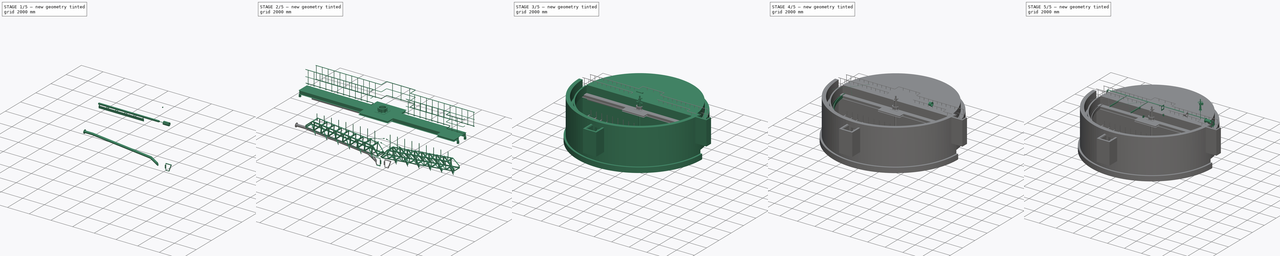
[diagram: build sequence overview — one tinted view per stage of 5, left to right]
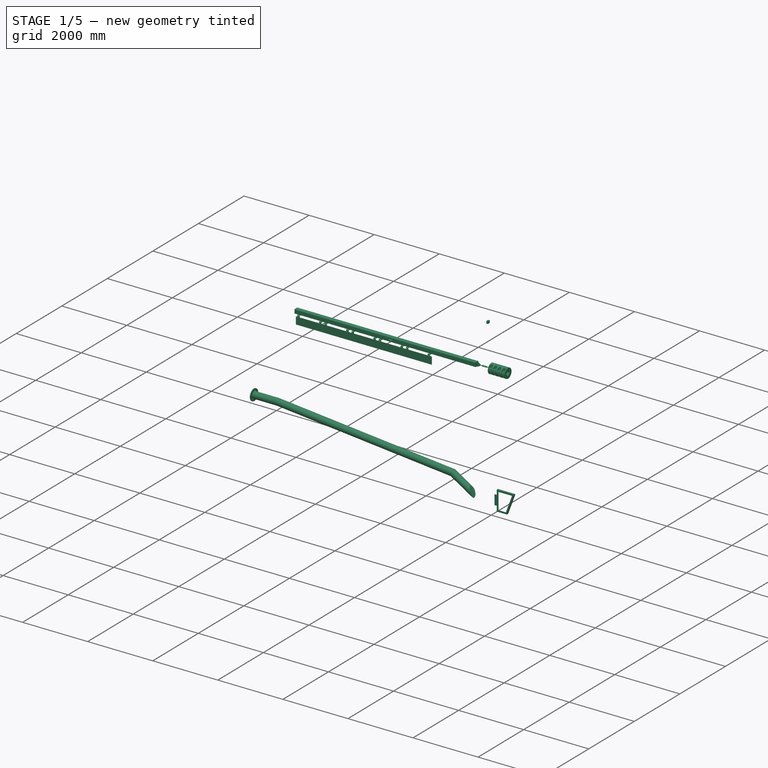
[diagram: stage 1 of 5 — iso view after this stage's code; geometry added in this stage tinted green]
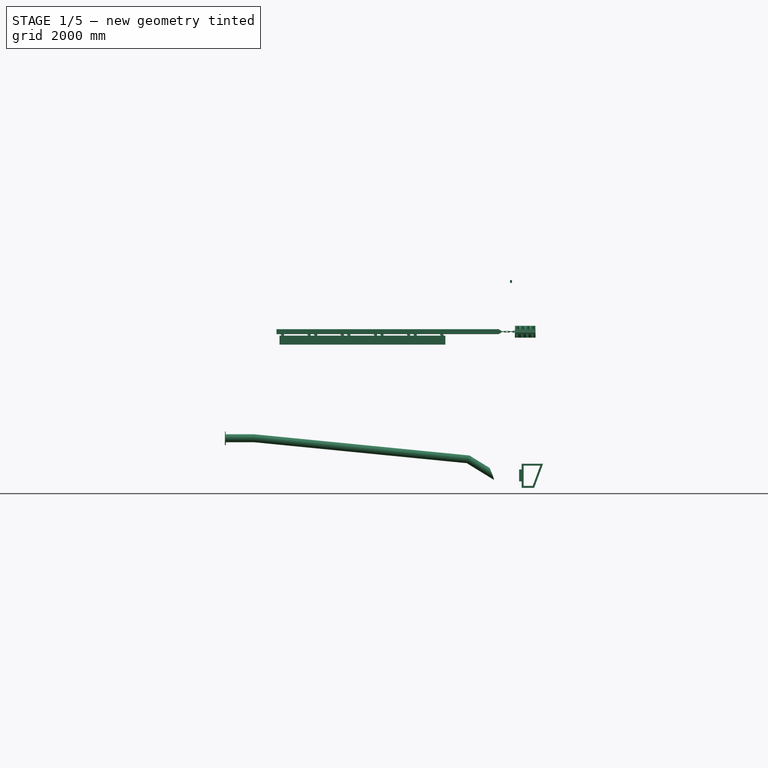
[diagram: stage 1 of 5 — front view after this stage's code; geometry added in this stage tinted green]
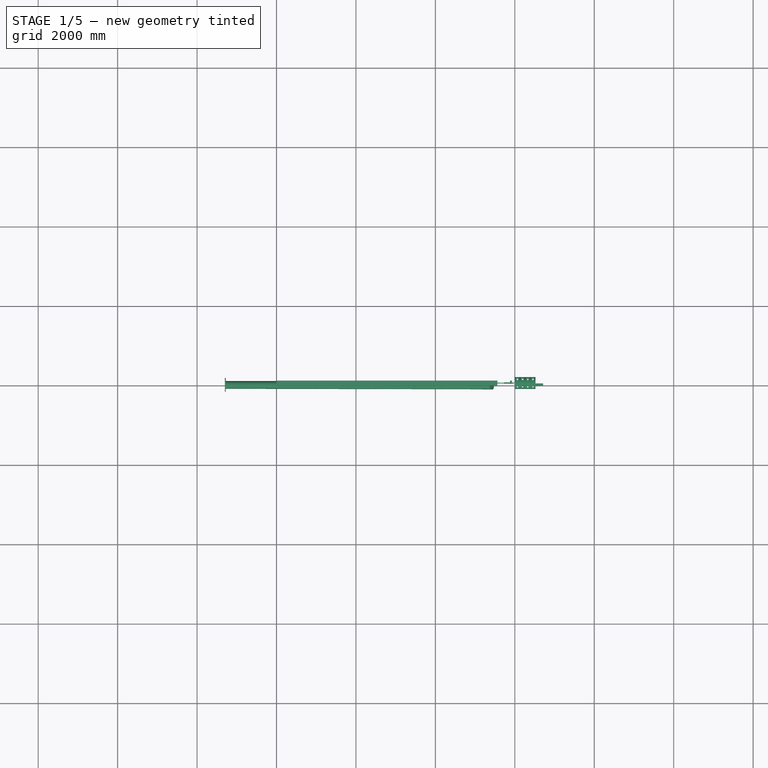
[diagram: stage 1 of 5 — top view after this stage's code; geometry added in this stage tinted green]
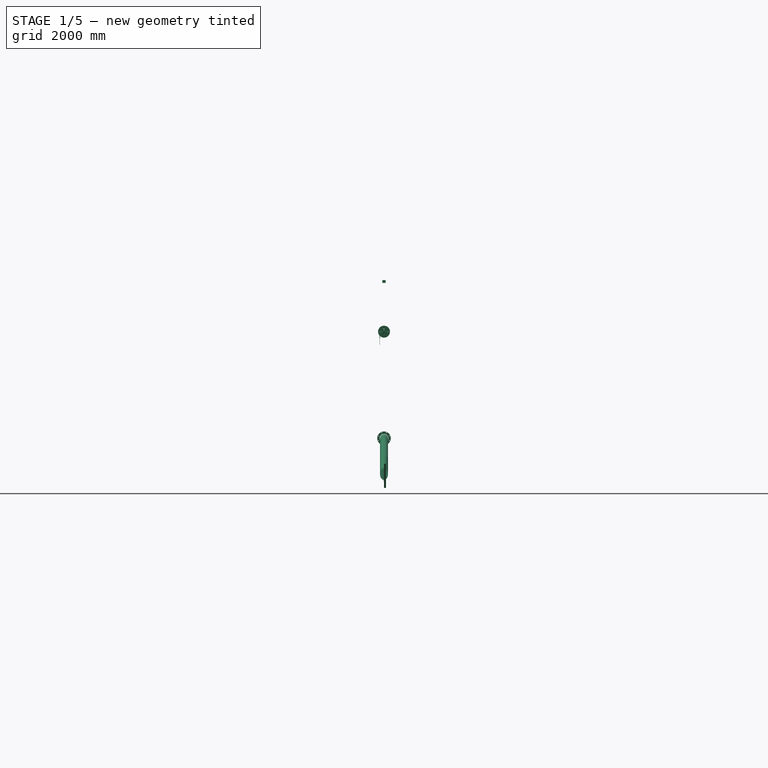
[diagram: stage 1 of 5 — right view after this stage's code; geometry added in this stage tinted green]
FCSTD DOCUMENT  (FreeCAD 0.21R33771 (Git))
Label: suspendAssy
License: All rights reserved
objects: Sketcher::SketchObject×107, Part::FeaturePython×82, Part::Extrusion×78, Part::Cut×38, App::Part×38, Part::Compound×31, Part::Mirroring×29, Part::Feature×27, Part::Revolution×16, Spreadsheet::Sheet×13, Part::MultiFuse×11, Part::Cylinder×9, PartDesign::Revolution×8, PartDesign::Body×8, App::FeaturePython×7, Part::Sweep×4, PartDesign::Pocket×3, PartDesign::PolarPattern×3, PartDesign::Chamfer×3, Part::Chamfer×1, +2 more types
note: 458 computed .brp shape members not serialized (recipe doc carries the construction recipe); baked Part::Feature solids carry a one-line shape summary decoded from their .brp

FEATURE [Sketcher::SketchObject] Sketch062
  FullyConstrained = true
  MapMode = 5
  Placement = pos=(0,0,0) rot=(1,0,0;1.5708rad)
  expr: Constraints[10] = Spreadsheet009.L7 * 2
  expr: Constraints[9] = Spreadsheet009.B7
  sketch-geometry (4):
    g0: LineSegment StartX=90 StartY=23 StartZ=0 EndX=-8.967e-12 EndY=23 EndZ=0
    g1: ArcOfCircle CenterX=0 CenterY=0 CenterZ=0 NormalX=0 NormalY=0 NormalZ=1 AngleXU=0 Radius=23 StartAngle=1.5708 EndAngle=4.71239
    g2: LineSegment StartX=-9.439e-13 StartY=-23 StartZ=0 EndX=90 EndY=-23 EndZ=0
    g3: LineSegment StartX=90 StartY=-23 StartZ=0 EndX=90 EndY=23 EndZ=0
  constraints (11):
    c: Horizontal(g0)
    c: Tangent(g0,g1) = -1.5708
    c: PointOnObject(g1,g-2)
    c: Coincident(g1,g2)
    c: Horizontal(g2)
    c: Coincident(g2,g3)
    c: Coincident(g3,g0)
    c: Vertical(g3)
    c: Coincident(g-1,g1)
    c: DistanceX(g0,g0) = 90
    c: Distance(g3) = 46
FEATURE [PartDesign::Pad] Pad
  Direction = (0,-1,2e-16)
  Length = 40
  Length2 = 10
  Midplane = true
  Placement = pos=(0,0,0) rot=(1,0,0;1.5708rad)
  Profile = -> Sketch062
  ReferenceAxis = -> Sketch062 [N_Axis]
  Type = 0
  expr: Length = Spreadsheet009.D7
FEATURE [Spreadsheet::Sheet] Spreadsheet009
  cells = A2='rodDia dia; B2(dia)=20; A3='length L0; B3(L0)=1140; B4='l; C4='l1; D4='a; E4='b; F4='c; G4='e; H4='f; I4='g; J4='h; K4='i; L4='r; A5='forkEndR; B5=120; D5=40; E5=16; F5=21; G5=24; H5=20; I5=60; J5=10; K5=20; L5=23; A6='turnBackle; B6=150; C6=28; D6=42; E6=23; F6=33; A7='forkEndL; B7=90; D7=40; E7=16; F7=20; G7=24; H7=20; I7=30; L7=23; A8=1; B8=2; C8=3; D8=4; E8=5; F8=6; G8=7; H8=8; I8=9; J8=10; K8=11; L8=12; A9='turnBackle; A10='d; B10='l; C10='l1; D10='a; E10='b; F10='c; A11=10; B11=75; C11=15; D11=24; E11=13; F11=17; A12=12; B12=100; C12=20; D12=30; E12=16; F12=22; A13=16; B13=125; C13=24; D13=36; E13=20; F13=27; A14=20; B14=150; C14=28; D14=42; E14=23; F14=33; A15=22; B15=175; C15=33; D15=48; E15=27; F15=37; A16=24; B16=200; C16=38; D16=54; E16=30; F16=42; A17=30; B17=250; C17=47; D17=66; E17=37; F17=52; A18='forkEnd_L; A19='d; B19='l; C19='a; D19='b; E19='c; F19='e; G19='f; H19='g; I19='r; A20=10; B20=50; C20=20; D20=7; E20=10; F20=12; G20=10; H20=15; I20=12; A21=12; B21=60; C21=25; D21=10; E21=13; F21=16; G21=13; H21=20; I21=15; A22=16; B22=75; C22=30; D22=13; E22=16; F22=20; G22=16; H22=25; I22=19; A23=20; B23=90; C23=40; D23=16; E23=20; F23=24; G23=20; H23=30; I23=23; A24=22; B24=100; C24=45; D24=20; E24=23; F24=28; G24=23; H24=35; I24=27; A25=24; B25=115; C25=50; D25=23; E25=26; F25=32; G25=26; H25=40; I25=30; A26=30; B26=140; C26=65; D26=30; E26=33; F26=40; G26=33; H26=50; I26=38; A27='forkEnd_R; A28='d; B28='l; C28='a; D28='b; E28='c; F28='r; G28='e; H28='f; I28='g; J28='h; K28='i; A29=10; B29=60; C29=20; D29=7; E29=11; F29=12; G29=12; H29=10; I29=30; J29=5; K29=10; A30=12; B30=80; +64 more cells
FEATURE [Sketcher::SketchObject] Sketch063
  FullyConstrained = true
  MapMode = 5
  Placement = pos=(0,-20,8.8e-15) rot=(1,0,0;1.5708rad)
  Support = -> [Pad]
  expr: Constraints[1] = Spreadsheet009.F7 / 2
  sketch-geometry (1):
    g0: Circle CenterX=0 CenterY=0 CenterZ=0 NormalX=0 NormalY=0 NormalZ=1 AngleXU=0 Radius=10
  constraints (2):
    c: Coincident(g0,g-1)
    c: Radius(g0) = 10
FEATURE [Part::Extrusion] Extrude048  label="Extrude053"
  Base = -> Sketch063
  Dir = (0,-1,4e-16)
  DirMode = 2
  FaceMakerClass = Part::FaceMakerBullseye
  LengthFwd = 65
  LengthRev = 0
  Reversed = true
  Solid = true
  Symmetric = false
FEATURE [Sketcher::SketchObject] Sketch064
  FullyConstrained = true
  Placement = pos=(0,0,0) rot=(1,0,0;1.5708rad)
  expr: Constraints[11] = Spreadsheet009.I5
  expr: Constraints[1] = Spreadsheet009.F5 / 2
  expr: Constraints[3] = Spreadsheet009.L5
  sketch-geometry (5):
    g0: Circle CenterX=0 CenterY=0 CenterZ=0 NormalX=0 NormalY=0 NormalZ=1 AngleXU=0 Radius=10.5
    g1: ArcOfCircle CenterX=0 CenterY=0 CenterZ=0 NormalX=0 NormalY=0 NormalZ=1 AngleXU=0 Radius=23 StartAngle=4.71239 EndAngle=7.85398
    g2: LineSegment StartX=-1.34e-14 StartY=23 StartZ=0 EndX=-60 EndY=23 EndZ=0
    g3: LineSegment StartX=-60 StartY=23 StartZ=0 EndX=-60 EndY=-23 EndZ=0
    g4: LineSegment StartX=-60 StartY=-23 StartZ=0 EndX=-7.1e-15 EndY=-23 EndZ=0
  constraints (12):
    c: Coincident(g0,g-1)
    c: Radius(g0) = 10.5
    c: Coincident(g1,g0)
    c: Radius(g1) = 23
    c: Horizontal(g2)
    c: Coincident(g2,g3)
    c: Vertical(g3)
    c: Coincident(g3,g4)
    c: Horizontal(g4)
    c: Tangent(g1,g2) = -1.5708
    c: Tangent(g1,g4) = -1.5708
    c: Distance(g2) = 60
FEATURE [Part::Extrusion] Extrude049  label="Extrude054"
  Base = -> Sketch064
  Dir = (0,-1,2e-16)
  DirMode = 2
  FaceMakerClass = Part::FaceMakerBullseye
  LengthFwd = 40
  LengthRev = 0
  Solid = true
  Symmetric = true
  expr: LengthFwd = Spreadsheet009.D5
FEATURE [Sketcher::SketchObject] Sketch065
  ExternalGeometry = -> [Extrude049]
  FullyConstrained = true
  MapMode = 5
  Placement = pos=(0,5.1e-15,23) rot=(0,0,1;0rad)
  Support = -> [Extrude049]
  expr: Constraints[10] = Spreadsheet009.E5
  expr: Constraints[24] = Spreadsheet009.G5
  expr: Constraints[25] = Spreadsheet009.K5
  expr: Constraints[26] = Spreadsheet009.H5
  expr: Constraints[31] = Spreadsheet009.E5 / 2
  expr: Constraints[32] = Spreadsheet009.G5 / 2
  expr: Constraints[9] = Spreadsheet009.L5
  sketch-geometry (12):
    g0: LineSegment StartX=23 StartY=8 StartZ=0 EndX=-20 EndY=8 EndZ=0
    g1: LineSegment StartX=-21 StartY=12 StartZ=0 EndX=-39 EndY=12 EndZ=0
    g2: LineSegment StartX=-40 StartY=11 StartZ=0 EndX=-40 EndY=-11 EndZ=0
    g3: LineSegment StartX=-39 StartY=-12 StartZ=0 EndX=-21 EndY=-12 EndZ=0
    g4: LineSegment StartX=-20 StartY=-11 StartZ=0 EndX=-20 EndY=-8 EndZ=0
    g5: LineSegment StartX=-20 StartY=-8 StartZ=0 EndX=23 EndY=-8 EndZ=0
    g6: LineSegment StartX=23 StartY=-8 StartZ=0 EndX=23 EndY=8 EndZ=0
    g7: ArcOfCircle CenterX=-21 CenterY=11 CenterZ=0 NormalX=0 NormalY=0 NormalZ=1 AngleXU=0 Radius=1 StartAngle=6.28317 EndAngle=7.85398
    g8: ArcOfCircle CenterX=-21 CenterY=-11 CenterZ=0 NormalX=0 NormalY=0 NormalZ=1 AngleXU=0 Radius=1 StartAngle=4.71239 EndAngle=6.28319
    g9: ArcOfCircle CenterX=-39 CenterY=11 CenterZ=0 NormalX=0 NormalY=0 NormalZ=1 AngleXU=0 Radius=1 StartAngle=1.5708 EndAngle=3.14159
    g10: ArcOfCircle CenterX=-39 CenterY=-11 CenterZ=0 NormalX=0 NormalY=0 NormalZ=1 AngleXU=0 Radius=1 StartAngle=3.14159 EndAngle=4.71239
    g11: LineSegment StartX=-20 StartY=8 StartZ=0 EndX=-20 EndY=11 EndZ=0
  constraints (33):
    c: Horizontal(g0)
    c: Horizontal(g1)
    c: Vertical(g2)
    c: Horizontal(g3)
    c: Coincident(g4,g5)
    c: Horizontal(g5)
    c: Coincident(g5,g6)
    c: Coincident(g6,g0)
    c: Vertical(g6)
    c: DistanceX(g-1,g5) = 23
    c: Distance(g6) = 16
    c: Vertical(g4)
    c: Vertical(g4,g0)
    c: Tangent(g1,g7) = -1.5708
    c: Tangent(g4,g8) = -1.5708
    c: Tangent(g3,g8) = -1.5708
    c: Tangent(g2,g9) = -1.5708
    c: Tangent(g1,g9) = -1.5708
    c: Tangent(g3,g10) = -1.5708
    c: Tangent(g2,g10) = -1.5708
    c: Radius(g7) = 1
    c: Radius(g8) = 1
    c: Equal(g10,g9)
    c: Radius(g10) = 1
    c: DistanceY(g3,g1) = 24
    c: DistanceX(g-3,g2) = 20
    c: DistanceX(g4,g-1) = 20
    c: Equal(g3,g1)
    c: Coincident(g11,g0)
    c: Coincident(g11,g7)
    c: Vertical(g11)
    c: DistanceY(g-1,g0) = 8
    c: DistanceY(g-1,g1) = 12
FEATURE [Part::Extrusion] Extrude050  label="Extrude055"
  Base = -> Sketch065
  Dir = (0,2e-16,1)
  DirMode = 2
  FaceMakerClass = Part::FaceMakerBullseye
  LengthFwd = 80
  LengthRev = 0
  Reversed = true
  Solid = true
  Symmetric = false
FEATURE [Part::Cut] Cut022
  Base = -> Extrude049
  Tool = -> Extrude050
FEATURE [Part::Cylinder] Cylinder008  label="円柱004"
  Angle = 360
  AttacherType = Attacher::AttachEngine3D
  FirstAngle = 0
  Height = 120
  Placement = pos=(-60,0,0) rot=(0,-1,0;1.5708rad)
  Radius = 10
  SecondAngle = 0
  expr: .Placement.Base.x = -Spreadsheet009.I5
  expr: Height = Spreadsheet009.B5
  expr: Radius = Spreadsheet009.dia / 2
FEATURE [Part::MultiFuse] Fusion002  label="forkEndR"
  Shapes = -> [Cut022,Cylinder008]
FEATURE [Sketcher::SketchObject] Sketch066
  FullyConstrained = true
  Placement = pos=(0,0,0) rot=(1,0,0;1.5708rad)
  expr: Constraints[10] = Spreadsheet009.C6
  expr: Constraints[11] = Spreadsheet009.B6
  expr: Constraints[12] = Spreadsheet009.D6 / 2
  expr: Constraints[13] = Spreadsheet009.F6 / 2
  expr: Constraints[14] = Spreadsheet009.B6 / 2
  expr: Constraints[17] = Spreadsheet009.C6
  sketch-geometry (6):
    g0: LineSegment StartX=-75 StartY=0 StartZ=0 EndX=-75 EndY=16.5 EndZ=0
    g1: LineSegment StartX=-75 StartY=16.5 StartZ=0 EndX=-47 EndY=21 EndZ=0
    g2: LineSegment StartX=-47 StartY=21 StartZ=0 EndX=47 EndY=21 EndZ=0
    g3: LineSegment StartX=47 StartY=21 StartZ=0 EndX=75 EndY=16.5 EndZ=0
    g4: LineSegment StartX=75 StartY=16.5 StartZ=0 EndX=75 EndY=0 EndZ=0
    g5: LineSegment StartX=75 StartY=0 StartZ=0 EndX=-75 EndY=0 EndZ=0
  constraints (18):
    c: PointOnObject(g0,g-1)
    c: Vertical(g0)
    c: Coincident(g0,g1)
    c: Coincident(g1,g2)
    c: Horizontal(g2)
    c: Coincident(g2,g3)
    c: Coincident(g3,g4)
    c: PointOnObject(g4,g-1)
    c: Vertical(g4)
    c: Coincident(g4,g5)
    c: DistanceX(g2,g3) = 28
    c: DistanceX(g0,g3) = 150
    c: Distance(g1,g5) = 21
    c: Distance(g4) = 16.5
    c: DistanceX(g-1,g4) = 75
    c: Horizontal(g0,g3)
    c: Coincident(g5,g0)
    c: DistanceX(g0,g1) = 28
FEATURE [Part::Revolution] Revolve012
  Angle = 360
  Axis = (-1,0,0)
  AxisLink = -> Sketch066 [Edge6]
  Base = (-75,0,0)
  FaceMakerClass = Part::FaceMakerBullseye
  Solid = true
  Source = -> Sketch066
  Symmetric = false
FEATURE [Sketcher::SketchObject] Sketch067
  FullyConstrained = false
  Placement = pos=(0,0,0) rot=(0.57735,0.57735,0.57735;2.0944rad)
  expr: Constraints[16] = Spreadsheet009.F6
  expr: Constraints[17] = Spreadsheet009.F6 / 2
  sketch-geometry (8):
    g0: LineSegment StartX=-16.5 StartY=39.685 StartZ=0 EndX=-31.5 EndY=39.685 EndZ=0
    g1: LineSegment StartX=-31.5 StartY=39.685 StartZ=0 EndX=-31.5 EndY=-39.3666 EndZ=0
    g2: LineSegment StartX=-31.5 StartY=-39.3666 StartZ=0 EndX=-16.5 EndY=-39.3666 EndZ=0
    g3: LineSegment StartX=-16.5 StartY=-39.3666 StartZ=0 EndX=-16.5 EndY=39.685 EndZ=0
    g4: LineSegment StartX=16.5 StartY=39.685 StartZ=0 EndX=31.5 EndY=39.685 EndZ=0
    g5: LineSegment StartX=31.5 StartY=39.685 StartZ=0 EndX=31.5 EndY=-40.315 EndZ=0
    g6: LineSegment StartX=31.5 StartY=-40.315 StartZ=0 EndX=16.5 EndY=-40.315 EndZ=0
    g7: LineSegment StartX=16.5 StartY=-40.315 StartZ=0 EndX=16.5 EndY=39.685 EndZ=0
  constraints (22):
    c: Coincident(g0,g1)
    c: Coincident(g1,g2)
    c: Coincident(g2,g3)
    c: Coincident(g3,g0)
    c: Horizontal(g0)
    c: Horizontal(g2)
    c: Vertical(g1)
    c: Vertical(g3)
    c: Coincident(g4,g5)
    c: Coincident(g5,g6)
    c: Coincident(g6,g7)
    c: Coincident(g7,g4)
    c: Horizontal(g4)
    c: Horizontal(g6)
    c: Vertical(g5)
    c: Vertical(g7)
    c: DistanceX(g0,g4) = 33
    c: Distance(g-1,g7) = 16.5
    c: Distance(g5) = 80
    c: Distance(g4) = 15
    c: Distance(g0) = 15
    c: Horizontal(g0,g4)
FEATURE [Part::Extrusion] Extrude051  label="Extrude056"
  Base = -> Sketch067
  Dir = (1,0,0)
  DirMode = 2
  FaceMakerClass = Part::FaceMakerBullseye
  LengthFwd = 300
  LengthRev = 0
  Solid = true
  Symmetric = true
FEATURE [Part::Cut] Cut004
  Base = -> Revolve012
  Tool = -> Extrude051
FEATURE [Sketcher::SketchObject] Sketch068
  FullyConstrained = true
  Placement = pos=(0,0,0) rot=(1,0,0;1.5708rad)
  expr: Constraints[17] = Spreadsheet009.E6
  expr: Constraints[18] = Spreadsheet009.B6 - 2 * Spreadsheet009.C6
  expr: Constraints[19] = (Spreadsheet009.B6 - 2 * Spreadsheet009.C6) / 2
  expr: Constraints[20] = Spreadsheet009.E6 / 2
  sketch-geometry (9):
    g0: LineSegment StartX=47 StartY=6.5 StartZ=0 EndX=47 EndY=-6.5 EndZ=0
    g1: LineSegment StartX=42 StartY=-11.5 StartZ=0 EndX=-42 EndY=-11.5 EndZ=0
    g2: LineSegment StartX=-47 StartY=-6.5 StartZ=0 EndX=-47 EndY=6.5 EndZ=0
    g3: LineSegment StartX=-42 StartY=11.5 StartZ=0 EndX=42 EndY=11.5 EndZ=0
    g4: GeomPoint X=0 Y=0 Z=0
    g5: ArcOfCircle CenterX=-42 CenterY=6.5 CenterZ=0 NormalX=0 NormalY=0 NormalZ=1 AngleXU=0 Radius=5 StartAngle=1.5708 EndAngle=3.14159
    g6: ArcOfCircle CenterX=-42 CenterY=-6.5 CenterZ=0 NormalX=0 NormalY=0 NormalZ=1 AngleXU=0 Radius=5 StartAngle=3.14159 EndAngle=4.71239
    g7: ArcOfCircle CenterX=42 CenterY=-6.5 CenterZ=0 NormalX=0 NormalY=0 NormalZ=1 AngleXU=0 Radius=5 StartAngle=4.71239 EndAngle=6.28319
    g8: ArcOfCircle CenterX=42 CenterY=6.5 CenterZ=0 NormalX=0 NormalY=0 NormalZ=1 AngleXU=0 Radius=5 StartAngle=0 EndAngle=1.5708
  constraints (21):
    c: Horizontal(g1)
    c: Horizontal(g3)
    c: Vertical(g0)
    c: Vertical(g2)
    c: Coincident(g4,g-1)
    c: Tangent(g3,g5) = 1.5708
    c: Tangent(g2,g5) = 1.5708
    c: Tangent(g1,g6) = 1.5708
    c: Tangent(g2,g6) = 1.5708
    c: Tangent(g1,g7) = 1.5708
    c: Tangent(g0,g7) = 1.5708
    c: Tangent(g0,g8) = 1.5708
    c: Tangent(g3,g8) = 1.5708
    c: Radius(g8) = 5
    c: Equal(g8,g7)
    c: Equal(g7,g6)
    c: Equal(g6,g5)
    c: DistanceY(g1,g3) = 23
    c: DistanceX(g2,g0) = 94
    c: Distance(g4,g2) = 47
    c: Distance(g4,g1) = 11.5
FEATURE [Part::Extrusion] Extrude052  label="Extrude057"
  Base = -> Sketch068
  Dir = (0,-1,2e-16)
  DirMode = 2
  FaceMakerClass = Part::FaceMakerBullseye
  LengthFwd = 60
  LengthRev = 0
  Solid = true
  Symmetric = true
FEATURE [Part::Cut] Cut005
  Base = -> Cut004
  Tool = -> Extrude052
FEATURE [Sketcher::SketchObject] Sketch069
  FullyConstrained = true
  Placement = pos=(0,0,0) rot=(0.57735,0.57735,0.57735;2.0944rad)
  expr: Constraints[1] = Spreadsheet009.dia / 2
  sketch-geometry (1):
    g0: Circle CenterX=0 CenterY=0 CenterZ=0 NormalX=0 NormalY=0 NormalZ=1 AngleXU=0 Radius=10
  constraints (2):
    c: Coincident(g0,g-1)
    c: Radius(g0) = 10
FEATURE [Part::Extrusion] Extrude053  label="Extrude058"
  Base = -> Sketch069
  Dir = (1,0,0)
  DirMode = 2
  FaceMakerClass = Part::FaceMakerBullseye
  LengthFwd = 300
  LengthRev = 0
  Solid = true
  Symmetric = true
FEATURE [Part::Cut] Cut006  label="turnBackle"
  Base = -> Cut005
  Placement = pos=(-200,0,0) rot=(0,0,1;0rad)
  Tool = -> Extrude053
  expr: .Placement.Base.x = -(Spreadsheet009.B5 + Spreadsheet009.I5 + Spreadsheet009.dia)
FEATURE [Part::Cylinder] Cylinder001  label="rod006"
  Angle = 360
  AttacherType = Attacher::AttachEngine3D
  FirstAngle = 0
  Height = 866
  Placement = pos=(-220,0,-8.8e-14) rot=(0,-1,0;1.5708rad)
  Radius = 10
  SecondAngle = 0
  expr: .Placement.Base.x = -(Spreadsheet009.B5 + Spreadsheet009.I5 + Spreadsheet009.dia * 2)
  expr: Height = Spreadsheet009.L0 - (Spreadsheet009.B5 + Spreadsheet009.I5 + Spreadsheet009.B6 - 4 * Spreadsheet009.dia - 2 * Spreadsheet009.C6) - Spreadsheet009.B7 + Spreadsheet009.I7 - Spreadsheet009.dia
  expr: Radius = Spreadsheet009.dia / 2
FEATURE [Sketcher::SketchObject] Sketch017
  FullyConstrained = true
  MapMode = 5
  Placement = pos=(90,0,0) rot=(0.57735,0.57735,0.57735;2.0944rad)
  expr: Constraints[1] = Spreadsheet009.dia
  sketch-geometry (1):
    g0: Circle CenterX=0 CenterY=0 CenterZ=0 NormalX=0 NormalY=0 NormalZ=1 AngleXU=0 Radius=10
  constraints (2):
    c: Coincident(g0,g-1)
    c: Diameter(g0) = 20
FEATURE [Part::Extrusion] Extrude054  label="Extrude059"
  Base = -> Sketch017
  Dir = (1,0,0)
  DirMode = 2
  FaceMakerClass = Part::FaceMakerBullseye
  LengthFwd = 30
  LengthRev = 0
  Solid = true
  Symmetric = false
  expr: LengthFwd = Spreadsheet009.I7
FEATURE [Sketcher::SketchObject] Sketch070
  ExternalGeometry = -> [Pad]
  FullyConstrained = true
  expr: Constraints[17] = Spreadsheet009.G7
  expr: Constraints[18] = Spreadsheet009.G7 / 2
  expr: Constraints[27] = Spreadsheet009.E7 / 2
  expr: Constraints[31] = Spreadsheet009.I7
  expr: Constraints[32] = Spreadsheet009.L7
  expr: Constraints[6] = Spreadsheet009.E7
  expr: Constraints[7] = Spreadsheet009.H7
  sketch-geometry (12):
    g0: LineSegment StartX=-23 StartY=8 StartZ=0 EndX=20 EndY=8 EndZ=0
    g1: LineSegment StartX=22 StartY=12 StartZ=0 EndX=58 EndY=12 EndZ=0
    g2: LineSegment StartX=60 StartY=10 StartZ=0 EndX=60 EndY=-10 EndZ=0
    g3: LineSegment StartX=58 StartY=-12 StartZ=0 EndX=22 EndY=-12 EndZ=0
    g4: LineSegment StartX=20 StartY=-10 StartZ=0 EndX=20 EndY=-8 EndZ=0
    g5: LineSegment StartX=20 StartY=-8 StartZ=0 EndX=-23 EndY=-8 EndZ=0
    g6: LineSegment StartX=-23 StartY=-8 StartZ=0 EndX=-23 EndY=8 EndZ=0
    g7: ArcOfCircle CenterX=22 CenterY=10 CenterZ=0 NormalX=0 NormalY=0 NormalZ=1 AngleXU=0 Radius=2 StartAngle=1.5708 EndAngle=3.14159
    g8: ArcOfCircle CenterX=22 CenterY=-10 CenterZ=0 NormalX=0 NormalY=0 NormalZ=1 AngleXU=0 Radius=2 StartAngle=3.14159 EndAngle=4.71239
    g9: ArcOfCircle CenterX=58 CenterY=-10 CenterZ=0 NormalX=0 NormalY=0 NormalZ=1 AngleXU=0 Radius=2 StartAngle=4.71239 EndAngle=6.28319
    g10: ArcOfCircle CenterX=58 CenterY=10 CenterZ=0 NormalX=0 NormalY=0 NormalZ=1 AngleXU=0 Radius=2 StartAngle=5e-16 EndAngle=1.5708
    g11: LineSegment StartX=20 StartY=8 StartZ=0 EndX=20 EndY=10 EndZ=0
  constraints (33):
    c: Horizontal(g0)
    c: Coincident(g4,g5)
    c: Horizontal(g5)
    c: Coincident(g5,g6)
    c: Coincident(g6,g0)
    c: Vertical(g6)
    c: DistanceY(g6,g6) = 16
    c: DistanceX(g-1,g0) = 20
    c: Horizontal(g1)
    c: Horizontal(g3)
    c: Coincident(g11,g0)
    c: Vertical(g11)
    c: Vertical(g2)
    c: Tangent(g9,g2) = 1.5708
    c: Tangent(g1,g10) = 1.5708
    c: Tangent(g10,g2) = 1.5708
    c: Tangent(g1,g7) = 1.5708
    c: DistanceY(g3,g1) = 24
    c: DistanceY(g-1,g1) = 12
    c: Radius(g10) = 2
    c: Equal(g10,g9)
    c: Equal(g9,g7)
    c: Radius(g8) = 2
    c: Vertical(g4)
    c: Vertical(g4,g0)
    c: Tangent(g8,g4) = 1.5708
    c: Vertical(g8,g8)
    c: DistanceY(g-1,g0) = 8
    c: Tangent(g9,g3) = 1.5708
    c: Tangent(g7,g11) = 1.5708
    c: Coincident(g8,g3)
    c: DistanceX(g2,g-3) = 30
    c: DistanceX(g0,g-1) = 23
FEATURE [Part::Extrusion] Extrude055  label="Extrude060"
  Base = -> Sketch070
  Dir = (0,0,1)
  DirMode = 2
  FaceMakerClass = Part::FaceMakerBullseye
  LengthFwd = 150
  LengthRev = 0
  Solid = true
  Symmetric = true
FEATURE [Part::Cut] Cut023
  Base = -> Pad
  Tool = -> Extrude055
FEATURE [Part::Cut] Cut007
  Base = -> Cut023
  Tool = -> Extrude054
FEATURE [Part::Cut] Cut008  label="forkEndL"
  Base = -> Cut007
  Placement = pos=(-1140,0,0) rot=(0,0,1;0rad)
  Tool = -> Extrude048
  expr: .Placement.Base.x = -Spreadsheet009.L0
FEATURE [Part::FeaturePython] SquarePipe  # WARN: FeaturePython — macro-defined, semantics opaque (R4)
  A = 125
  B = 125
  L = 5550
  Placement = pos=(-445.59,0,5.5e-14) rot=(0,-1,0;1.5708rad)
  Solid = true
  g0 = 7.85
  mass = 101.757
  size = 39
  standard = SS
  t = 1
FEATURE [Sketcher::SketchObject] Sketch071
  ExternalGeometry = -> [SquarePipe]
  FullyConstrained = true
  MapMode = 5
  Placement = pos=(-5995.59,0,1.2873e-12) rot=(0,-1,0;1.5708rad)
  Support = -> [SquarePipe]
  sketch-geometry (4):
    g0: LineSegment StartX=-62.5 StartY=-62.5 StartZ=0 EndX=62.5 EndY=-62.5 EndZ=0
    g1: LineSegment StartX=62.5 StartY=-62.5 StartZ=0 EndX=62.5 EndY=62.5 EndZ=0
    g2: LineSegment StartX=62.5 StartY=62.5 StartZ=0 EndX=-62.5 EndY=62.5 EndZ=0
    g3: LineSegment StartX=-62.5 StartY=62.5 StartZ=0 EndX=-62.5 EndY=-62.5 EndZ=0
  constraints (11):
    c: Coincident(g0,g1)
    c: Coincident(g1,g2)
    c: Coincident(g2,g3)
    c: Coincident(g3,g0)
    c: Horizontal(g0)
    c: Horizontal(g2)
    c: Vertical(g3)
    c: DistanceX(g2,g2) = 125
    c: Equal(g1,g0)
    c: PointOnObject(g-4,g2)
    c: Tangent(g-3,g1) = -1.5708
FEATURE [Part::Extrusion] Extrude056  label="Extrude064"
  Base = -> Sketch071
  Dir = (-1,1e-16,-2e-16)
  DirMode = 2
  FaceMakerClass = Part::FaceMakerBullseye
  LengthFwd = 6
  LengthRev = 0
  Solid = true
  Symmetric = false
FEATURE [Spreadsheet::Sheet] Spreadsheet010
  cells = A1='tankDia   D0; B1(D0)=15500; A2='L; B2(L0)=6050; A3='bradeWidth W0; B3(W0)==D0 / 4 + 300; A4='brade      n0; B4(n0)=5; A5='brade     w1; B5(w1)==W0 / 5
FEATURE [Part::Feature] Part__Feature002  label="CNROK75-U_b"
  shape: bbox 47.01 x 65.51 x 70.01 mm, 58 faces (baked)
FEATURE [Part::Feature] Part__Feature003  label="CNROK75-U_w"
  shape: bbox 41.3 x 78.6 x 78.6 mm, 86 faces (baked)
FEATURE [App::Part] CNROK75_U  label="CNROK75-U"
  Group = -> [Part__Feature002,Part__Feature003]
  Origin = -> Origin003
  Placement = pos=(-5994.61,-1.303e-13,615.79) rot=(1,0,0;1.5708rad)
FEATURE [App::FeaturePython] axisCoincident_001_mirror001  label="axisCoincident_001__gusset001"  # a2plus constraint (typed FeaturePython)
  Object1 = Compound001
  Object2 = Compound_001
  SubElement1 = Edge54
  SubElement2 = Edge93
  Suppressed = false
  Type = axial
  directionConstraint = 0
  lockRotation = false
FEATURE [Part::Feature] Part__Feature004  label="HNS3L_1"
  shape: bbox 64 x 7.5 x 21.75 mm, 15 faces (baked)
FEATURE [Part::Feature] Part__Feature005  label="HNS3L_2"
  shape: bbox 64 x 7.5 x 21.75 mm, 12 faces (baked)
FEATURE [App::Part] HNS3L
  Group = -> [Part__Feature004,Part__Feature005]
  Origin = -> Origin035
  Placement = pos=(-367.5,-8,115) rot=(1,0,0;3.14159rad)
  expr: .Placement.Base.x = -Spreadsheet010.w1 / 2 + 50
FEATURE [Sketcher::SketchObject] Sketch075
  FullyConstrained = true
  Placement = pos=(0,0,0) rot=(1,0,0;1.5708rad)
  expr: Constraints[10] = Spreadsheet010.w1
  sketch-geometry (5):
    g0: LineSegment StartX=-417.5 StartY=-107.5 StartZ=0 EndX=-417.5 EndY=107.5 EndZ=0
    g1: LineSegment StartX=-417.5 StartY=107.5 StartZ=0 EndX=417.5 EndY=107.5 EndZ=0
    g2: LineSegment StartX=417.5 StartY=107.5 StartZ=0 EndX=417.5 EndY=-107.5 EndZ=0
    g3: LineSegment StartX=417.5 StartY=-107.5 StartZ=0 EndX=-417.5 EndY=-107.5 EndZ=0
    g4: GeomPoint X=0 Y=0 Z=0
  constraints (12):
    c: Coincident(g0,g1)
    c: Coincident(g1,g2)
    c: Coincident(g2,g3)
    c: Coincident(g3,g0)
    c: Horizontal(g1)
    c: Horizontal(g3)
    c: Vertical(g0)
    c: Vertical(g2)
    c: Symmetric(g1,g0,g4)
    c: Coincident(g4,g-1)
    c: Distance(g1) = 835
    c: DistanceY(g2,g2) = 215
FEATURE [Part::Extrusion] Extrude060  label="Extrude070"
  Base = -> Sketch075
  Dir = (0,-1,2e-16)
  DirMode = 2
  FaceMakerClass = Part::FaceMakerBullseye
  LengthFwd = 5
  LengthRev = 0
  Placement = pos=(0,-4.5,-12) rot=(0,0,1;0rad)
  Solid = true
  Symmetric = false
FEATURE [Part::FeaturePython] Clone002  label="HNS3L001"  # Draft clone (typed FeaturePython)
  AttacherType = Attacher::AttachEngine3D
  Fuse = false
  Objects = -> [HNS3L]
  Placement = pos=(303.5,-8,115) rot=(1,0,0;3.14159rad)
  Scale = (1,1,1)
  expr: .Placement.Base.x = Spreadsheet010.w1 / 2 - 114
FEATURE [Sketcher::SketchObject] Sketch076
  FullyConstrained = true
  Placement = pos=(0,0,0) rot=(1,0,0;1.5708rad)
  expr: Constraints[11] = Spreadsheet010.w1
  sketch-geometry (5):
    g0: LineSegment StartX=-417.5 StartY=-37.5 StartZ=0 EndX=-417.5 EndY=37.5 EndZ=0
    g1: LineSegment StartX=-417.5 StartY=37.5 StartZ=0 EndX=417.5 EndY=37.5 EndZ=0
    g2: LineSegment StartX=417.5 StartY=37.5 StartZ=0 EndX=417.5 EndY=-37.5 EndZ=0
    g3: LineSegment StartX=417.5 StartY=-37.5 StartZ=0 EndX=-417.5 EndY=-37.5 EndZ=0
    g4: GeomPoint X=0 Y=0 Z=0
  constraints (12):
    c: Coincident(g0,g1)
    c: Coincident(g1,g2)
    c: Coincident(g2,g3)
    c: Coincident(g3,g0)
    c: Horizontal(g1)
    c: Horizontal(g3)
    c: Vertical(g0)
    c: Vertical(g2)
    c: Symmetric(g1,g0,g4)
    c: Coincident(g4,g-1)
    c: DistanceY(g2,g2) = 75
    c: DistanceX(g3,g3) = 835
FEATURE [Part::Extrusion] Extrude061  label="Extrude071"
  Base = -> Sketch076
  Dir = (0,-1,2e-16)
  DirMode = 2
  FaceMakerClass = Part::FaceMakerBullseye
  LengthFwd = 3
  LengthRev = 0
  Placement = pos=(0,-9.5,70) rot=(0,0,1;0rad)
  Solid = true
  Symmetric = false
FEATURE [Sketcher::SketchObject] Sketch077
  ExternalGeometry = -> [Extrude060,Extrude061]
  FullyConstrained = true
  MapMode = 5
  Placement = pos=(-417.5,-4.5,-12) rot=(0.57735,-0.57735,-0.57735;2.0944rad)
  Support = -> [Extrude060]
  sketch-geometry (4):
    g0: LineSegment StartX=2.4e-14 StartY=107.5 StartZ=0 EndX=-3 EndY=107.5 EndZ=0
    g1: LineSegment StartX=-3 StartY=107.5 StartZ=0 EndX=-3 EndY=44.5 EndZ=0
    g2: LineSegment StartX=-3 StartY=44.5 StartZ=0 EndX=2.4e-14 EndY=44.5 EndZ=0
    g3: LineSegment StartX=2.4e-14 StartY=44.5 StartZ=0 EndX=2.4e-14 EndY=107.5 EndZ=0
  constraints (11):
    c: Coincident(g0,g1)
    c: Coincident(g1,g2)
    c: Coincident(g2,g3)
    c: Coincident(g3,g0)
    c: Horizontal(g0)
    c: Horizontal(g2)
    c: Vertical(g1)
    c: Vertical(g3)
    c: DistanceX(g0,g0) = 3
    c: Coincident(g0,g-3)
    c: Horizontal(g1,g-4)
FEATURE [Part::Extrusion] Extrude062  label="Extrude072"
  Base = -> Sketch077
  Dir = (-1,0,0)
  DirMode = 2
  FaceMakerClass = Part::FaceMakerBullseye
  LengthFwd = 835
  LengthRev = 0
  Reversed = true
  Solid = true
  Symmetric = false
  expr: LengthFwd = Spreadsheet010.w1
FEATURE [Sketcher::SketchObject] Sketch078
  FullyConstrained = false
  MapMode = 5
  Placement = pos=(-417.5,-4.5,-12) rot=(0.57735,-0.57735,-0.57735;2.0944rad)
  Support = -> [Extrude060]
  sketch-geometry (8):
    g0: LineSegment StartX=-104.645 StartY=156.908 StartZ=0 EndX=-4.64507 EndY=156.908 EndZ=0
    g1: LineSegment StartX=3.35493 StartY=148.908 StartZ=0 EndX=3.35493 EndY=130.908 EndZ=0
    g2: LineSegment StartX=3.35493 StartY=130.908 StartZ=0 EndX=0.354931 EndY=130.908 EndZ=0
    g3: LineSegment StartX=0.354931 StartY=130.908 StartZ=0 EndX=0.354931 EndY=148.908 EndZ=0
    g4: LineSegment StartX=-4.64507 StartY=153.908 StartZ=0 EndX=-104.645 EndY=153.908 EndZ=0
    g5: LineSegment StartX=-104.645 StartY=153.908 StartZ=0 EndX=-104.645 EndY=156.908 EndZ=0
    g6: ArcOfCircle CenterX=-4.64507 CenterY=148.908 CenterZ=0 NormalX=0 NormalY=0 NormalZ=1 AngleXU=0 Radius=5 StartAngle=3.3e-15 EndAngle=1.5708
    g7: ArcOfCircle CenterX=-4.64507 CenterY=148.908 CenterZ=0 NormalX=0 NormalY=0 NormalZ=1 AngleXU=0 Radius=8 StartAngle=-1.8e-15 EndAngle=1.5708
  constraints (19):
    c: Horizontal(g0)
    c: Vertical(g1)
    c: Coincident(g1,g2)
    c: Horizontal(g2)
    c: Coincident(g2,g3)
    c: Vertical(g3)
    c: Horizontal(g4)
    c: Coincident(g4,g5)
    c: Coincident(g5,g0)
    c: Vertical(g5)
    c: DistanceX(g2,g2) = 3
    c: Tangent(g3,g6) = -1.5708
    c: Tangent(g4,g6) = -1.5708
    c: Tangent(g1,g7) = 1.5708
    c: Tangent(g0,g7) = 1.5708
    c: Coincident(g6,g7)
    c: DistanceX(g4,g4) = 100
    c: DistanceY(g3,g3) = 18
    c: Radius(g6) = 5
FEATURE [Part::Extrusion] Extrude063  label="Extrude073"
  Base = -> Sketch078
  Dir = (-1,0,0)
  DirMode = 2
  FaceMakerClass = Part::FaceMakerBullseye
  LengthFwd = 80
  LengthRev = 0
  Placement = pos=(34,0,0) rot=(0,0,1;0rad)
  Reversed = true
  Solid = true
  Symmetric = false
FEATURE [Part::FeaturePython] Clone009  label="Extrude074"  # Draft clone (typed FeaturePython)
  AttacherType = Attacher::AttachEngine3D
  Fuse = false
  Objects = -> [Extrude063]
  Placement = pos=(705,0,0) rot=(0,0,1;0rad)
  Scale = (1,1,1)
  expr: .Placement.Base.x = Spreadsheet010.w1 - (50 + 46 + 34)
FEATURE [App::Part] Part029  label="brade"
  Group = -> [Sketch075,Extrude060,Clone002,HNS3L,Sketch076,Extrude061,Sketch077,Extrude062,Sketch078,Extrude063,Clone009]
  Origin = -> Origin036
  Placement = pos=(-5437.87,-100,-207.547) rot=(0,0,1;0rad)
FEATURE [Part::FeaturePython] Array008  label="brade001"  # Draft array (typed FeaturePython)
  AlwaysSyncPlacement = false
  Angle = 360
  ArrayType = 0
  Axis = (0,0,1)
  Base = -> Part029
  Center = (0,0,0)
  Count = 5
  ExpandArray = false
  Fuse = false
  IntervalAxis = (0,0,0)
  IntervalX = (835,0,0)
  IntervalY = (0,100,0)
  IntervalZ = (0,0,100)
  NumberCircles = 3
  NumberPolar = 5
  NumberX = 5
  NumberY = 1
  NumberZ = 1
  Placement = pos=(-69.393,8.27229e-06,0) rot=(0,0,1;0rad)
  PlacementList = 5 placements: arithmetic series from (-5437.87,-100,-207.547) step (835,0,0) to (-2097.87,-100,-207.547)
  RadialDistance = 50
  ScaleList = (5) [(1,1,1),(1,1,1),(1,1,1),(1,1,1),(1,1,1)]
  Symmetry = 1
  TangentialDistance = 25
  expr: .IntervalX.x = Spreadsheet010.w1
FEATURE [Part::FeaturePython] ChannelSteel001  # WARN: FeaturePython — macro-defined, semantics opaque (R4)
  B = 75
  H = 150
  L = 1000
  Placement = pos=(176,0,-75) rot=(0,0,1;0rad)
  Solid = false
  g0 = 7.85
  mass = 0
  size = 3
  standard = SS
  t1 = 6.5
  t2 = 10
FEATURE [Sketcher::SketchObject] Sketch079
  FullyConstrained = true
  MapMode = 5
  Placement = pos=(0,0,62.5) rot=(0,0,1;0rad)
  sketch-geometry (6):
    g0: LineSegment StartX=-2985 StartY=62.5 StartZ=0 EndX=-2985 EndY=112.5 EndZ=0
    g1: ArcOfCircle CenterX=-3000 CenterY=112.5 CenterZ=0 NormalX=0 NormalY=0 NormalZ=1 AngleXU=0 Radius=15 StartAngle=0 EndAngle=1.98689
    g2: LineSegment StartX=-3006.06 StartY=126.22 StartZ=0 EndX=-3105 EndY=82.5 EndZ=0
    g3: LineSegment StartX=-3105 StartY=82.5 StartZ=0 EndX=-3105 EndY=62.5 EndZ=0
    g4: LineSegment StartX=-3105 StartY=62.5 StartZ=0 EndX=-2985 EndY=62.5 EndZ=0
    g5: Circle CenterX=-3000 CenterY=112.5 CenterZ=0 NormalX=0 NormalY=0 NormalZ=1 AngleXU=0 Radius=7.5
  constraints (16):
    c: Tangent(g0,g1) = -1.5708
    c: Coincident(g2,g3)
    c: Vertical(g3)
    c: Coincident(g3,g4)
    c: Coincident(g4,g0)
    c: Coincident(g5,g1)
    c: Diameter(g5) = 15
    c: Radius(g1) = 15
    c: Vertical(g0)
    c: Tangent(g1,g2) = -1.5708
    c: Horizontal(g4)
    c: DistanceY(g3,g3) = 20
    c: DistanceX(g4,g4) = 120
    c: DistanceY(g0,g1) = 50
    c: DistanceY(g-1,g0) = 62.5
    c: DistanceX(g-2,g1) = -3000
FEATURE [Part::Extrusion] Extrude017  label="Extrude020"
  Base = -> Sketch079
  Dir = (0,0,1)
  DirMode = 2
  FaceMakerClass = Part::FaceMakerBullseye
  LengthFwd = 6
  LengthRev = 0
  Placement = pos=(2,0,-57.68) rot=(0,0,1;0rad)
  Solid = true
  Symmetric = true
FEATURE [Part::Mirroring] Mirror027  label="Extrude020 (mirrored)"
  Base = (-3100,0,0)
  Normal = (0,-1,0)
  Source = -> Extrude017
FEATURE [Sketcher::SketchObject] Sketch080
  FullyConstrained = false
  MapMode = 5
  Placement = pos=(0,0,75) rot=(0,0,1;0rad)
  sketch-geometry (7):
    g0: LineSegment StartX=176 StartY=810 StartZ=0 EndX=156 EndY=810 EndZ=0
    g1: LineSegment StartX=156 StartY=810 StartZ=0 EndX=118.097 EndY=782.842 EndZ=0
    g2: ArcOfCircle CenterX=126 CenterY=771.812 CenterZ=0 NormalX=0 NormalY=0 NormalZ=1 AngleXU=0 Radius=13.569 StartAngle=2.19251 EndAngle=4.2132
    g3: LineSegment StartX=119.504 StartY=759.899 StartZ=0 EndX=156 EndY=740 EndZ=0
    g4: LineSegment StartX=156 StartY=740 StartZ=0 EndX=176 EndY=740 EndZ=0
    g5: LineSegment StartX=176 StartY=740 StartZ=0 EndX=176 EndY=810 EndZ=0
    g6: Circle CenterX=126 CenterY=771.812 CenterZ=0 NormalX=0 NormalY=0 NormalZ=1 AngleXU=0 Radius=7.5
  constraints (15):
    c: Horizontal(g0)
    c: Coincident(g0,g1)
    c: Tangent(g1,g2) = -1.5708
    c: Coincident(g3,g4)
    c: Horizontal(g4)
    c: Coincident(g4,g5)
    c: Coincident(g5,g0)
    c: Vertical(g5)
    c: Coincident(g6,g2)
    c: Diameter(g6) = 15
    c: DistanceY(g5,g5) = 70
    c: Tangent(g2,g3) = -1.5708
    c: Vertical(g0,g3)
    c: DistanceX(g0,g0) = 20
    c: Distance(g2,g5) = 50
FEATURE [Part::FeaturePython] Clone008  label="Extrude065"  # Draft clone (typed FeaturePython)
  AttacherType = Attacher::AttachEngine3D
  Fuse = false
  Objects = -> [Extrude056]
  Placement = pos=(6056,0,0) rot=(0,0,1;0rad)
  Scale = (1,1,1)
  expr: .Placement.Base.x = Spreadsheet010.L0 + 6
FEATURE [Sketcher::SketchObject] Sketch072  label="skimmerBrade"
  ExternalGeometry = -> [Clone008]
  FullyConstrained = true
  Placement = pos=(0,0,0) rot=(1,0,0;1.5708rad)
  sketch-geometry (7):
    g0: LineSegment StartX=60.41 StartY=62.5 StartZ=0 EndX=90.41 EndY=62.5 EndZ=0
    g1: LineSegment StartX=90.41 StartY=62.5 StartZ=0 EndX=155.104 EndY=26.1551 EndZ=0
    g2: ArcOfCircle CenterX=140.41 CenterY=0 CenterZ=0 NormalX=0 NormalY=0 NormalZ=1 AngleXU=0 Radius=30 StartAngle=5.22424 EndAngle=7.34213
    g3: LineSegment StartX=155.104 StartY=-26.1551 StartZ=0 EndX=90.41 EndY=-62.5 EndZ=0
    g4: LineSegment StartX=90.41 StartY=-62.5 StartZ=0 EndX=60.41 EndY=-62.5 EndZ=0
    g5: LineSegment StartX=60.41 StartY=-62.5 StartZ=0 EndX=60.41 EndY=62.5 EndZ=0
    g6: Circle CenterX=140.41 CenterY=0 CenterZ=0 NormalX=0 NormalY=0 NormalZ=1 AngleXU=0 Radius=13
  constraints (17):
    c: Horizontal(g0)
    c: Coincident(g0,g1)
    c: Tangent(g1,g2) = 1.5708
    c: Coincident(g3,g4)
    c: Coincident(g4,g5)
    c: Coincident(g5,g0)
    c: PointOnObject(g6,g-1)
    c: Coincident(g0,g-3)
    c: Coincident(g4,g-3)
    c: Horizontal(g4)
    c: DistanceX(g0,g0) = 30
    c: Equal(g0,g4)
    c: Coincident(g2,g6)
    c: DistanceX(g4,g2) = 80
    c: Diameter(g6) = 26
    c: Radius(g2) = 30
    c: Tangent(g2,g3) = 1.5708
FEATURE [Part::Extrusion] Extrude057  label="Extrude066"
  Base = -> Sketch072
  Dir = (0,-1,2e-16)
  DirMode = 2
  FaceMakerClass = Part::FaceMakerBullseye
  LengthFwd = 6
  LengthRev = 0
  Placement = pos=(0,-6,0) rot=(0,0,1;0rad)
  Solid = true
  Symmetric = true
FEATURE [Part::FeaturePython] Clone011  label="Extrude080"  # Draft clone (typed FeaturePython)
  AttacherType = Attacher::AttachEngine3D
  Fuse = false
  Objects = -> [Extrude057]
  Placement = pos=(0,6,0) rot=(0,0,1;0rad)
  Scale = (1,1,1)
FEATURE [Part::Compound] Compound035
  Links = -> [Extrude057,Clone008,Clone011]
  Placement = pos=(-499.11,0,0) rot=(0,0,1;0rad)
FEATURE [Sketcher::SketchObject] Sketch111
  FullyConstrained = false
  Placement = pos=(0,0,0) rot=(1,0,0;1.5708rad)
  sketch-geometry (4):
    g0: LineSegment StartX=171.745 StartY=-3324.08 StartZ=0 EndX=711.745 EndY=-3324.08 EndZ=0
    g1: LineSegment StartX=711.745 StartY=-3324.08 StartZ=0 EndX=485.745 EndY=-3934.08 EndZ=0
    g2: LineSegment StartX=485.745 StartY=-3934.08 StartZ=0 EndX=171.745 EndY=-3934.08 EndZ=0
    g3: LineSegment StartX=171.745 StartY=-3934.08 StartZ=0 EndX=171.745 EndY=-3324.08 EndZ=0
  constraints (10):
    c: Horizontal(g0)
    c: Coincident(g0,g1)
    c: Coincident(g1,g2)
    c: Horizontal(g2)
    c: Coincident(g2,g3)
    c: Coincident(g3,g0)
    c: Vertical(g3)
    c: DistanceY(g3,g3) = 610
    c: DistanceX(g0,g0) = 540
    c: DistanceX(g2,g2) = 314
FEATURE [Part::FeaturePython] AngleSteel007  # WARN: FeaturePython — macro-defined, semantics opaque (R4)
  A = 50
  B = 50
  L = 1000
  Placement = pos=(172,0,-3416.96) rot=(0.57735,0.57735,0.57735;2.0944rad)
  Solid = false
  g0 = 7.85
  mass = 0
  size = 7
  standard = SS_Equal
  t = 6
FEATURE [Part::Sweep] Sweep002
  Frenet = false
  Sections = -> [AngleSteel007]
  Solid = true
  Spine = -> Sketch111 [Edge4,Edge3,Edge2,Edge1]
  Transition = 1
FEATURE [Sketcher::SketchObject] Sketch112
  FullyConstrained = false
  MapMode = 3
  Placement = pos=(0,0,0) rot=(1,0,0;1.5708rad)
  Support = -> [Sweep002]
  sketch-geometry (4):
    g0: LineSegment StartX=107.401 StartY=-3769.04 StartZ=0 EndX=217.401 EndY=-3769.04 EndZ=0
    g1: LineSegment StartX=217.401 StartY=-3769.04 StartZ=0 EndX=217.401 EndY=-3469.04 EndZ=0
    g2: LineSegment StartX=217.401 StartY=-3469.04 StartZ=0 EndX=107.401 EndY=-3469.04 EndZ=0
    g3: LineSegment StartX=107.401 StartY=-3469.04 StartZ=0 EndX=107.401 EndY=-3769.04 EndZ=0
  constraints (10):
    c: Coincident(g0,g1)
    c: Coincident(g1,g2)
    c: Coincident(g2,g3)
    c: Coincident(g3,g0)
    c: Horizontal(g0)
    c: Horizontal(g2)
    c: Vertical(g1)
    c: Vertical(g3)
    c: DistanceY(g1,g1) = 300
    c: DistanceX(g0,g0) = 110
FEATURE [Part::Extrusion] Extrude085  label="Extrude093"
  Base = -> Sketch112
  Dir = (0,-1,2e-16)
  DirMode = 2
  FaceMakerClass = Part::FaceMakerBullseye
  LengthFwd = 6
  LengthRev = 0
  Solid = true
  Symmetric = false
FEATURE [Part::Compound] Compound047  label="scraper"
  Links = -> [Sweep002,Extrude085]
FEATURE [Part::FeaturePython] __basic001  # WARN: FeaturePython — macro-defined, semantics opaque (R4)
  D = 300
  I = 32460.7
  L = 520
  g0 = 7.85
  mass = 288.54
  type = 0_basic
  expr: D = Spreadsheet014.D
  expr: L = Spreadsheet014.L
FEATURE [Part::FeaturePython] __keyway_boss001  # WARN: FeaturePython — macro-defined, semantics opaque (R4)
  D = 130
  g0 = 7.85
  mass = 0
  expr: D = Spreadsheet014.d
FEATURE [Part::Extrusion] Extrude086  label="Extrude094"
  Base = -> __keyway_boss001
  Dir = (1,0,0)
  DirMode = 2
  FaceMakerClass = Part::FaceMakerBullseye
  LengthFwd = 520
  LengthRev = 0
  Solid = false
  Symmetric = false
  expr: LengthFwd = Spreadsheet014.L
FEATURE [Part::Cut] Cut038
  Base = -> __basic001
  Tool = -> Extrude086
FEATURE [Sketcher::SketchObject] Sketch113
  FullyConstrained = true
  Placement = pos=(0,0,0) rot=(0.57735,-0.57735,-0.57735;2.0944rad)
  expr: Constraints[10] = Spreadsheet014.E
  expr: Constraints[9] = Spreadsheet014.D
  sketch-geometry (4):
    g0: LineSegment StartX=-150 StartY=-1 StartZ=0 EndX=150 EndY=-1 EndZ=0
    g1: LineSegment StartX=150 StartY=-1 StartZ=0 EndX=150 EndY=1 EndZ=0
    g2: LineSegment StartX=150 StartY=1 StartZ=0 EndX=-150 EndY=1 EndZ=0
    g3: LineSegment StartX=-150 StartY=1 StartZ=0 EndX=-150 EndY=-1 EndZ=0
  constraints (11):
    c: Coincident(g0,g1)
    c: Coincident(g1,g2)
    c: Coincident(g2,g3)
    c: Coincident(g3,g0)
    c: Horizontal(g0)
    c: Horizontal(g2)
    c: Vertical(g1)
    c: Vertical(g3)
    c: Symmetric(g1,g0,g-1)
    c: DistanceX(g2,g2) = 300
    c: DistanceY(g3,g3) = 2
FEATURE [Part::Extrusion] Extrude087  label="Extrude095"
  Base = -> Sketch113
  Dir = (-1,0,0)
  DirMode = 2
  FaceMakerClass = Part::FaceMakerBullseye
  LengthFwd = 520
  LengthRev = 0
  Reversed = true
  Solid = true
  Symmetric = false
  expr: LengthFwd = Spreadsheet014.L
FEATURE [Part::Cut] Cut039
  Base = -> Cut038
  Tool = -> Extrude087
FEATURE [Sketcher::SketchObject] Sketch114
  FullyConstrained = true
  Placement = pos=(0,0,59) rot=(0,0,1;0rad)
  expr: .Placement.Base.z = Spreadsheet014.C0 + Spreadsheet014.E / 2
  expr: Constraints[10] = Spreadsheet014.F0
  expr: Constraints[6] = Spreadsheet014.A0 / 2
  expr: Constraints[8] = Spreadsheet014.H0
  expr: Constraints[9] = Spreadsheet014.D / 2
  sketch-geometry (4):
    g0: LineSegment StartX=24.5 StartY=150 StartZ=0 EndX=24.5 EndY=91.5 EndZ=0
    g1: ArcOfCircle CenterX=65 CenterY=91.5 CenterZ=0 NormalX=0 NormalY=0 NormalZ=1 AngleXU=0 Radius=40.5 StartAngle=3.14159 EndAngle=6.28319
    g2: LineSegment StartX=105.5 StartY=91.5 StartZ=0 EndX=105.5 EndY=150 EndZ=0
    g3: LineSegment StartX=105.5 StartY=150 StartZ=0 EndX=24.5 EndY=150 EndZ=0
  constraints (11):
    c: Vertical(g0)
    c: Tangent(g0,g1) = -1.5708
    c: Coincident(g2,g3)
    c: Coincident(g3,g0)
    c: Horizontal(g3)
    c: Vertical(g2)
    c: DistanceY(g-1,g1) = 91.5
    c: Tangent(g1,g2) = -1.5708
    c: DistanceX(g3,g3) = 81
    c: DistanceY(g-1,g0) = 150
    c: DistanceX(g-1,g1) = 65
FEATURE [Part::Extrusion] Extrude088  label="Extrude096"
  Base = -> Sketch114
  Dir = (0,0,1)
  DirMode = 2
  FaceMakerClass = Part::FaceMakerBullseye
  LengthFwd = 180
  LengthRev = 0
  Solid = true
  Symmetric = false
  expr: LengthFwd = Spreadsheet014.D * 0.6
FEATURE [Sketcher::SketchObject] Sketch115
  FullyConstrained = true
  expr: Constraints[0] = Spreadsheet014.F0
  expr: Constraints[1] = Spreadsheet014.S0
  expr: Constraints[2] = Spreadsheet014.A0 / 2
  sketch-geometry (1):
    g0: Circle CenterX=65 CenterY=91.5 CenterZ=0 NormalX=0 NormalY=0 NormalZ=1 AngleXU=0 Radius=17.5
  constraints (3):
    c: DistanceX(g-1,g0) = 65
    c: Diameter(g0) = 35
    c: DistanceY(g-1,g0) = 91.5
FEATURE [Part::Extrusion] Extrude089  label="Extrude097"
  Base = -> Sketch115
  Dir = (0,0,1)
  DirMode = 2
  FaceMakerClass = Part::FaceMakerBullseye
  LengthFwd = 118
  LengthRev = 0
  Solid = true
  Symmetric = true
  expr: LengthFwd = Spreadsheet014.C0 * 2 + Spreadsheet014.E
FEATURE [Part::FeaturePython] Array018  label="BoltHoles001"  # Draft array (typed FeaturePython)
  Angle = 360
  ArrayType = 0
  Axis = (0,0,1)
  Base = -> Extrude089
  Center = (0,0,0)
  Count = 16
  Fuse = false
  IntervalAxis = (0,0,0)
  IntervalX = (130,0,0)
  IntervalY = (0,-183,0)
  IntervalZ = (0,0,59)
  NumberCircles = 3
  NumberPolar = 5
  NumberX = 8
  NumberY = 2
  NumberZ = 1
  RadialDistance = 50
  Symmetry = 1
  TangentialDistance = 25
  expr: .IntervalX.x = Spreadsheet014.G0
  expr: .IntervalY.y = -Spreadsheet014.A0
  expr: .IntervalZ.z = Spreadsheet014.C0 + Spreadsheet014.E / 2
  expr: NumberX = Spreadsheet014.BoltNo
FEATURE [Spreadsheet::Sheet] Spreadsheet014
  cells = B2=130; A3='d; B3(d)=130; A4='D; B4(D)=300; A5='L; B5(L)=520; A6='A0; B6(A0)=183; A7='B; B7(B)=101; A8='C0; B8(C0)=58; A9='E; B9(E)=2; A10='F0; B10(F0)=65; A11='G0; B11(G0)=130; A12='H0; B12(H0)=81; A13='S0; B13(S0)=35; A14='BoltNo; B14(BoltNo)=8; A15='BoltSize; B15(BoltSize)='M32; A16='BoltL; B16(BoltL)==2 * B8 + B9 + B13
FEATURE [Part::FeaturePython] Array019  # Draft array (typed FeaturePython)
  Angle = 360
  ArrayType = 0
  Axis = (0,0,1)
  Base = -> Extrude088
  Center = (0,0,0)
  Count = 4
  Fuse = false
  IntervalAxis = (0,0,0)
  IntervalX = (130,0,0)
  IntervalY = (0,1,0)
  IntervalZ = (0,0,50)
  NumberCircles = 3
  NumberPolar = 5
  NumberX = 4
  NumberY = 1
  NumberZ = 1
  RadialDistance = 50
  Symmetry = 1
  TangentialDistance = 25
  expr: .IntervalX.x = Spreadsheet014.G0
  expr: NumberX = Spreadsheet014.BoltNo / 2
FEATURE [Part::Mirroring] mirror002  label="Array (mirrored) 001"
  Base = (-1000,0,0)
  Normal = (0,-1,0)
  Source = -> Array019
FEATURE [Part::MultiFuse] Fusion009
  Shapes = -> [mirror002,Array019]
FEATURE [Part::Mirroring] mirror003  label="Fusion (mirrored) 001"
  Base = (-1000,0,0)
  Normal = (0,0,-1)
  Source = -> Fusion009
FEATURE [Part::MultiFuse] Fusion010
  Shapes = -> [mirror003,Fusion009]
FEATURE [Part::Cut] Cut040
  Base = -> Cut039
  Tool = -> Fusion010
FEATURE [Part::Cut] Cut041  label="SplitTubeJoint001"
  Base = -> Cut040
  Tool = -> Array018
FEATURE [App::Part] Part038  label="筒割形継手002"
  Group = -> [__keyway_boss001,Sketch114,Array018,__basic001,Extrude087,Extrude088,Extrude089,Extrude086,Cut038,Cut039,Sketch113,Sketch115,Spreadsheet014,Array019,mirror002,Fusion009,mirror003,Fusion010,Cut040,Cut041]
  Origin = -> Origin048
  Placement = pos=(-3.094e-13,0,1393.64) rot=(0,1,0;4.71239rad)
FEATURE [Sketcher::SketchObject] Sketch116
  FullyConstrained = false
  Placement = pos=(0,0,0) rot=(1,0,0;1.5708rad)
  sketch-geometry (3):
    g0: LineSegment StartX=-485.668 StartY=-3701.76 StartZ=0 EndX=-1253.91 EndY=-3229.26 EndZ=0
    g1: LineSegment StartX=-1253.91 StartY=-3229.26 StartZ=0 EndX=-6639.18 EndY=-2698.64 EndZ=0
    g2: LineSegment StartX=-6639.18 StartY=-2698.64 StartZ=0 EndX=-7370.9 EndY=-2698.64 EndZ=0
  constraints (3):
    c: Coincident(g0,g1)
    c: Coincident(g1,g2)
    c: Horizontal(g2)
FEATURE [Part::Feature] Edge
  Placement = pos=(-7345.77,0,-2699.37) rot=(0,-1,0;1.5708rad)
  shape: bbox 2e-07 x 216 x 216 mm, 0 faces, 0 solids (baked)
FEATURE [Part::Feature] Edge001
  Placement = pos=(-7345.77,0,-2699.37) rot=(0,-1,0;1.5708rad)
  shape: bbox 2e-07 x 200 x 200 mm, 0 faces, 0 solids (baked)
FEATURE [Part::Cut] Cut042
  Base = -> Edge001
  Tool = -> Edge
FEATURE [Part::Sweep] Sweep003
  Frenet = false
  Placement = pos=(77.63,0,15.525) rot=(0,0,1;0rad)
  Sections = -> [Cut042]
  Solid = true
  Spine = -> Sketch116 [Edge2,Edge3,Edge1]
  Transition = 1
FEATURE [Sketcher::SketchObject] Sketch117
  FullyConstrained = false
  Placement = pos=(0,0,0) rot=(1,0,0;1.5708rad)
  sketch-geometry (4):
    g0: LineSegment StartX=-685.989 StartY=-3297.14 StartZ=0 EndX=-499.645 EndY=-3796.53 EndZ=0
    g1: LineSegment StartX=-499.645 StartY=-3796.53 StartZ=0 EndX=0 EndY=-3796.53 EndZ=0
    g2: LineSegment StartX=0 StartY=-3796.53 StartZ=0 EndX=0 EndY=-3297.14 EndZ=0
    g3: LineSegment StartX=0 StartY=-3297.14 StartZ=0 EndX=-685.989 EndY=-3297.14 EndZ=0
  constraints (8):
    c: Coincident(g0,g1)
    c: PointOnObject(g1,g-2)
    c: Horizontal(g1)
    c: Coincident(g1,g2)
    c: PointOnObject(g2,g-2)
    c: Coincident(g2,g3)
    c: Coincident(g3,g0)
    c: Horizontal(g3)
FEATURE [Part::Revolution] Revolve018
  Angle = 360
  Axis = (0,0,1)
  Base = (0,0,1)
  FaceMakerClass = Part::FaceMakerBullseye
  Solid = true
  Source = -> Sketch117
  Symmetric = false
FEATURE [Part::Cut] Cut043
  Base = -> Sweep003
  Tool = -> Revolve018
FEATURE [Part::FeaturePython] Flange002  # WARN: FeaturePython — macro-defined, semantics opaque (R4)
  Placement = pos=(-7277.12,0,-2684.27) rot=(0,-1,0;1.5708rad)
  dia = 4
  fittings = 00_Flange
  material = 0
  standard = 1
FEATURE [Part::Compound] Compound049
  Links = -> [SquarePipe,Extrude056,Mirror027,Array008,Compound035]
FEATURE [App::Part] Part027  label="hontai"
  Group = -> [Sketch072,Clone008,SquarePipe,Sketch071,Extrude056,Extrude057,Sketch079,Extrude017,Mirror027,Clone011,Part029,Array008,Compound035,Compound049]
  Origin = -> Origin032
  Placement = pos=(-18,0,729.36) rot=(0,0,1;0rad)
FEATURE [App::Part] Part028  label="skimmerBrade001"
  Group = -> [Part027,CNROK75_U,Spreadsheet010,axisCoincident_001_mirror001,ChannelSteel001,Sketch080,Part001,Mirror028]
  Origin = -> Origin034
  Placement = pos=(226.41,0,491.732) rot=(0,0,1;0rad)
FEATURE [App::Part] Part026  label="movingPart"
  Group = -> [Part025,Part,Body,Body001,Compound,Mirror022,Mirror023,Compound025,Straight_tube001,Extrude047,Sketch059,Sketch057,Sketch060,Sketch056,Sketch058,Sketch061,Body002,Body003,Extrude044,Extrude045,Extrude046,Extrude042,Extrude043,Clone,Clone006,Clone007,Mirror024,Mirror025,Mirror026,Compound028,Spreadsheet008,Part028,Compound038,Revolution003,Sketch055,Compound039,mainShaft_001,Clone016,Compound046,+9 more]
  Origin = -> Origin031
  Placement = pos=(0,0,233.07) rot=(0,0,1;0rad)
FEATURE [Part::Compound] Compound050  label="sludgePipe"
  Links = -> [Cut043,Flange002]
FEATURE [Sketcher::SketchObject] Sketch118
  FullyConstrained = false
  Placement = pos=(0,0,0) rot=(1,0,0;1.5708rad)
  sketch-geometry (4):
    g0: LineSegment StartX=-120.878 StartY=1227.21 StartZ=0 EndX=-72.2878 EndY=1227.21 EndZ=0
    g1: LineSegment StartX=-72.2878 StartY=1227.21 StartZ=0 EndX=-72.2878 EndY=1298.07 EndZ=0
    g2: LineSegment StartX=-72.2878 StartY=1298.07 StartZ=0 EndX=-120.878 EndY=1298.07 EndZ=0
    g3: LineSegment StartX=-120.878 StartY=1298.07 StartZ=0 EndX=-120.878 EndY=1227.21 EndZ=0
  constraints (8):
    c: Coincident(g0,g1)
    c: Coincident(g1,g2)
    c: Coincident(g2,g3)
    c: Coincident(g3,g0)
    c: Horizontal(g0)
    c: Horizontal(g2)
    c: Vertical(g1)
    c: Vertical(g3)
FEATURE [Part::Extrusion] Extrude090  label="Extrude098"
  Base = -> Sketch118
  Dir = (0,-1,-3e-16)
  DirMode = 2
  FaceMakerClass = Part::FaceMakerBullseye
  LengthFwd = 80
  LengthRev = 0
  Solid = true
  Symmetric = true
FEATURE [App::Part] Part035  label="Drive"
  Group = -> [Part034,Part__Feature024,Part033,Part032,Part031,Body006,Body005,NSK_7926A5,Sketch118,Extrude090]
  Origin = -> Origin010
  Placement = pos=(0,0,340) rot=(0,0,1;0rad)
FEATURE [App::Part] Part030  label="bridge"
  Group = -> [Part036,Part037,Part035]
  Origin = -> Origin038
  Placement = pos=(0,0,1829.55) rot=(0,0,1;0rad)
FEATURE [App::Part] Part039  label="suspendAssy"
  Group = -> [Edge001,Edge,Revolve018,Sweep003,Sketch116,Sketch117,Cut043,Cut042,Flange002,Compound050,Part030,Fusion004,Flange001,Flange_Length_Tube003,Flange_Length_Tube,Elbow,Flange_Length_Tube002,Compound042,Part026,Part022,Part006,_3_0_______v45]
  Origin = -> Origin049
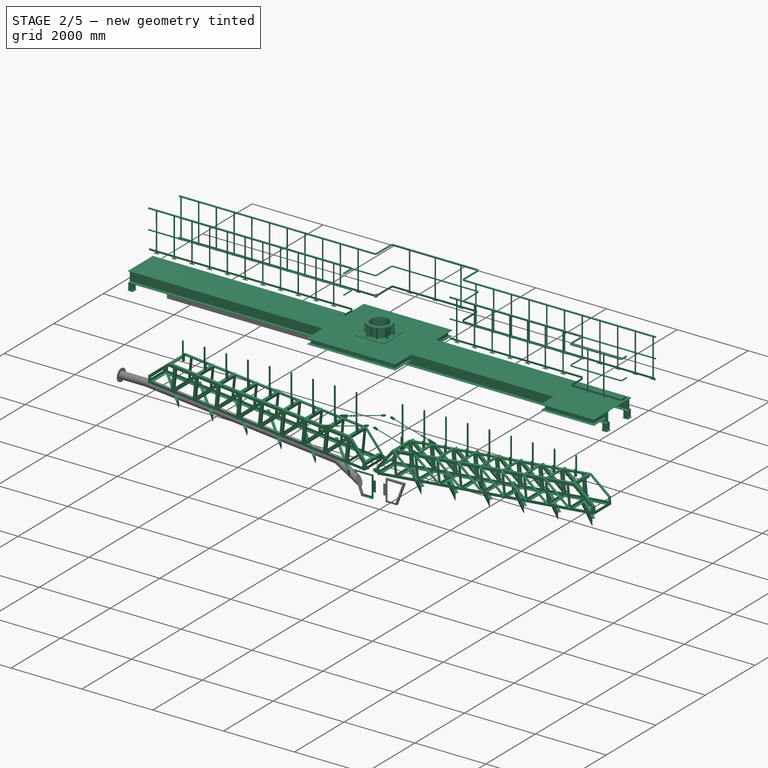
[diagram: stage 2 of 5 — iso view after this stage's code; geometry added in this stage tinted green]
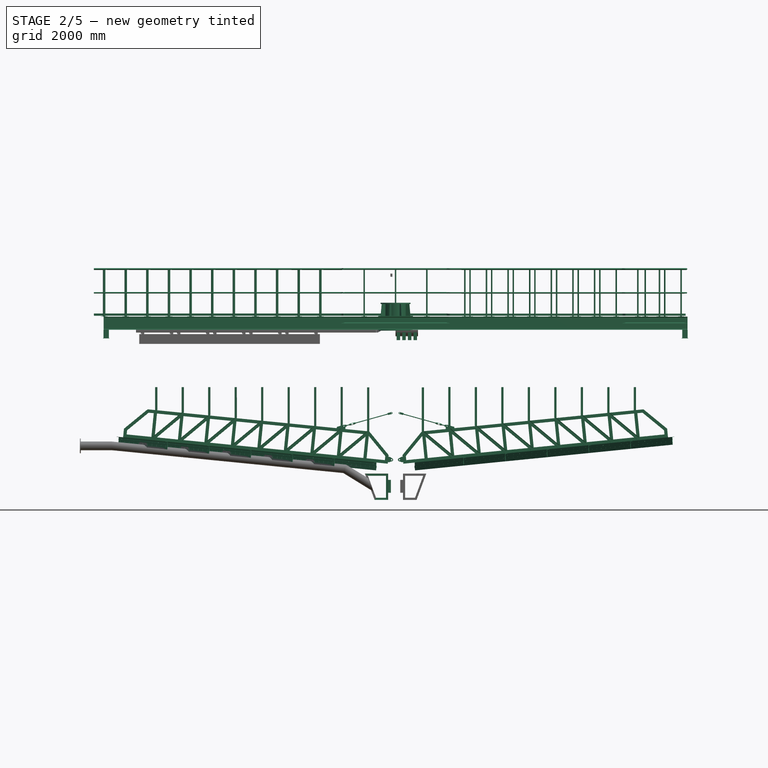
[diagram: stage 2 of 5 — front view after this stage's code; geometry added in this stage tinted green]
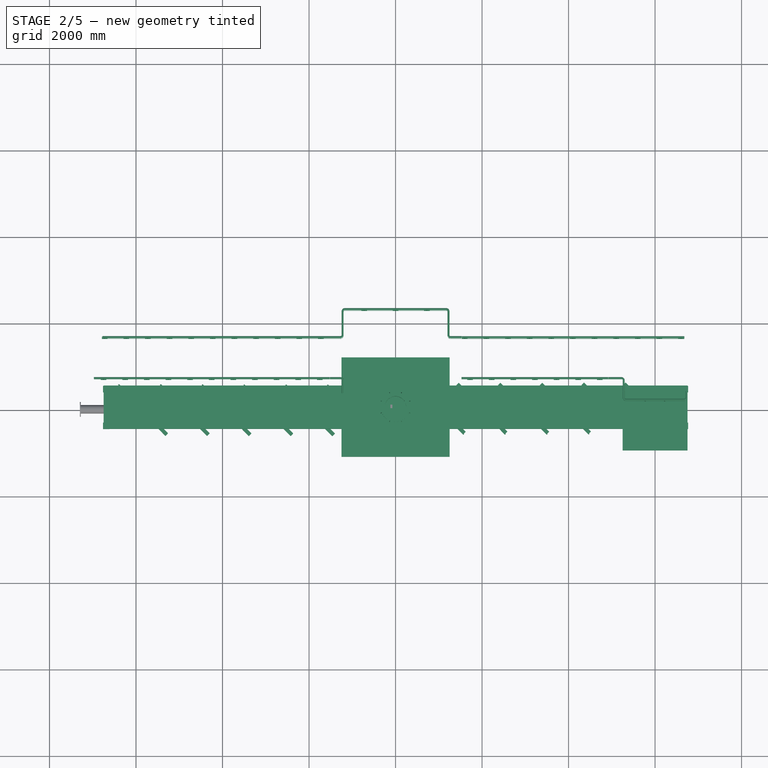
[diagram: stage 2 of 5 — top view after this stage's code; geometry added in this stage tinted green]
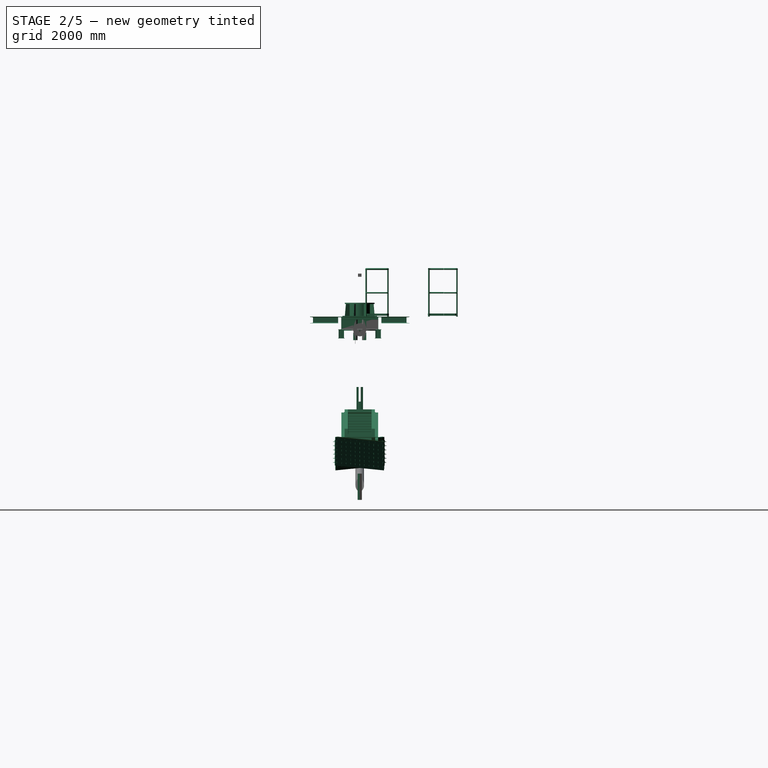
[diagram: stage 2 of 5 — right view after this stage's code; geometry added in this stage tinted green]
FEATURE [Part::Feature] Part__Feature  label="body"
  Placement = pos=(0,0,-3800) rot=(0,0,1;0rad)
  shape: bbox 15210 x 15250 x 6370 mm, 54 faces (baked)
FEATURE [Part::Feature] Face
  shape: bbox 18210 x 2e-07 x 8830 mm, 1 faces, 0 solids (baked)
FEATURE [Part::FeaturePython] b_brade_001_  label="brade_001"  # a2plus imported part (geometry in sourceFile) (typed FeaturePython)
  Placement = pos=(1000,-0.0236833,-445.861) rot=(0,0,-1;0.785398rad)
  a2p_Version = 0.4.60n
  fixedPosition = false
  objectType = a2pPart
  sourceFile = .\..\suspended_type_thickner\13.0m\brade.FCStd
  subassemblyImport = false
  timeLastImport = 1.70876e+09
  updateColors = true
FEATURE [Part::FeaturePython] Array  # Draft array (typed FeaturePython)
  AlwaysSyncPlacement = false
  Angle = 360
  ArrayType = 0
  Axis = (0,0,1)
  Base = -> b_brade_001_
  Center = (0,0,0)
  Count = 6
  ExpandArray = false
  Fuse = false
  IntervalAxis = (0,0,0)
  IntervalX = (970,0,0)
  IntervalY = (0,100,0)
  IntervalZ = (0,0,100)
  NumberCircles = 3
  NumberPolar = 5
  NumberX = 6
  NumberY = 1
  NumberZ = 1
  Placement = pos=(0,0.000262523,-2203.2) rot=(0,0,1;0rad)
  PlacementList = 6 placements: arithmetic series from (1000,-0.0236833,-445.861) step (970,0,0) to (5850,-0.0236833,-445.861)
  RadialDistance = 50
  ScaleList = (6) [(1,1,1),(1,1,1),(1,1,1),(1,1,1),(1,1,1),(1,1,1)]
  Symmetry = 1
  TangentialDistance = 25
FEATURE [App::Part] Part025  label="TurnBackle"
  Group = -> [Spreadsheet009,Sketch064,Cylinder008,Cut022,Sketch065,Extrude049,Extrude050,Fusion002,Revolve012,Sketch067,Cut005,Cut004,Extrude051,Extrude052,Extrude053,Sketch068,Sketch066,Sketch069,Cut006,Cylinder001,Extrude048,Sketch063,Extrude054,Extrude055,Cut023,Cut007,Sketch017,Pad,Sketch062,Sketch070,Cut008]
  Origin = -> Origin030
  Placement = pos=(1191.88,-342.55,-2229.69) rot=(0,1,0;0.270526rad)
FEATURE [Part::FeaturePython] b_RakeArm_001_  label="RakeArm_001"  # a2plus imported part (geometry in sourceFile) (typed FeaturePython)
  Placement = pos=(90,-500.23,-2550) rot=(0,0,1;0rad)
  a2p_Version = 0.4.60n
  fixedPosition = false
  objectType = a2pPart
  sourceFile = .\..\suspended_type_thickner\13.0m\RakeArm.FCStd
  subassemblyImport = false
  timeLastImport = 1.70955e+09
  updateColors = true
FEATURE [App::Part] Part  label="rake"
  Group = -> [b_brade_001_,b_RakeArm_001_,Array]
  Origin = -> Origin
FEATURE [Part::Compound] Compound  label="rake001"
  Links = -> [Part]
  Placement = pos=(-252.332,-0.0142904,-476.57) rot=(0,-1,0;0.09929rad)
FEATURE [Part::FeaturePython] HShapeSteel  # WARN: FeaturePython — macro-defined, semantics opaque (R4)
  B = 150
  H = 300
  L = 13000
  Placement = pos=(0,-75,0) rot=(0,0,1;1.5708rad)
  Solid = false
  g0 = 7.85
  mass = 0
  size = 9
  standard = SS_Thin
  t1 = 6.5
  t2 = 9
FEATURE [Part::Extrusion] Extrude073  label="Extrude085"
  Base = -> HShapeSteel
  Dir = (-1,2e-16,0)
  DirMode = 2
  FaceMakerClass = Part::FaceMakerBullseye
  LengthFwd = 13500
  LengthRev = 0
  Placement = pos=(0,425,0) rot=(0,0,1;0rad)
  Solid = false
  Symmetric = true
FEATURE [Part::FeaturePython] Clone013  label="Extrude086"  # Draft clone (typed FeaturePython)
  AttacherType = Attacher::AttachEngine3D
  Fuse = false
  Objects = -> [Extrude073]
  Placement = pos=(0,-425,0) rot=(0,0,1;0rad)
  Scale = (1,1,1)
FEATURE [App::Part] NSK_7926A5
  Group = -> [Part__Feature007,Part__Feature008,Part__Feature009,Part__Feature010,Part__Feature011,Part__Feature012,Part__Feature013,Part__Feature014,Part__Feature015,Part__Feature016,Part__Feature017,Part__Feature018,Part__Feature019,Part__Feature020,Part__Feature021,Part__Feature022,Part__Feature023,Compound043]
  Origin = -> Origin039
  Placement = pos=(0,0,0) rot=(0,1,0;4.71239rad)
FEATURE [Sketcher::SketchObject] Sketch093
  FullyConstrained = false
  MapMode = 5
  Placement = pos=(0,0,0) rot=(1,0,0;1.5708rad)
  Support = -> [XZ_Plane040]
  sketch-geometry (6):
    g0: LineSegment StartX=90 StartY=28 StartZ=0 EndX=90 EndY=0 EndZ=0
    g1: LineSegment StartX=90 StartY=0 StartZ=0 EndX=84.9357 EndY=0 EndZ=0
    g2: LineSegment StartX=84.9357 StartY=0 StartZ=0 EndX=84.9357 EndY=-5 EndZ=0
    g3: LineSegment StartX=84.9357 StartY=-5 StartZ=0 EndX=110 EndY=-5 EndZ=0
    g4: LineSegment StartX=110 StartY=-5 StartZ=0 EndX=110 EndY=28 EndZ=0
    g5: LineSegment StartX=110 StartY=28 StartZ=0 EndX=90 EndY=28 EndZ=0
  constraints (17):
    c: PointOnObject(g0,g-1)
    c: Vertical(g0)
    c: Coincident(g0,g1)
    c: PointOnObject(g1,g-1)
    c: Coincident(g1,g2)
    c: Vertical(g2)
    c: Coincident(g2,g3)
    c: Horizontal(g3)
    c: Coincident(g3,g4)
    c: Vertical(g4)
    c: Coincident(g4,g5)
    c: Coincident(g5,g0)
    c: Horizontal(g5)
    c: DistanceX(g-1,g0) = 90
    c: DistanceY(g0,g0) = 28
    c: DistanceX(g-2,g4) = 110
    c: DistanceY(g2,g2) = 5
FEATURE [PartDesign::Revolution] Revolution004
  Angle = 360
  Axis = (0,2e-16,1)
  Base = (0,0,0)
  Placement = pos=(0,0,0) rot=(1,0,0;1.5708rad)
  Profile = -> Sketch093
  ReferenceAxis = -> Sketch093 [V_Axis]
  Reversed = true
FEATURE [PartDesign::Body] Body004  label="Body"
  Group = -> [Sketch093,Revolution004]
  Origin = -> Origin040
  Tip = -> Revolution004
FEATURE [Part::FeaturePython] Screw  label="M10x20-Screw"  # Fasteners workbench fastener (typed FeaturePython)
  Placement = pos=(100,0,28.046) rot=(0,0,1;0rad)
  diameter = 10
  invert = false
  leftHanded = false
  length = 0
  lengthCustom = 20
  matchOuter = false
  offset = 0
  thread = true
  type = 22
FEATURE [Part::FeaturePython] Array009  # Draft array (typed FeaturePython)
  AlwaysSyncPlacement = false
  Angle = 360
  ArrayType = 1
  Axis = (0,0,1)
  Base = -> Screw
  Center = (0,0,0)
  Count = 6
  ExpandArray = false
  Fuse = false
  IntervalAxis = (0,0,0)
  IntervalX = (50,0,0)
  IntervalY = (0,50,0)
  IntervalZ = (0,0,50)
  NumberCircles = 3
  NumberPolar = 6
  NumberX = 2
  NumberY = 2
  NumberZ = 1
  PlacementList = 6 placements: [(100,0,28.046),(50,86.6025,28.046),(-50,86.6025,28.046),(-100,1.22465e-14,28.046),(-50,-86.6025,28.046),(50,-86.6025,28.046)]
  RadialDistance = 50
  ScaleList = (6) [(1,1,1),(1,1,1),(1,1,1),(1,1,1),(1,1,1),(1,1,1)]
  Symmetry = 1
  TangentialDistance = 25
FEATURE [Part::Cut] Cut031
  Base = -> Body004
  Tool = -> Array009
FEATURE [PartDesign::Body] Body006  label="oilsealCover"
  Group = -> [Sketch095,Revolution006,Sketch096,Pocket002,PolarPattern002]
  Origin = -> Origin042
  Tip = -> PolarPattern002
FEATURE [Sketcher::SketchObject] Sketch097
  ExternalGeometry = -> [Cut031]
  FullyConstrained = true
  Placement = pos=(0,0,0) rot=(1,0,0;1.5708rad)
  sketch-geometry (4):
    g0: LineSegment StartX=110 StartY=0 StartZ=0 EndX=210 EndY=0 EndZ=0
    g1: LineSegment StartX=210 StartY=0 StartZ=0 EndX=210 EndY=15 EndZ=0
    g2: LineSegment StartX=210 StartY=15 StartZ=0 EndX=110 EndY=15 EndZ=0
    g3: LineSegment StartX=110 StartY=15 StartZ=0 EndX=110 EndY=0 EndZ=0
  constraints (12):
    c: Coincident(g0,g1)
    c: Coincident(g1,g2)
    c: Coincident(g2,g3)
    c: Coincident(g3,g0)
    c: Horizontal(g0)
    c: Horizontal(g2)
    c: Vertical(g1)
    c: Vertical(g3)
    c: PointOnObject(g0,g-1)
    c: PointOnObject(g0,g-3)
    c: DistanceX(g2,g2) = 100
    c: DistanceY(g1,g1) = 15
FEATURE [Part::Revolution] Revolve016
  Angle = 360
  Axis = (0,0,1)
  Base = (0,0,0)
  FaceMakerClass = Part::FaceMakerBullseye
  Solid = true
  Source = -> Sketch097
  Symmetric = false
FEATURE [Sketcher::SketchObject] Sketch100
  FullyConstrained = true
  Placement = pos=(0,0,59) rot=(0,0,1;0rad)
  expr: .Placement.Base.z = Spreadsheet013.C0 + Spreadsheet013.E / 2
  expr: Constraints[10] = Spreadsheet013.F0
  expr: Constraints[6] = Spreadsheet013.A0 / 2
  expr: Constraints[8] = Spreadsheet013.H0
  expr: Constraints[9] = Spreadsheet013.D / 2
  sketch-geometry (4):
    g0: LineSegment StartX=24.5 StartY=150 StartZ=0 EndX=24.5 EndY=91.5 EndZ=0
    g1: ArcOfCircle CenterX=65 CenterY=91.5 CenterZ=0 NormalX=0 NormalY=0 NormalZ=1 AngleXU=0 Radius=40.5 StartAngle=3.14159 EndAngle=6.28319
    g2: LineSegment StartX=105.5 StartY=91.5 StartZ=0 EndX=105.5 EndY=150 EndZ=0
    g3: LineSegment StartX=105.5 StartY=150 StartZ=0 EndX=24.5 EndY=150 EndZ=0
  constraints (11):
    c: Vertical(g0)
    c: Tangent(g0,g1) = -1.5708
    c: Coincident(g2,g3)
    c: Coincident(g3,g0)
    c: Horizontal(g3)
    c: Vertical(g2)
    c: DistanceY(g-1,g1) = 91.5
    c: Tangent(g1,g2) = -1.5708
    c: DistanceX(g3,g3) = 81
    c: DistanceY(g-1,g0) = 150
    c: DistanceX(g-1,g1) = 65
FEATURE [Part::Extrusion] Extrude076
  Base = -> Sketch100
  Dir = (0,0,1)
  DirMode = 2
  FaceMakerClass = Part::FaceMakerBullseye
  LengthFwd = 180
  LengthRev = 0
  Solid = true
  Symmetric = false
  expr: LengthFwd = Spreadsheet013.D * 0.6
FEATURE [Spreadsheet::Sheet] Spreadsheet013
  cells = B2=130; A3='d; B3(d)=130; A4='D; B4(D)=300; A5='L; B5(L)=520; A6='A0; B6(A0)=183; A7='B; B7(B)=101; A8='C0; B8(C0)=58; A9='E; B9(E)=2; A10='F0; B10(F0)=65; A11='G0; B11(G0)=130; A12='H0; B12(H0)=81; A13='S0; B13(S0)=35; A14='BoltNo; B14(BoltNo)=8; A15='BoltSize; B15(BoltSize)='M32; A16='BoltL; B16(BoltL)==2 * B8 + B9 + B13
FEATURE [Part::FeaturePython] Array011  # Draft array (typed FeaturePython)
  Angle = 360
  ArrayType = 0
  Axis = (0,0,1)
  Base = -> Extrude076
  Center = (0,0,0)
  Count = 4
  Fuse = false
  IntervalAxis = (0,0,0)
  IntervalX = (130,0,0)
  IntervalY = (0,1,0)
  IntervalZ = (0,0,50)
  NumberCircles = 3
  NumberPolar = 5
  NumberX = 4
  NumberY = 1
  NumberZ = 1
  RadialDistance = 50
  Symmetry = 1
  TangentialDistance = 25
  expr: .IntervalX.x = Spreadsheet013.G0
  expr: NumberX = Spreadsheet013.BoltNo / 2
FEATURE [Part::Mirroring] mirror  label="Array (mirrored) "
  Base = (-1000,0,0)
  Normal = (0,-1,0)
  Source = -> Array011
FEATURE [Part::MultiFuse] Fusion005
  Shapes = -> [mirror,Array011]
FEATURE [Part::Mirroring] mirror001  label="Fusion (mirrored) "
  Base = (-1000,0,0)
  Normal = (0,0,-1)
  Source = -> Fusion005
FEATURE [Part::MultiFuse] Fusion006
  Shapes = -> [mirror001,Fusion005]
FEATURE [App::Part] Part033  label="筒割形継手"
  Group = -> [__keyway_boss,Sketch100,Array010,__basic,Extrude075,Extrude076,Extrude077,Extrude074,Cut032,Cut033,Sketch099,Sketch101,Spreadsheet013,Array011,mirror,Fusion005,mirror001,Fusion006,Cut034,Cut035]
  Origin = -> Origin009
  Placement = pos=(-1.56e-14,0,70.092) rot=(0,1,0;4.71239rad)
FEATURE [Sketcher::SketchObject] Sketch102
  FullyConstrained = false
  MapMode = 5
  Placement = pos=(0,0,15) rot=(0,0,1;0rad)
  Support = -> [Revolve016]
  sketch-geometry (1):
    g0: Circle CenterX=185 CenterY=-0.1655 CenterZ=0 NormalX=0 NormalY=0 NormalZ=1 AngleXU=0 Radius=9.5
  constraints (2):
    c: Diameter(g0) = 19
    c: DistanceX(g-1,g0) = 185
FEATURE [Part::Extrusion] Extrude078
  Base = -> Sketch102
  Dir = (0,0,1)
  DirMode = 2
  FaceMakerClass = Part::FaceMakerBullseye
  LengthFwd = 30
  LengthRev = 0
  Reversed = true
  Solid = true
  Symmetric = false
FEATURE [Part::FeaturePython] Array012  # Draft array (typed FeaturePython)
  AlwaysSyncPlacement = false
  Angle = 360
  ArrayType = 1
  Axis = (0,0,1)
  Base = -> Extrude078
  Center = (0,0,590.09)
  Count = 6
  ExpandArray = false
  Fuse = false
  IntervalAxis = (0,0,0)
  IntervalX = (50,0,0)
  IntervalY = (0,50,0)
  IntervalZ = (0,0,50)
  NumberCircles = 3
  NumberPolar = 6
  NumberX = 2
  NumberY = 2
  NumberZ = 1
  PlacementList = 6 placements: [(0,0,0),(0,0,0),(0,0,0),(0,0,0),(0,0,1.13687e-13),(0,0,0)]
  RadialDistance = 50
  ScaleList = (6) [(1,1,1),(1,1,1),(1,1,1),(1,1,1),(1,1,1),(1,1,1)]
  Symmetry = 1
  TangentialDistance = 25
FEATURE [Part::Cut] Cut036
  Base = -> Revolve016
  Tool = -> Array012
FEATURE [App::Part] Part031  label="house"
  Group = -> [Cut031,Body004,Revolve016,Extrude078,Array012,Screw,Array009,Sketch097,Sketch102,Cut036]
  Origin = -> Origin043
FEATURE [Part::Feature] Part__Feature024  label="減速機 v2"
  Placement = pos=(0,-7.2e-14,324.85) rot=(1,0,0;1.5708rad)
  shape: bbox 550 x 550 x 1097 mm, 38 faces (baked)
FEATURE [Sketcher::SketchObject] Sketch103
  FullyConstrained = true
  Placement = pos=(0,0,0) rot=(1,0,0;1.5708rad)
  sketch-geometry (12):
    g0: LineSegment StartX=170 StartY=0 StartZ=0 EndX=400 EndY=0 EndZ=0
    g1: LineSegment StartX=400 StartY=0 StartZ=0 EndX=400 EndY=-20 EndZ=0
    g2: LineSegment StartX=400 StartY=-20 StartZ=0 EndX=170 EndY=-20 EndZ=0
    g3: LineSegment StartX=170 StartY=-20 StartZ=0 EndX=170 EndY=0 EndZ=0
    g4: LineSegment StartX=250 StartY=625 StartZ=0 EndX=345 EndY=625 EndZ=0
    g5: LineSegment StartX=345 StartY=625 StartZ=0 EndX=345 EndY=595 EndZ=0
    g6: LineSegment StartX=345 StartY=595 StartZ=0 EndX=250 EndY=595 EndZ=0
    g7: LineSegment StartX=250 StartY=595 StartZ=0 EndX=250 EndY=625 EndZ=0
    g8: LineSegment StartX=245 StartY=595 StartZ=0 EndX=257 EndY=595 EndZ=0
    g9: LineSegment StartX=257 StartY=595 StartZ=0 EndX=257 EndY=0 EndZ=0
    g10: LineSegment StartX=257 StartY=0 StartZ=0 EndX=245 EndY=0 EndZ=0
    g11: LineSegment StartX=245 StartY=0 StartZ=0 EndX=245 EndY=595 EndZ=0
  constraints (36):
    c: Coincident(g0,g1)
    c: Coincident(g1,g2)
    c: Coincident(g2,g3)
    c: Coincident(g3,g0)
    c: Horizontal(g0)
    c: Horizontal(g2)
    c: Vertical(g1)
    c: Vertical(g3)
    c: Coincident(g4,g5)
    c: Coincident(g5,g6)
    c: Coincident(g6,g7)
    c: Coincident(g7,g4)
    c: Horizontal(g4)
    c: Horizontal(g6)
    c: Vertical(g7)
    c: Coincident(g8,g9)
    c: Coincident(g9,g10)
    c: Coincident(g10,g11)
    c: Coincident(g11,g8)
    c: Horizontal(g8)
    c: Horizontal(g10)
    c: Vertical(g9)
    c: Vertical(g11)
    c: PointOnObject(g8,g6)
    c: PointOnObject(g9,g0)
    c: DistanceY(g5,g5) = 30
    c: DistanceY(g1,g1) = 20
    c: PointOnObject(g0,g-1)
    c: DistanceX(g-1,g2) = 170
    c: DistanceX(g-1,g1) = 400
    c: DistanceY(g1,g4) = 645
    c: Vertical(g5)
    c: DistanceX(g-2,g6) = 250
    c: DistanceX(g6,g6) = 95
    c: DistanceX(g-2,g8) = 245
    c: DistanceX(g8,g8) = 12
FEATURE [Part::Revolution] Revolve017
  Angle = 360
  Axis = (0,0,1)
  Base = (0,0,0)
  FaceMakerClass = Part::FaceMakerBullseye
  Solid = true
  Source = -> Sketch103
  Symmetric = false
FEATURE [Sketcher::SketchObject] Sketch104
  FullyConstrained = false
  MapMode = 5
  Support = -> [Revolve017]
  sketch-geometry (1):
    g0: Circle CenterX=360 CenterY=0 CenterZ=0 NormalX=0 NormalY=0 NormalZ=1 AngleXU=0 Radius=12.4969
  constraints (2):
    c: PointOnObject(g0,g-1)
    c: DistanceX(g-1,g0) = 360
FEATURE [Part::Extrusion] Extrude079
  Base = -> Sketch104
  Dir = (0,0,1)
  DirMode = 2
  FaceMakerClass = Part::FaceMakerBullseye
  LengthFwd = 30
  LengthRev = 0
  Reversed = true
  Solid = true
  Symmetric = false
FEATURE [Part::FeaturePython] Array013  # Draft array (typed FeaturePython)
  AlwaysSyncPlacement = false
  Angle = 360
  ArrayType = 1
  Axis = (0,0,1)
  Base = -> Extrude079
  Center = (0,0,38)
  Count = 8
  ExpandArray = false
  Fuse = false
  IntervalAxis = (0,0,0)
  IntervalX = (50,0,0)
  IntervalY = (0,50,0)
  IntervalZ = (0,0,50)
  NumberCircles = 3
  NumberPolar = 8
  NumberX = 2
  NumberY = 2
  NumberZ = 1
  PlacementList = 8 placements: [(0,0,0),(0,0,0),(0,0,-7.10543e-15),(0,0,0),(0,0,0),(0,0,0),(0,0,0),(0,0,0)]
  RadialDistance = 50
  ScaleList = (8) [(1,1,1),(1,1,1),(1,1,1),(1,1,1),(1,1,1),(1,1,1),(1,1,1),(1,1,1)]
  Symmetry = 1
  TangentialDistance = 25
FEATURE [Sketcher::SketchObject] Sketch105
  ExternalGeometry = -> [Revolve017]
  FullyConstrained = true
  Placement = pos=(0,0,0) rot=(1,0,0;1.5708rad)
  sketch-geometry (4):
    g0: LineSegment StartX=257 StartY=595 StartZ=0 EndX=257 EndY=0 EndZ=0
    g1: LineSegment StartX=257 StartY=0 StartZ=0 EndX=400 EndY=0 EndZ=0
    g2: LineSegment StartX=400 StartY=0 StartZ=0 EndX=345 EndY=595 EndZ=0
    g3: LineSegment StartX=345 StartY=595 StartZ=0 EndX=257 EndY=595 EndZ=0
  constraints (8):
    c: Coincident(g0,g1)
    c: Coincident(g1,g2)
    c: Coincident(g2,g3)
    c: Coincident(g3,g0)
    c: Coincident(g0,g-4)
    c: Coincident(g0,g-4)
    c: Coincident(g2,g-3)
    c: Coincident(g1,g-5)
FEATURE [Part::Extrusion] Extrude080  label="Extrude088"
  Base = -> Sketch105
  Dir = (0,-1,-3e-16)
  DirMode = 2
  FaceMakerClass = Part::FaceMakerBullseye
  LengthFwd = 12
  LengthRev = 0
  Placement = pos=(0,0,0) rot=(0,0,1;0.392699rad)
  Solid = true
  Symmetric = true
FEATURE [Part::FeaturePython] Array005  # Draft array (typed FeaturePython)
  AlwaysSyncPlacement = false
  Angle = 360
  ArrayType = 1
  Axis = (0,0,1)
  Base = -> Extrude080
  Center = (0,0,58)
  Count = 8
  ExpandArray = false
  Fuse = false
  IntervalAxis = (0,0,0)
  IntervalX = (50,0,0)
  IntervalY = (0,50,0)
  IntervalZ = (0,0,50)
  NumberCircles = 3
  NumberPolar = 8
  NumberX = 2
  NumberY = 2
  NumberZ = 1
  PlacementList = 8 placements: [(0,0,0),(0,0,0),(0,0,-1.42109e-14),(0,0,0),(0,0,0),(0,0,0),(0,0,0),(0,0,0)]
  RadialDistance = 50
  ScaleList = (8) [(1,1,1),(1,1,1),(1,1,1),(1,1,1),(1,1,1),(1,1,1),(1,1,1),(1,1,1)]
  Symmetry = 1
  TangentialDistance = 25
FEATURE [Part::FeaturePython] HShapeSteel001  # WARN: FeaturePython — macro-defined, semantics opaque (R4)
  B = 150
  H = 300
  L = 850
  Placement = pos=(400,425,150) rot=(1,0,0;1.5708rad)
  Solid = true
  g0 = 7.85
  mass = 31.2144
  size = 9
  standard = SS_Thin
  t1 = 6.5
  t2 = 9
FEATURE [Part::FeaturePython] BasePlate  # WARN: FeaturePython — macro-defined, semantics opaque (R4)
  B = 150
  D = 20
  H = 150
  b1 = 30
  h1 = 45
  sface = 0
FEATURE [Part::Extrusion] Extrude081  label="Extrude089"
  Base = -> BasePlate
  Dir = (0,0,1)
  DirMode = 2
  FaceMakerClass = Part::FaceMakerBullseye
  LengthFwd = 10
  LengthRev = 0
  Solid = true
  Symmetric = false
FEATURE [Part::FeaturePython] H_Shape  # WARN: FeaturePython — macro-defined, semantics opaque (R4)
  B = 125
  H = 125
  L = 200
  Solid = true
  g0 = 7.85
  mass = 4.7592
  size = 1
  standard = SS_Wide
FEATURE [Part::MultiFuse] Fusion007  label="PostH"
  Placement = pos=(6690,425,-200) rot=(0,0,1;0rad)
  Shapes = -> [Extrude081,H_Shape]
FEATURE [Part::FeaturePython] Clone015  label="PostH001"  # Draft clone (typed FeaturePython)
  AttacherType = Attacher::AttachEngine3D
  Fuse = false
  Objects = -> [Fusion007]
  Placement = pos=(6690,-425,-200) rot=(0,0,1;0rad)
  Scale = (1,1,1)
FEATURE [Part::FeaturePython] AngleSteel006  # WARN: FeaturePython — macro-defined, semantics opaque (R4)
  A = 65
  B = 65
  L = 850
  Placement = pos=(1400,425,0) rot=(1,0,0;1.5708rad)
  Solid = true
  g0 = 7.85
  mass = 5.02198
  size = 8
  standard = SS_Equal
  t = 6
FEATURE [Part::FeaturePython] Array014  # Draft array (typed FeaturePython)
  AlwaysSyncPlacement = false
  Angle = 360
  ArrayType = 0
  Axis = (0,0,1)
  Base = -> AngleSteel006
  Center = (0,0,0)
  Count = 6
  ExpandArray = false
  Fuse = false
  IntervalAxis = (0,0,0)
  IntervalX = (1000,0,0)
  IntervalY = (0,100,0)
  IntervalZ = (0,0,100)
  NumberCircles = 3
  NumberPolar = 5
  NumberX = 6
  NumberY = 1
  NumberZ = 1
  Placement = pos=(0,0,267.5) rot=(0,0,1;0rad)
  PlacementList = 6 placements: arithmetic series from (1400,425,0) step (1000,0,0) to (6400,425,0)
  RadialDistance = 50
  ScaleList = (6) [(1,1,1),(1,1,1),(1,1,1),(1,1,1),(1,1,1),(1,1,1)]
  Symmetry = 1
  TangentialDistance = 25
FEATURE [Part::FeaturePython] ChannelSteel002  # WARN: FeaturePython — macro-defined, semantics opaque (R4)
  B = 75
  H = 150
  L = 1000
  Placement = pos=(5325.02,-833.265,150) rot=(0,0,1;3.14159rad)
  Solid = false
  g0 = 7.85
  mass = 0
  size = 3
  standard = SS
  t1 = 6.5
  t2 = 10
FEATURE [Sketcher::SketchObject] Sketch106
  ExternalGeometry = -> [Clone013]
  FullyConstrained = true
  MapMode = 5
  Placement = pos=(0,-425,300) rot=(0,0,1;0rad)
  Support = -> [Clone013]
  sketch-geometry (3):
    g0: LineSegment StartX=6750 StartY=-75 StartZ=0 EndX=6750 EndY=-575 EndZ=0
    g1: LineSegment StartX=6750 StartY=-575 StartZ=0 EndX=5250 EndY=-575 EndZ=0
    g2: LineSegment StartX=5250 StartY=-575 StartZ=0 EndX=5250 EndY=-75 EndZ=0
  constraints (9):
    c: Vertical(g0)
    c: Coincident(g0,g1)
    c: Horizontal(g1)
    c: Coincident(g1,g2)
    c: Vertical(g2)
    c: Coincident(g0,g-3)
    c: PointOnObject(g2,g-3)
    c: DistanceY(g0,g0) = 500
    c: DistanceX(g1,g1) = 1500
FEATURE [Sketcher::SketchObject] Sketch107
  FullyConstrained = true
  sketch-geometry (5):
    g0: LineSegment StartX=-400 StartY=-400 StartZ=0 EndX=-400 EndY=400 EndZ=0
    g1: LineSegment StartX=-400 StartY=400 StartZ=0 EndX=400 EndY=400 EndZ=0
    g2: LineSegment StartX=400 StartY=400 StartZ=0 EndX=400 EndY=-400 EndZ=0
    g3: LineSegment StartX=400 StartY=-400 StartZ=0 EndX=-400 EndY=-400 EndZ=0
    g4: GeomPoint X=0 Y=0 Z=0
  constraints (12):
    c: Coincident(g0,g1)
    c: Coincident(g1,g2)
    c: Coincident(g2,g3)
    c: Coincident(g3,g0)
    c: Horizontal(g1)
    c: Horizontal(g3)
    c: Vertical(g0)
    c: Vertical(g2)
    c: Symmetric(g1,g0,g4)
    c: Coincident(g4,g-1)
    c: DistanceY(g0,g0) = 800
    c: DistanceX(g1,g1) = 800
FEATURE [Part::Extrusion] Extrude082  label="Extrude090"
  Base = -> Sketch107
  Dir = (0,0,1)
  DirMode = 2
  FaceMakerClass = Part::FaceMakerBullseye
  LengthFwd = 20
  LengthRev = 0
  Placement = pos=(0,0,300) rot=(0,0,1;0rad)
  Solid = true
  Symmetric = false
FEATURE [Part::Cut] Cut037
  Base = -> Revolve017
  Tool = -> Array013
FEATURE [App::Part] Part034  label="reducerBase"
  Group = -> [Array013,Array005,Sketch103,Sketch104,Sketch105,Extrude080,Extrude079,Revolve017,Cut037]
  Origin = -> Origin045
FEATURE [Part::Sweep] Sweep
  Frenet = false
  Sections = -> [ChannelSteel002]
  Solid = true
  Spine = -> Sketch106 [Edge3,Edge2,Edge1]
  Transition = 1
FEATURE [Sketcher::SketchObject] Sketch108
  ExternalGeometry = -> [Clone013]
  FullyConstrained = true
  MapMode = 5
  Placement = pos=(0,-425,300) rot=(0,0,1;0rad)
  Support = -> [Clone013]
  sketch-geometry (2):
    g0: LineSegment StartX=1250 StartY=-75 StartZ=0 EndX=1250 EndY=-725 EndZ=0
    g1: LineSegment StartX=1250 StartY=-725 StartZ=0 EndX=0 EndY=-725 EndZ=0
  constraints (7):
    c: Vertical(g0)
    c: Coincident(g0,g1)
    c: PointOnObject(g1,g-2)
    c: Horizontal(g1)
    c: DistanceY(g0,g0) = 650
    c: DistanceX(g1,g1) = 1250
    c: PointOnObject(g0,g-3)
FEATURE [Part::FeaturePython] ChannelSteel003  # WARN: FeaturePython — macro-defined, semantics opaque (R4)
  B = 75
  H = 150
  L = 1000
  Placement = pos=(1174.74,-794.655,150) rot=(0,0,1;0rad)
  Solid = false
  g0 = 7.85
  mass = 0
  size = 3
  standard = SS
  t1 = 6.5
  t2 = 10
FEATURE [Part::Sweep] Sweep001
  Frenet = false
  Sections = -> [ChannelSteel003]
  Solid = true
  Spine = -> Sketch108 [Edge2,Edge1]
  Transition = 1
FEATURE [Part::Mirroring] Mirror029  label="Sweep001 (mirrored)"
  Base = (1000,6.12e-14,0)
  Normal = (1e-16,-1,0)
  Source = -> Sweep001
FEATURE [Part::Compound] Compound044
  Links = -> [Mirror029,Sweep001]
FEATURE [Part::Mirroring] Mirror030  label="Array014 (mirrored)"
  Base = (0,-1000,0)
  Normal = (1,0,0)
  Source = -> Array014
FEATURE [Part::Mirroring] Mirror031  label="Compound044 (mirrored)"
  Base = (0,-1000,0)
  Normal = (1,0,0)
  Source = -> Compound044
FEATURE [Sketcher::SketchObject] Sketch109
  ExternalGeometry = -> [Sketch108,Compound044,Clone013]
  FullyConstrained = false
  MapMode = 5
  Placement = pos=(0,-425,300) rot=(0,0,1;0rad)
  Support = -> [Clone013]
  sketch-geometry (12):
    g0: LineSegment StartX=1249.74 StartY=1574.74 StartZ=0 EndX=1249.74 EndY=925 EndZ=0
    g1: LineSegment StartX=1249.74 StartY=925 StartZ=0 EndX=6750 EndY=925 EndZ=0
    g2: LineSegment StartX=6750 StartY=-75 StartZ=0 EndX=1250 EndY=-75 EndZ=0
    g3: LineSegment StartX=1250 StartY=-75 StartZ=0 EndX=1250 EndY=-725 EndZ=0
    g4: LineSegment StartX=1250 StartY=-725 StartZ=0 EndX=0 EndY=-725 EndZ=0
    g5: LineSegment StartX=1249.74 StartY=1574.74 StartZ=0 EndX=0 EndY=1574.74 EndZ=0
    g6: LineSegment StartX=0 StartY=1574.74 StartZ=0 EndX=0 EndY=824.839 EndZ=0
    g7: LineSegment StartX=0 StartY=824.839 StartZ=0 EndX=400.451 EndY=824.839 EndZ=0
    g8: LineSegment StartX=400.451 StartY=824.839 StartZ=0 EndX=400.451 EndY=23.9071 EndZ=0
    g9: LineSegment StartX=0 StartY=23.9071 StartZ=0 EndX=0 EndY=-725 EndZ=0
    g10: LineSegment StartX=6750 StartY=-75 StartZ=0 EndX=6750 EndY=925 EndZ=0
    g11: LineSegment StartX=0 StartY=23.9071 StartZ=0 EndX=400.451 EndY=23.9071 EndZ=0
  constraints (26):
    c: Coincident(g0,g1)
    c: Horizontal(g1)
    c: Coincident(g2,g3)
    c: Coincident(g3,g4)
    c: Coincident(g0,g5)
    c: Coincident(g5,g6)
    c: PointOnObject(g6,g-2)
    c: Coincident(g6,g7)
    c: Horizontal(g7)
    c: Coincident(g7,g8)
    c: Vertical(g8)
    c: Coincident(g9,g4)
    c: Coincident(g3,g-3)
    c: Coincident(g5,g-4)
    c: Coincident(g0,g-4)
    c: Coincident(g2,g-6)
    c: Coincident(g0,g-5)
    c: Coincident(g10,g2)
    c: Coincident(g10,g1)
    c: Vertical(g10)
    c: Coincident(g2,g-7)
    c: Coincident(g4,g-3)
    c: Coincident(g11,g9)
    c: Coincident(g11,g8)
    c: Horizontal(g11)
    c: Vertical(g9)
FEATURE [Part::Extrusion] Extrude083  label="Extrude091"
  Base = -> Sketch109
  Dir = (0,0,1)
  DirMode = 2
  FaceMakerClass = Part::FaceMakerBullseye
  LengthFwd = 4.5
  LengthRev = 0
  Solid = true
  Symmetric = false
FEATURE [Sketcher::SketchObject] Sketch110
  ExternalGeometry = -> [Sketch106]
  FullyConstrained = true
  MapMode = 5
  Placement = pos=(0,3.6e-14,300) rot=(0,0,1;0rad)
  Support = -> [Sweep]
  sketch-geometry (4):
    g0: LineSegment StartX=5250 StartY=-1000 StartZ=0 EndX=6750 EndY=-1000 EndZ=0
    g1: LineSegment StartX=6750 StartY=-1000 StartZ=0 EndX=6750 EndY=-500 EndZ=0
    g2: LineSegment StartX=6750 StartY=-500 StartZ=0 EndX=5250 EndY=-500 EndZ=0
    g3: LineSegment StartX=5250 StartY=-500 StartZ=0 EndX=5250 EndY=-1000 EndZ=0
  constraints (10):
    c: Coincident(g0,g1)
    c: Coincident(g1,g2)
    c: Coincident(g2,g3)
    c: Coincident(g3,g0)
    c: Horizontal(g0)
    c: Horizontal(g2)
    c: Vertical(g3)
    c: Coincident(g0,g-3)
    c: Coincident(g1,g-3)
    c: PointOnObject(g0,g-4)
FEATURE [Part::Extrusion] Extrude084  label="Extrude092"
  Base = -> Sketch110
  Dir = (0,1e-16,1)
  DirMode = 2
  FaceMakerClass = Part::FaceMakerBullseye
  LengthFwd = 4.5
  LengthRev = 0
  Solid = true
  Symmetric = false
FEATURE [Part::FeaturePython] Array015  # Draft array (typed FeaturePython)
  AlwaysSyncPlacement = false
  Angle = 360
  ArrayType = 1
  Axis = (0,0,1)
  Base = -> Extrude083
  Center = (0.01293,-0.03121,3579.43)
  Count = 2
  ExpandArray = false
  Fuse = false
  IntervalAxis = (0,0,0)
  IntervalX = (50,0,0)
  IntervalY = (0,50,0)
  IntervalZ = (0,0,50)
  NumberCircles = 3
  NumberPolar = 2
  NumberX = 2
  NumberY = 2
  NumberZ = 1
  Placement = pos=(0,-0.000214253,0) rot=(0,0,1;0rad)
  PlacementList = 2 placements: [(0,0,0),(0.02586,-0.06242,0)]
  RadialDistance = 50
  ScaleList = (2) [(1,1,1),(1,1,1)]
  Symmetry = 1
  TangentialDistance = 25
FEATURE [Part::Compound] Compound045
  Links = -> [Fusion007,Clone015]
FEATURE [Part::FeaturePython] Array016  # Draft array (typed FeaturePython)
  AlwaysSyncPlacement = false
  Angle = 360
  ArrayType = 1
  Axis = (0,0,1)
  Base = -> Compound045
  Center = (0,0,0)
  Count = 2
  ExpandArray = false
  Fuse = false
  IntervalAxis = (0,0,0)
  IntervalX = (50,0,0)
  IntervalY = (0,50,0)
  IntervalZ = (0,0,50)
  NumberCircles = 3
  NumberPolar = 2
  NumberX = 2
  NumberY = 2
  NumberZ = 1
  Placement = pos=(0,-0.000208599,0) rot=(0,0,1;0rad)
  PlacementList = 2 placements: [(0,0,0),(0,0,0)]
  RadialDistance = 50
  ScaleList = (2) [(1,1,1),(1,1,1)]
  Symmetry = 1
  TangentialDistance = 25
FEATURE [Part::MultiFuse] Fusion008
  Refine = true
  Shapes = -> [Clone013,Extrude073,HShapeSteel001,Sweep,Mirror031,Compound044,Mirror030,Array014]
FEATURE [App::Part] Part037  label="body002"
  Group = -> [Sketch107,Extrude082,Fusion007,Clone015,BasePlate,H_Shape,Compound045,Extrude081,Array016,Extrude073,Mirror031,Mirror029,Clone013,Compound044,Array014,Extrude083,HShapeSteel,Sweep,Sweep001,Mirror030,Fusion008,HShapeSteel001,AngleSteel006,Array015,ChannelSteel003,ChannelSteel002,Sketch106,Sketch108,Sketch109,Sketch110,Extrude084]
  Origin = -> Origin047
FEATURE [Part::FeaturePython] Corner  # WARN: FeaturePython — macro-defined, semantics opaque (R4)
  Placement = pos=(4923.89,651.825,304.78) rot=(-0.995956,3.5e-05,-0.092663;1e-06rad)
  Reverse = false
  g0 = 7.85
  h = 1100
  k = -90
  l1 = 350
  l2 = 300
  mass = 5.20865
  p = 1000
  spec = 0
  type = 2
FEATURE [Part::FeaturePython] Channel001  # WARN: FeaturePython — macro-defined, semantics opaque (R4)
  Placement = pos=(5998.53,148.709,304.44) rot=(0,0,1;0rad)
  Reverse = false
  g0 = 7.85
  h = 1100
  k = 90
  l1 = 725
  l2 = 200
  mass = 20.4392
  p = 500
  spec = 0
  type = 6
FEATURE [Part::FeaturePython] Corner001  # WARN: FeaturePython — macro-defined, semantics opaque (R4)
  Placement = pos=(1224.73,306.826,304.78) rot=(0,0,1;1.5708rad)
  Reverse = false
  g0 = 7.85
  h = 1100
  k = -90
  l1 = 345
  l2 = 300
  mass = 5.1678
  p = 1000
  spec = 0
  type = 2
FEATURE [Part::FeaturePython] StraightLine  # WARN: FeaturePython — macro-defined, semantics opaque (R4)
  Placement = pos=(1525.4,651.825,304.78) rot=(-0.997557,3.5e-05,-0.059803;1e-06rad)
  Reverse = true
  g0 = 7.85
  h = 1100
  l1 = 3395
  mass = 50.9215
  p = 500
  spec = 0
  type = 0
FEATURE [App::FeaturePython] circularEdge_002  label="circularEdge_002__Corner001"  # a2plus constraint (typed FeaturePython)
  Object1 = StraightLine
  Object2 = Corner001
  ParentTreeObject = -> StraightLine
  SubElement1 = Edge50
  SubElement2 = Edge2
  Suppressed = false
  Type = circularEdge
  directionConstraint = 1
  lockRotation = false
  offset = 0
FEATURE [App::FeaturePython] circularEdge_002_mirror  label="circularEdge_002__StraightLine"  # a2plus constraint (typed FeaturePython)
  Object1 = StraightLine
  Object2 = Corner001
  ParentTreeObject = -> Corner001
  SubElement1 = Edge50
  SubElement2 = Edge2
  Suppressed = false
  Type = circularEdge
  directionConstraint = 1
  lockRotation = false
  offset = 0
FEATURE [App::FeaturePython] circularEdge_004  label="circularEdge_004__StraightLine"  # a2plus constraint (typed FeaturePython)
  Object1 = Corner
  Object2 = StraightLine
  ParentTreeObject = -> Corner
  SubElement1 = Edge10
  SubElement2 = Edge51
  Suppressed = false
  Type = circularEdge
  directionConstraint = 1
  lockRotation = false
  offset = 0
FEATURE [App::FeaturePython] circularEdge_004_mirror  label="circularEdge_004__Corner"  # a2plus constraint (typed FeaturePython)
  Object1 = Corner
  Object2 = StraightLine
  ParentTreeObject = -> StraightLine
  SubElement1 = Edge10
  SubElement2 = Edge51
  Suppressed = false
  Type = circularEdge
  directionConstraint = 1
  lockRotation = false
  offset = 0
FEATURE [Part::FeaturePython] Corner003  # WARN: FeaturePython — macro-defined, semantics opaque (R4)
  Placement = pos=(1225.06,1944.38,304.823) rot=(0,0,-1;1.5708rad)
  Reverse = true
  g0 = 7.85
  h = 1100
  k = 90
  l1 = 345
  l2 = 300
  mass = 5.1678
  p = 1000
  spec = 0
  type = 2
FEATURE [Part::FeaturePython] StraightLine001  # WARN: FeaturePython — macro-defined, semantics opaque (R4)
  Placement = pos=(-1525.72,652,304.92) rot=(0,0,1;3.14159rad)
  Reverse = false
  g0 = 7.85
  h = 1100
  l1 = 5450
  mass = 81.0551
  p = 500
  spec = 0
  type = 0
FEATURE [Part::Mirroring] Mirror032  label="Corner001 (mirrored)"
  Base = (0,-1400,0)
  Normal = (-1,0,0)
  Source = -> Corner001
FEATURE [Part::FeaturePython] Corner004  # WARN: FeaturePython — macro-defined, semantics opaque (R4)
  Placement = pos=(-1225,1945.2,305.26) rot=(0,0,-1;1.5708rad)
  Reverse = false
  g0 = 7.85
  h = 1100
  k = -90
  l1 = 345
  l2 = 5550
  mass = 80.099
  p = 500
  spec = 0
  type = 2
FEATURE [Part::FeaturePython] StraightLine002  # WARN: FeaturePython — macro-defined, semantics opaque (R4)
  Placement = pos=(1527.07,1598,304) rot=(0,0,1;0rad)
  Reverse = false
  g0 = 7.85
  h = 1100
  l1 = 5150
  mass = 78.3536
  p = 500
  spec = 0
  type = 0
FEATURE [Part::FeaturePython] Channel  # WARN: FeaturePython — macro-defined, semantics opaque (R4)
  Placement = pos=(0,2.77,305) rot=(0,0,1;0rad)
  Reverse = false
  g0 = 7.85
  h = 1100
  k = 90
  l1 = 1225
  l2 = 300
  mass = 33.1546
  p = 1000
  spec = 0
  type = 6
FEATURE [Part::Mirroring] Mirror033  label="Channel (mirrored)"
  Base = (-400,4.9e-14,2169.55)
  Normal = (0,-1,0)
  Placement = pos=(0,2249.76,0) rot=(0,0,1;0rad)
  Source = -> Channel
FEATURE [App::Part] Part036  label="handrail"
  Group = -> [Corner,Channel001,Corner001,StraightLine,circularEdge_002,circularEdge_002_mirror,circularEdge_004,circularEdge_004_mirror,Corner003,Mirror032,StraightLine001,Corner004,StraightLine002,Channel,Mirror033]
  Origin = -> Origin046
  Placement = pos=(0,-1123.21,0) rot=(0,0,1;0rad)
FEATURE [Part::FeaturePython] Clone016  label="TurnBackle001"  # Draft clone (typed FeaturePython)
  AttacherType = Attacher::AttachEngine3D
  Fuse = false
  Objects = -> [Part025]
  Placement = pos=(1191.88,342.41,-2229.69) rot=(0,1,0;0.270526rad)
  Scale = (1,1,1)
FEATURE [Part::Compound] Compound046  label="turnBackle006"
  Links = -> [Part025,Clone016]
FEATURE [Part::Compound] Compound048
  Links = -> [Compound,Compound046,Compound047]
FEATURE [Part::FeaturePython] Array017  # Draft array (typed FeaturePython)
  AlwaysSyncPlacement = false
  Angle = 360
  ArrayType = 1
  Axis = (0,0,1)
  Base = -> Compound048
  Center = (0,0,-3452.74)
  Count = 2
  ExpandArray = false
  Fuse = false
  IntervalAxis = (0,0,0)
  IntervalX = (50,0,0)
  IntervalY = (0,50,0)
  IntervalZ = (0,0,50)
  NumberCircles = 3
  NumberPolar = 2
  NumberX = 2
  NumberY = 2
  NumberZ = 1
  PlacementList = 2 placements: [(0,0,0),(0,0,0)]
  RadialDistance = 50
  ScaleList = (2) [(1,1,1),(1,1,1)]
  Symmetry = 1
  TangentialDistance = 25
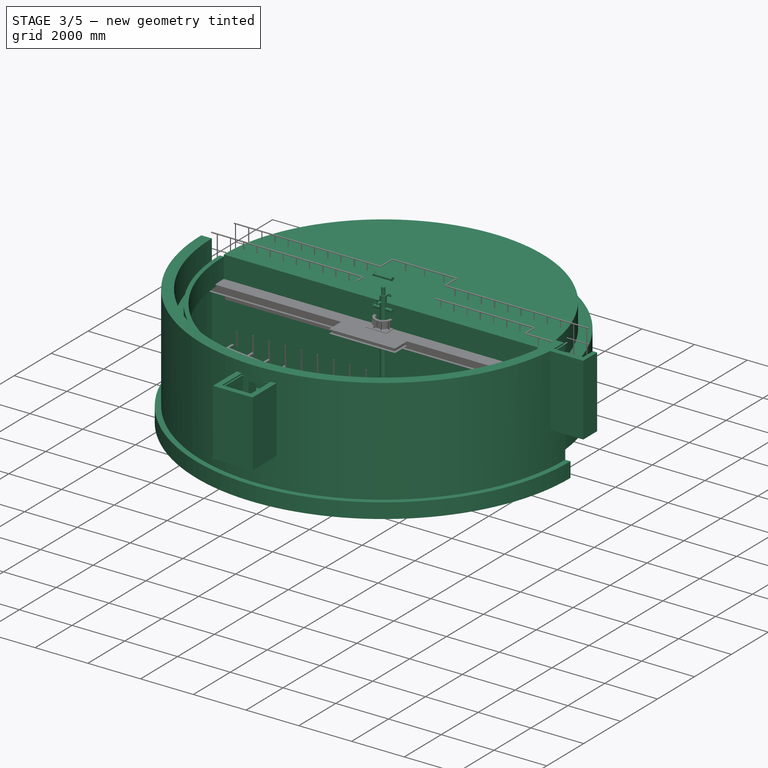
[diagram: stage 3 of 5 — iso view after this stage's code; geometry added in this stage tinted green]
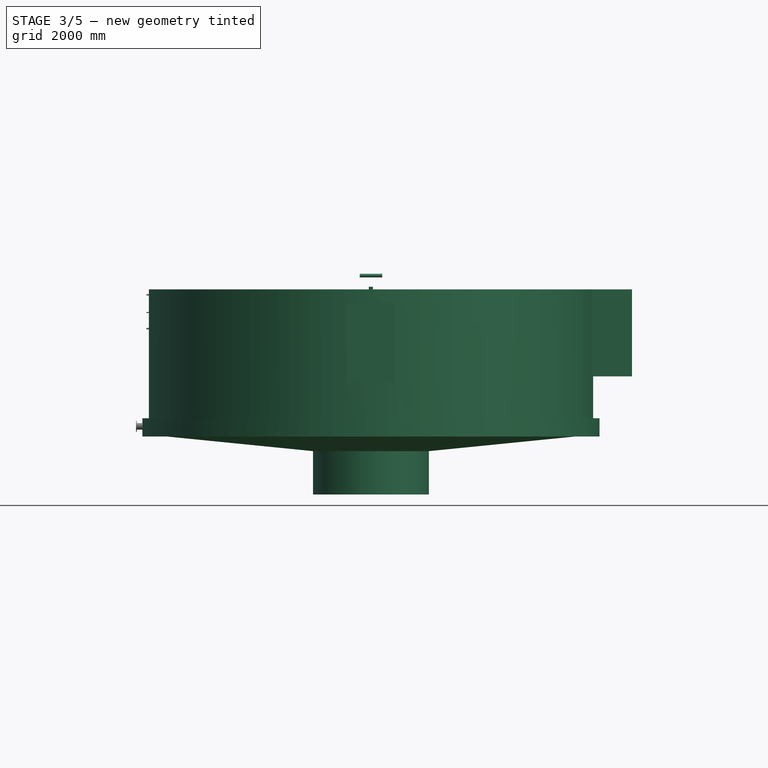
[diagram: stage 3 of 5 — front view after this stage's code; geometry added in this stage tinted green]
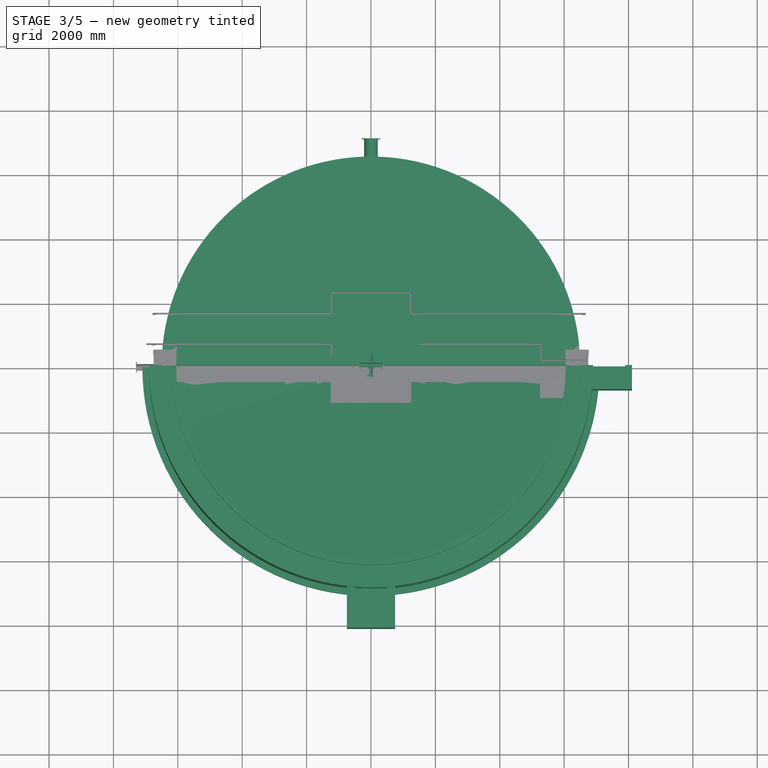
[diagram: stage 3 of 5 — top view after this stage's code; geometry added in this stage tinted green]
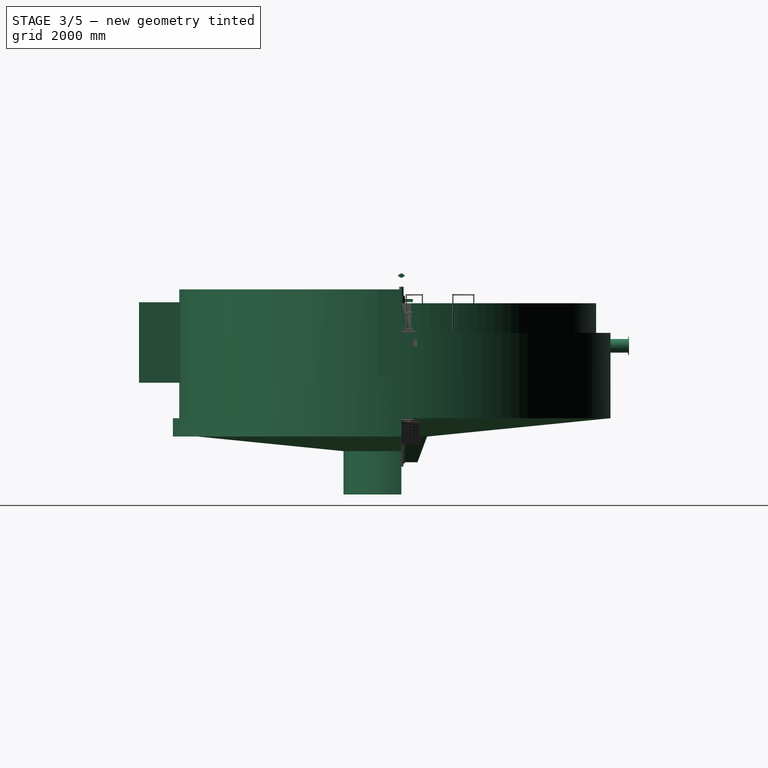
[diagram: stage 3 of 5 — right view after this stage's code; geometry added in this stage tinted green]
FEATURE [Sketcher::SketchObject] Sketch056
  FullyConstrained = true
  Placement = pos=(0,0,0) rot=(0.57735,0.57735,0.57735;2.0944rad)
  sketch-geometry (2):
    g0: Circle CenterX=0 CenterY=0 CenterZ=0 NormalX=0 NormalY=0 NormalZ=1 AngleXU=0 Radius=50
    g1: Circle CenterX=0 CenterY=0 CenterZ=0 NormalX=0 NormalY=0 NormalZ=1 AngleXU=0 Radius=57
  constraints (4):
    c: Coincident(g0,g-1)
    c: Coincident(g1,g0)
    c: Diameter(g1) = 114
    c: Diameter(g0) = 100
FEATURE [Part::Extrusion] Extrude042  label="Extrude046"
  Base = -> Sketch056
  Dir = (1,0,0)
  DirMode = 2
  FaceMakerClass = Part::FaceMakerBullseye
  LengthFwd = 700
  LengthRev = 0
  Solid = true
  Symmetric = true
FEATURE [Sketcher::SketchObject] Sketch057
  ExternalGeometry = -> [Extrude042]
  FullyConstrained = true
  MapMode = 5
  Placement = pos=(350,0,0) rot=(0.57735,0.57735,0.57735;2.0944rad)
  Support = -> [Extrude042]
  sketch-geometry (10):
    g0: LineSegment StartX=32.5 StartY=56.2917 StartZ=0 EndX=100 EndY=17.3205 EndZ=0
    g1: ArcOfCircle CenterX=90 CenterY=0 CenterZ=0 NormalX=0 NormalY=0 NormalZ=1 AngleXU=0 Radius=20 StartAngle=5.23599 EndAngle=7.33038
    g2: LineSegment StartX=100 StartY=-17.3205 StartZ=0 EndX=32.5 EndY=-56.2917 EndZ=0
    g3: ArcOfCircle CenterX=0 CenterY=0 CenterZ=0 NormalX=0 NormalY=0 NormalZ=1 AngleXU=0 Radius=65 StartAngle=4.18879 EndAngle=5.23599
    g4: LineSegment StartX=-32.5 StartY=-56.2917 StartZ=0 EndX=-100 EndY=-17.3205 EndZ=0
    g5: ArcOfCircle CenterX=-90 CenterY=0 CenterZ=0 NormalX=0 NormalY=0 NormalZ=1 AngleXU=0 Radius=20 StartAngle=2.0944 EndAngle=4.18879
    g6: LineSegment StartX=-100 StartY=17.3205 StartZ=0 EndX=-32.5 EndY=56.2917 EndZ=0
    g7: ArcOfCircle CenterX=0 CenterY=0 CenterZ=0 NormalX=0 NormalY=0 NormalZ=1 AngleXU=0 Radius=65 StartAngle=1.0472 EndAngle=2.0944
    g8: Circle CenterX=90 CenterY=0 CenterZ=0 NormalX=0 NormalY=0 NormalZ=1 AngleXU=0 Radius=10
    g9: Circle CenterX=-90 CenterY=0 CenterZ=0 NormalX=0 NormalY=0 NormalZ=1 AngleXU=0 Radius=10
  constraints (24):
    c: Tangent(g0,g1) = 1.5708
    c: Coincident(g1,g2)
    c: Tangent(g2,g3) = 1.5708
    c: Coincident(g3,g4)
    c: Tangent(g4,g5) = 1.5708
    c: Tangent(g6,g7) = 1.5708
    c: Coincident(g7,g0)
    c: Coincident(g8,g1)
    c: Coincident(g9,g5)
    c: Coincident(g-1,g3)
    c: Coincident(g-1,g7)
    c: Diameter(g8) = 20
    c: Equal(g8,g9)
    c: Radius(g1) = 20
    c: Equal(g1,g5)
    c: Symmetric(g5,g1,g3)
    c: PointOnObject(g5,g-1)
    c: Tangent(g5,g6) = 1.5708
    c: Equal(g0,g2)
    c: Equal(g2,g4)
    c: Equal(g4,g6)
    c: DistanceX(g3,g1) = 90
    c: Radius(g3) = 65
    c: Equal(g3,g7)
FEATURE [Part::Extrusion] Extrude043  label="Extrude047"
  Base = -> Sketch057
  Dir = (1,0,0)
  DirMode = 2
  FaceMakerClass = Part::FaceMakerBullseye
  LengthFwd = 9
  LengthRev = 0
  Solid = true
  Symmetric = false
FEATURE [Sketcher::SketchObject] Sketch058
  FullyConstrained = true
  Placement = pos=(0,0,0) rot=(0.57735,0.57735,0.57735;2.0944rad)
  sketch-geometry (2):
    g0: Circle CenterX=0 CenterY=0 CenterZ=0 NormalX=0 NormalY=0 NormalZ=1 AngleXU=0 Radius=50
    g1: Circle CenterX=0 CenterY=0 CenterZ=0 NormalX=0 NormalY=0 NormalZ=1 AngleXU=0 Radius=57
  constraints (4):
    c: Coincident(g0,g-1)
    c: Coincident(g1,g0)
    c: Diameter(g0) = 100
    c: Diameter(g1) = 114
FEATURE [Part::Extrusion] Extrude044  label="Extrude049"
  Base = -> Sketch058
  Dir = (1,0,0)
  DirMode = 2
  FaceMakerClass = Part::FaceMakerBullseye
  LengthFwd = 700
  LengthRev = 0
  Solid = true
  Symmetric = true
FEATURE [Sketcher::SketchObject] Sketch059
  ExternalGeometry = -> [Extrude044]
  FullyConstrained = false
  Placement = pos=(0,0,0) rot=(0.57735,0.57735,0.57735;2.0944rad)
  sketch-geometry (5):
    g0: LineSegment StartX=-47.753 StartY=31.1231 StartZ=0 EndX=-152.141 EndY=19.8851 EndZ=0
    g1: ArcOfCircle CenterX=-150 CenterY=0 CenterZ=0 NormalX=0 NormalY=0 NormalZ=1 AngleXU=0 Radius=20 StartAngle=1.67804 EndAngle=4.60515
    g2: LineSegment StartX=-152.141 StartY=-19.8851 StartZ=0 EndX=-47.753 EndY=-31.1231 EndZ=0
    g3: ArcOfCircle CenterX=0 CenterY=0 CenterZ=0 NormalX=0 NormalY=0 NormalZ=1 AngleXU=0 Radius=57 StartAngle=2.56399 EndAngle=3.7192
    g4: Circle CenterX=-150 CenterY=0 CenterZ=0 NormalX=0 NormalY=0 NormalZ=1 AngleXU=0 Radius=10
  constraints (12):
    c: Tangent(g0,g1) = -1.5708
    c: Coincident(g3,g2)
    c: Coincident(g3,g0)
    c: Coincident(g3,g-3)
    c: Radius(g3) = 57
    c: Horizontal(g1,g3)
    c: Vertical(g2,g0)
    c: Coincident(g4,g1)
    c: Radius(g4) = 10
    c: Radius(g1) = 20
    c: Tangent(g1,g2) = -1.5708
    c: DistanceX(g1,g3) = 150
FEATURE [Part::Extrusion] Extrude045  label="Extrude050"
  Base = -> Sketch059
  Dir = (1,0,0)
  DirMode = 2
  FaceMakerClass = Part::FaceMakerBullseye
  LengthFwd = 6
  LengthRev = 0
  Solid = true
  Symmetric = true
FEATURE [Sketcher::SketchObject] Sketch060
  FullyConstrained = true
  MapMode = 5
  Placement = pos=(350,0,0) rot=(0.57735,0.57735,0.57735;2.0944rad)
  Support = -> [Extrude044]
  sketch-geometry (1):
    g0: Circle CenterX=0 CenterY=0 CenterZ=0 NormalX=0 NormalY=0 NormalZ=1 AngleXU=0 Radius=57
  constraints (2):
    c: Coincident(g0,g-1)
    c: Radius(g0) = 57
FEATURE [Part::Extrusion] Extrude046  label="Extrude051"
  Base = -> Sketch060
  Dir = (1,0,0)
  DirMode = 2
  FaceMakerClass = Part::FaceMakerBullseye
  LengthFwd = 6
  LengthRev = 0
  Solid = true
  Symmetric = false
FEATURE [Part::Mirroring] Mirror022  label="Extrude005 (mirrored)"
  Base = (0,-400,0)
  Normal = (1,0,0)
  Source = -> Extrude046
FEATURE [Sketcher::SketchObject] Sketch061
  FullyConstrained = true
  sketch-geometry (5):
    g0: LineSegment StartX=350 StartY=-57 StartZ=0 EndX=270 EndY=-57 EndZ=0
    g1: LineSegment StartX=270 StartY=-57 StartZ=0 EndX=291.771 EndY=-105.229 EndZ=0
    g2: ArcOfCircle CenterX=310 CenterY=-97 CenterZ=0 NormalX=0 NormalY=0 NormalZ=1 AngleXU=0 Radius=20 StartAngle=3.56562 EndAngle=5.85915
    g3: LineSegment StartX=328.229 StartY=-105.229 StartZ=0 EndX=350 EndY=-57 EndZ=0
    g4: Circle CenterX=310 CenterY=-97 CenterZ=0 NormalX=0 NormalY=0 NormalZ=1 AngleXU=0 Radius=10
  constraints (13):
    c: Horizontal(g0)
    c: Coincident(g0,g1)
    c: Tangent(g1,g2) = -1.5708
    c: Coincident(g3,g0)
    c: Coincident(g4,g2)
    c: Diameter(g4) = 20
    c: Radius(g2) = 20
    c: DistanceX(g0,g0) = 80
    c: Distance(g2,g0) = 40
    c: Tangent(g2,g3) = -1.5708
    c: Equal(g1,g3)
    c: DistanceY(g0,g-1) = 57
    c: DistanceX(g-1,g0) = 350
FEATURE [Part::Extrusion] Extrude047  label="Extrude052"
  Base = -> Sketch061
  Dir = (0,0,1)
  DirMode = 2
  FaceMakerClass = Part::FaceMakerBullseye
  LengthFwd = 6
  LengthRev = 0
  Solid = true
  Symmetric = true
FEATURE [Part::Mirroring] Mirror023  label="Extrude006 (mirrored)"
  Base = (0,-500,0)
  Normal = (1,0,0)
  Source = -> Extrude047
FEATURE [Part::FeaturePython] Clone  label="Extrude061"  # Draft clone (typed FeaturePython)
  AttacherType = Attacher::AttachEngine3D
  Fuse = false
  Objects = -> [Extrude043]
  Placement = pos=(-25,0,0) rot=(0,0,1;0rad)
  Scale = (1,1,1)
FEATURE [Part::FeaturePython] Clone007  label="Extrude063"  # Draft clone (typed FeaturePython)
  AttacherType = Attacher::AttachEngine3D
  Fuse = false
  Objects = -> [Extrude043]
  Placement = pos=(-13,0,1000) rot=(0,0,1;0rad)
  Scale = (1,1,1)
FEATURE [Part::Mirroring] Mirror024  label="Extrude047 (mirrored)"
  Base = (0,0,0)
  Normal = (1,0,0)
  Source = -> Extrude043
FEATURE [Part::Mirroring] Mirror025  label="Extrude063 (mirrored)"
  Base = (0,0,0)
  Normal = (1,0,0)
  Source = -> Clone007
FEATURE [Part::Mirroring] Mirror026  label="Extrude061 (mirrored)"
  Base = (0,0,0)
  Normal = (1,0,0)
  Source = -> Clone
FEATURE [Part::Compound] Compound028  label="arm_rake"
  Links = -> [Extrude042,Extrude043,Clone,Mirror026,Mirror024]
  Placement = pos=(0,0,920) rot=(0,0,1;0rad)
  expr: .Placement.Base.z = <<Spreadsheet008>>.lk
FEATURE [App::Part] Part022  label="buffle"
  Group = -> [Spreadsheet007,AngleSteel004,Revolve011,Revolve010,Compound021,AngleSteel005,Compound020,Sketch047,Sketch048,Mirror021,Extrude041,Array006,Revolve009,Array007,Sketch046,Sketch045,Extrude040,Cut021,Compound037]
  Origin = -> Origin023
  Placement = pos=(0,0,919.54) rot=(0,0,1;0rad)
FEATURE [Part::FeaturePython] Clone006  label="Extrude062"  # Draft clone (typed FeaturePython)
  AttacherType = Attacher::AttachEngine3D
  Fuse = false
  Objects = -> [Extrude042]
  Placement = pos=(0,0,1000) rot=(0,0,1;0rad)
  Scale = (1,1,1)
FEATURE [Part::Compound] Compound038  label="arm_turnBackle"
  Links = -> [Clone007,Mirror025,Clone006]
  Placement = pos=(0,0,1000) rot=(0,0,1;0rad)
FEATURE [App::Part] Part006  label="feedWell"
  Group = -> [Part004,Part003,Part002,Compound001,Spreadsheet,Spreadsheet001,Part013,Part012,Compound015,Part016,Part017,Compound013,Compound014,Part015,Single_Flange_Length_Tube]
  Origin = -> Origin007
  Placement = pos=(0,0,-864.52) rot=(0,0,1;0rad)
FEATURE [Sketcher::SketchObject] Sketch085
  FullyConstrained = false
  sketch-geometry (4):
    g0: LineSegment StartX=-400 StartY=6050 StartZ=0 EndX=400 EndY=6050 EndZ=0
    g1: LineSegment StartX=400 StartY=6050 StartZ=0 EndX=400 EndY=6487.68 EndZ=0
    g2: LineSegment StartX=-400 StartY=6487.68 StartZ=0 EndX=-400 EndY=6050 EndZ=0
    g3: ArcOfCircle CenterX=-2.558e-13 CenterY=0 CenterZ=0 NormalX=0 NormalY=0 NormalZ=1 AngleXU=0 Radius=6500 StartAngle=1.50922 EndAngle=1.63237
  constraints (8):
    c: Coincident(g0,g1)
    c: Coincident(g2,g0)
    c: Vertical(g1)
    c: Vertical(g2)
    c: Distance(g0) = 800
    c: Symmetric(g0,g0,g-2)
    c: Coincident(g3,g2)
    c: Coincident(g3,g1)
FEATURE [Part::Extrusion] Extrude067
  Base = -> Sketch085
  Dir = (0,0,1)
  DirMode = 2
  FaceMakerClass = Part::FaceMakerBullseye
  LengthFwd = 800
  LengthRev = 0
  Placement = pos=(0,0,-181) rot=(0,0,1;0rad)
  Solid = true
  Symmetric = true
FEATURE [Part::MultiFuse] Fusion003
  Shapes = -> [Part__Feature,Extrude067]
FEATURE [Sketcher::SketchObject] Sketch
  ExternalGeometry = -> [Fusion003]
  FullyConstrained = false
  MapMode = 5
  Placement = pos=(0,6050,0) rot=(1,0,0;1.5708rad)
  Support = -> [Fusion003]
  sketch-geometry (1):
    g0: Circle CenterX=0 CenterY=-181 CenterZ=0 NormalX=0 NormalY=0 NormalZ=1 AngleXU=0 Radius=174.28
  constraints (2):
    c: PointOnObject(g0,g-2)
    c: Distance(g0,g-3) = 400
FEATURE [Part::Extrusion] Extrude068
  Base = -> Sketch
  Dir = (0,-1,2e-16)
  DirMode = 2
  FaceMakerClass = Part::FaceMakerBullseye
  LengthFwd = 1000
  LengthRev = 0
  Reversed = true
  Solid = true
  Symmetric = false
FEATURE [Part::Cut] Cut027  label="body001"
  Base = -> Fusion003
  Tool = -> Extrude068
FEATURE [Part::FeaturePython] Slice  # WARN: FeaturePython — macro-defined, semantics opaque (R4)
  Base = -> Cut027
  Mode = 1
  Tolerance = 0
  Tools = -> [Face]
FEATURE [Part::FeaturePython] Slice_child0  label="Slice.0"  # WARN: FeaturePython — macro-defined, semantics opaque (R4)
  Base = -> Slice
  FilterType = 1
  Invert = false
  OverrideMaxVal = 0
  WindowFrom = 80
  WindowTo = 100
  items = 0
FEATURE [Part::FeaturePython] Slice_child1  label="Slice.1"  # WARN: FeaturePython — macro-defined, semantics opaque (R4)
  Base = -> Slice
  FilterType = 1
  Invert = false
  OverrideMaxVal = 0
  WindowFrom = 80
  WindowTo = 100
  items = 1
FEATURE [App::DocumentObjectGroup] GrExplode_Slice  label="Exploded Slice"
  Group = -> [Slice_child0,Slice_child1]
FEATURE [Sketcher::SketchObject] Sketch086
  ExternalGeometry = -> [Slice_child1]
  FullyConstrained = true
  Placement = pos=(0,0,0) rot=(1,0,0;1.5708rad)
  sketch-geometry (8):
    g0: LineSegment StartX=-6050 StartY=1140 StartZ=0 EndX=-6050 EndY=220 EndZ=0
    g1: LineSegment StartX=-6050 StartY=220 StartZ=0 EndX=-6500 EndY=220 EndZ=0
    g2: LineSegment StartX=-6500 StartY=220 StartZ=0 EndX=-6500 EndY=-2430 EndZ=0
    g3: LineSegment StartX=-6500 StartY=-2430 StartZ=0 EndX=-800 EndY=-3000 EndZ=0
    g4: LineSegment StartX=-800 StartY=-3000 StartZ=0 EndX=-500 EndY=-3800 EndZ=0
    g5: LineSegment StartX=-500 StartY=-3800 StartZ=0 EndX=0 EndY=-3800 EndZ=0
    g6: LineSegment StartX=0 StartY=-3800 StartZ=0 EndX=0 EndY=1140 EndZ=0
    g7: LineSegment StartX=0 StartY=1140 StartZ=0 EndX=-6050 EndY=1140 EndZ=0
  constraints (21):
    c: Vertical(g0)
    c: Coincident(g0,g1)
    c: Horizontal(g1)
    c: Coincident(g1,g2)
    c: Vertical(g2)
    c: Coincident(g2,g3)
    c: Coincident(g3,g4)
    c: Coincident(g4,g5)
    c: PointOnObject(g5,g-2)
    c: Horizontal(g5)
    c: Coincident(g5,g6)
    c: PointOnObject(g6,g-2)
    c: Coincident(g6,g7)
    c: Coincident(g7,g0)
    c: Horizontal(g7)
    c: DistanceY(g-3,g0) = 70
    c: PointOnObject(g0,g-3)
    c: PointOnObject(g-3,g1)
    c: Coincident(g4,g-7)
    c: Coincident(g3,g-6)
    c: Coincident(g2,g-5)
FEATURE [Part::Revolution] Revolve
  Angle = -180
  Axis = (0,0,1)
  Base = (0,0,1)
  FaceMakerClass = Part::FaceMakerBullseye
  Solid = true
  Source = -> Sketch086
  Symmetric = false
FEATURE [Sketcher::SketchObject] Sketch087
  FullyConstrained = false
  Placement = pos=(0,0,0) rot=(1,0,0;1.5708rad)
  sketch-geometry (4):
    g0: LineSegment StartX=0 StartY=-3800.05 StartZ=0 EndX=500.355 EndY=-3800.05 EndZ=0
    g1: LineSegment StartX=500.355 StartY=-3800.05 StartZ=0 EndX=519.186 EndY=-3747.76 EndZ=0
    g2: LineSegment StartX=519.186 StartY=-3747.76 StartZ=0 EndX=0 EndY=-3747.76 EndZ=0
    g3: LineSegment StartX=0 StartY=-3747.76 StartZ=0 EndX=0 EndY=-3800.05 EndZ=0
  constraints (8):
    c: Horizontal(g0)
    c: Coincident(g0,g1)
    c: Coincident(g1,g2)
    c: PointOnObject(g2,g-2)
    c: Horizontal(g2)
    c: Coincident(g2,g3)
    c: Coincident(g3,g0)
    c: PointOnObject(g0,g-2)
FEATURE [Part::Revolution] Revolve014
  Angle = 180
  Axis = (0,0,1)
  Base = (0,0,1)
  FaceMakerClass = Part::FaceMakerBullseye
  Solid = true
  Source = -> Sketch087
  Symmetric = false
FEATURE [App::Part] _3_0_______v45  label="body_13.0m"
  Group = -> [Sketch001,Face,Extrude067,Fusion003,Part__Feature,Extrude068,Sketch085,Sketch,Cut027,Slice_child0,Slice_child1,Slice,GrExplode_Slice,Sketch086,Revolve,Sketch087,Revolve014]
  Origin = -> Origin002
FEATURE [Part::FeaturePython] mainShaft_001  # a2plus imported part (geometry in sourceFile) (typed FeaturePython)
  Placement = pos=(0,0,-232.22) rot=(0,0,1;0rad)
  a2p_Version = 0.4.60n
  fixedPosition = false
  localSourceObject = Compound039
  objectType = a2pPart
  sourceFile = converted
  subassemblyImport = false
  timeLastImport = 1.70969e+09
  updateColors = true
FEATURE [Part::FeaturePython] Flange_Length_Tube  # WARN: FeaturePython — macro-defined, semantics opaque (R4)
  Fittings = 00_Flange Length Tube
  L0 = 1200
  Placement = pos=(-1.304e-12,5871,-181.414) rot=(0,0,1;1.5708rad)
  dia = 7
  mass = 703.72
FEATURE [Part::FeaturePython] Flange001  # WARN: FeaturePython — macro-defined, semantics opaque (R4)
  Placement = pos=(0,1171.88,2.6e-13) rot=(1,0,0;1.5708rad)
  dia = 8
  fittings = 00_Flange
  material = 0
  standard = 1
FEATURE [Part::FeaturePython] Elbow  # WARN: FeaturePython — macro-defined, semantics opaque (R4)
  Placement = pos=(1.43e-13,1165.03,0) rot=(0,0,1;3.14159rad)
  dia = 16
  fittings = 01_Elbow
  material = 0
  standard = 0
FEATURE [Part::MultiFuse] Fusion004
  Placement = pos=(9.2e-15,41.509,-179.38) rot=(0,0,1;0rad)
  Shapes = -> [Elbow,Flange001]
FEATURE [Part::FeaturePython] Flange_Length_Tube002  # WARN: FeaturePython — macro-defined, semantics opaque (R4)
  Fittings = 00_Flange Length Tube
  L0 = 4355
  Placement = pos=(-3.36e-13,1515.17,-181) rot=(0,0,1;1.5708rad)
  dia = 7
  mass = 2439.29
FEATURE [Part::FeaturePython] Flange_Length_Tube003  # WARN: FeaturePython — macro-defined, semantics opaque (R4)
  Fittings = 00_Flange Length Tube
  L0 = 300
  Placement = pos=(1e-15,1214.61,-179) rot=(0,0,1;1.5708rad)
  dia = 7
  mass = 208.63
FEATURE [Part::Compound] Compound042  label="inflowPipe"
  Links = -> [Flange_Length_Tube,Fusion004,Flange_Length_Tube002,Flange_Length_Tube003]
FEATURE [Spreadsheet::Sheet] Spreadsheet011
  cells = A2='rodDia dia; B2(dia)=12; C2='thickness; D2(t0)=6; A3='length L0; B3(L0)=2700; C3='l1; D3(l1)==L0 - (dia * 5 + 500); B4='l; C4='l1; D4='a; E4='b; F4='c; G4='e; H4='f; I4='g; J4='h; K4='i; L4='r; A5='forkEndR; B5=80; D5=25; E5=10; F5=14; G5=16; H5=13; I5=40; J5=5; K5=13; L5=15; A6='turnBackle; B6=100; C6=20; D6=30; E6=16; F6=22; A7='forkEndL; B7=60; D7=25; E7=10; F7=13; G7=16; H7=13; I7=20; L7=15; A8=1; B8=2; C8=3; D8=4; E8=5; F8=6; G8=7; H8=8; I8=9; J8=10; K8=11; L8=12; A9='turnBackle; A10='d; B10='l; C10='l1; D10='a; E10='b; F10='c; G10='t0; A11=10; B11=75; C11=15; D11=24; E11=13; F11=17; G11=6; A12=12; B12=100; C12=20; D12=30; E12=16; F12=22; G12=6; A13=16; B13=125; C13=24; D13=36; E13=20; F13=27; G13=9; A14=20; B14=150; C14=28; D14=42; E14=23; F14=33; G14=9; A15=22; B15=175; C15=33; D15=48; E15=27; F15=37; G15=9; A16=24; B16=200; C16=38; D16=54; E16=30; F16=42; G16=12; A17=30; B17=250; C17=47; D17=66; E17=37; F17=52; G17=12; A18='forkEnd_L; A19='d; B19='l; C19='a; D19='b; E19='c; F19='e; G19='f; H19='g; I19='r; A20=10; B20=50; C20=20; D20=7; E20=10; F20=12; G20=10; H20=15; I20=12; A21=12; B21=60; C21=25; D21=10; E21=13; F21=16; G21=13; H21=20; I21=15; A22=16; B22=75; C22=30; D22=13; E22=16; F22=20; G22=16; H22=25; I22=19; A23=20; B23=90; C23=40; D23=16; E23=20; F23=24; G23=20; H23=30; I23=23; A24=22; B24=100; C24=45; D24=20; E24=23; F24=28; G24=23; H24=35; I24=27; A25=24; B25=115; C25=50; D25=23; E25=26; F25=32; G25=26; H25=40; I25=30; A26=30; B26=140; C26=65; D26=30; E26=33; F26=40; G26=33; H26=50; I26=38; A27='forkEnd_R; A28='d; B28='l; C28='a; D28='b; E28='c; F28='r; G28='e; H28='f; I28='g; J28='h; K28='i; A29=10; +76 more cells
FEATURE [Sketcher::SketchObject] Sketch088
  FullyConstrained = true
  Placement = pos=(0,0,0) rot=(1,0,0;1.5708rad)
  expr: Constraints[11] = Spreadsheet011.I5 + Spreadsheet011.dia * 2
  expr: Constraints[1] = Spreadsheet011.F5 / 2
  expr: Constraints[3] = Spreadsheet011.L5
  sketch-geometry (5):
    g0: Circle CenterX=0 CenterY=0 CenterZ=0 NormalX=0 NormalY=0 NormalZ=1 AngleXU=0 Radius=7
    g1: ArcOfCircle CenterX=0 CenterY=0 CenterZ=0 NormalX=0 NormalY=0 NormalZ=1 AngleXU=0 Radius=15 StartAngle=4.71239 EndAngle=7.85398
    g2: LineSegment StartX=-4.87e-14 StartY=15 StartZ=0 EndX=-64 EndY=15 EndZ=0
    g3: LineSegment StartX=-64 StartY=15 StartZ=0 EndX=-64 EndY=-15 EndZ=0
    g4: LineSegment StartX=-64 StartY=-15 StartZ=0 EndX=0 EndY=-15 EndZ=0
  constraints (12):
    c: Coincident(g0,g-1)
    c: Radius(g0) = 7
    c: Coincident(g1,g0)
    c: Radius(g1) = 15
    c: Horizontal(g2)
    c: Coincident(g2,g3)
    c: Vertical(g3)
    c: Coincident(g3,g4)
    c: Horizontal(g4)
    c: Tangent(g1,g2) = -1.5708
    c: Tangent(g1,g4) = -1.5708
    c: Distance(g2) = 64
FEATURE [Part::Cylinder] Cylinder009  label="円柱005"
  Angle = 360
  AttacherType = Attacher::AttachEngine3D
  FirstAngle = 0
  Height = 500
  Placement = pos=(-24,0,0) rot=(0,-1,0;1.5708rad)
  Radius = 6
  SecondAngle = 0
  expr: .Placement.Base.x = -Spreadsheet011.dia * 2
  expr: Radius = Spreadsheet011.dia / 2
FEATURE [Sketcher::SketchObject] Sketch089
  FullyConstrained = true
  Placement = pos=(0,0,0) rot=(1,0,0;1.5708rad)
  expr: Constraints[10] = Spreadsheet011.C6
  expr: Constraints[11] = Spreadsheet011.B6
  expr: Constraints[12] = Spreadsheet011.D6 / 2
  expr: Constraints[13] = Spreadsheet011.F6 / 2
  expr: Constraints[14] = Spreadsheet011.B6 / 2
  expr: Constraints[17] = Spreadsheet011.C6
  sketch-geometry (6):
    g0: LineSegment StartX=-50 StartY=0 StartZ=0 EndX=-50 EndY=11 EndZ=0
    g1: LineSegment StartX=-50 StartY=11 StartZ=0 EndX=-30 EndY=15 EndZ=0
    g2: LineSegment StartX=-30 StartY=15 StartZ=0 EndX=30 EndY=15 EndZ=0
    g3: LineSegment StartX=30 StartY=15 StartZ=0 EndX=50 EndY=11 EndZ=0
    g4: LineSegment StartX=50 StartY=11 StartZ=0 EndX=50 EndY=0 EndZ=0
    g5: LineSegment StartX=50 StartY=0 StartZ=0 EndX=-50 EndY=0 EndZ=0
  constraints (18):
    c: PointOnObject(g0,g-1)
    c: Vertical(g0)
    c: Coincident(g0,g1)
    c: Coincident(g1,g2)
    c: Horizontal(g2)
    c: Coincident(g2,g3)
    c: Coincident(g3,g4)
    c: PointOnObject(g4,g-1)
    c: Vertical(g4)
    c: Coincident(g4,g5)
    c: DistanceX(g2,g3) = 20
    c: DistanceX(g0,g3) = 100
    c: Distance(g1,g5) = 15
    c: Distance(g4) = 11
    c: DistanceX(g-1,g4) = 50
    c: Horizontal(g0,g3)
    c: Coincident(g5,g0)
    c: DistanceX(g0,g1) = 20
FEATURE [Part::Revolution] Revolve015
  Angle = 360
  Axis = (-1,0,0)
  AxisLink = -> Sketch089 [Edge6]
  Base = (-50,0,0)
  FaceMakerClass = Part::FaceMakerBullseye
  Solid = true
  Source = -> Sketch089
  Symmetric = false
FEATURE [Sketcher::SketchObject] Sketch090
  FullyConstrained = false
  Placement = pos=(0,0,0) rot=(0.57735,0.57735,0.57735;2.0944rad)
  expr: Constraints[16] = Spreadsheet011.F6
  expr: Constraints[17] = Spreadsheet011.F6 / 2
  sketch-geometry (8):
    g0: LineSegment StartX=-11 StartY=39.685 StartZ=0 EndX=-26 EndY=39.685 EndZ=0
    g1: LineSegment StartX=-26 StartY=39.685 StartZ=0 EndX=-26 EndY=-39.3666 EndZ=0
    g2: LineSegment StartX=-26 StartY=-39.3666 StartZ=0 EndX=-11 EndY=-39.3666 EndZ=0
    g3: LineSegment StartX=-11 StartY=-39.3666 StartZ=0 EndX=-11 EndY=39.685 EndZ=0
    g4: LineSegment StartX=11 StartY=39.685 StartZ=0 EndX=26 EndY=39.685 EndZ=0
    g5: LineSegment StartX=26 StartY=39.685 StartZ=0 EndX=26 EndY=-40.315 EndZ=0
    g6: LineSegment StartX=26 StartY=-40.315 StartZ=0 EndX=11 EndY=-40.315 EndZ=0
    g7: LineSegment StartX=11 StartY=-40.315 StartZ=0 EndX=11 EndY=39.685 EndZ=0
  constraints (22):
    c: Coincident(g0,g1)
    c: Coincident(g1,g2)
    c: Coincident(g2,g3)
    c: Coincident(g3,g0)
    c: Horizontal(g0)
    c: Horizontal(g2)
    c: Vertical(g1)
    c: Vertical(g3)
    c: Coincident(g4,g5)
    c: Coincident(g5,g6)
    c: Coincident(g6,g7)
    c: Coincident(g7,g4)
    c: Horizontal(g4)
    c: Horizontal(g6)
    c: Vertical(g5)
    c: Vertical(g7)
    c: DistanceX(g0,g4) = 22
    c: Distance(g-1,g7) = 11
    c: Distance(g5) = 80
    c: Distance(g4) = 15
    c: Distance(g0) = 15
    c: Horizontal(g0,g4)
FEATURE [Part::Extrusion] Extrude069
  Base = -> Sketch090
  Dir = (1,0,0)
  DirMode = 2
  FaceMakerClass = Part::FaceMakerBullseye
  LengthFwd = 300
  LengthRev = 0
  Solid = true
  Symmetric = true
FEATURE [Part::Cut] Cut028
  Base = -> Revolve015
  Tool = -> Extrude069
FEATURE [Sketcher::SketchObject] Sketch091
  FullyConstrained = true
  Placement = pos=(0,0,0) rot=(1,0,0;1.5708rad)
  expr: Constraints[17] = Spreadsheet011.E6
  expr: Constraints[18] = Spreadsheet011.B6 - 2 * Spreadsheet011.C6
  expr: Constraints[19] = (Spreadsheet011.B6 - 2 * Spreadsheet011.C6) / 2
  expr: Constraints[20] = Spreadsheet011.E6 / 2
  sketch-geometry (9):
    g0: LineSegment StartX=30 StartY=3 StartZ=0 EndX=30 EndY=-3 EndZ=0
    g1: LineSegment StartX=25 StartY=-8 StartZ=0 EndX=-25 EndY=-8 EndZ=0
    g2: LineSegment StartX=-30 StartY=-3 StartZ=0 EndX=-30 EndY=3 EndZ=0
    g3: LineSegment StartX=-25 StartY=8 StartZ=0 EndX=25 EndY=8 EndZ=0
    g4: GeomPoint X=0 Y=0 Z=0
    g5: ArcOfCircle CenterX=-25 CenterY=3 CenterZ=0 NormalX=0 NormalY=0 NormalZ=1 AngleXU=0 Radius=5 StartAngle=1.5708 EndAngle=3.14159
    g6: ArcOfCircle CenterX=-25 CenterY=-3 CenterZ=0 NormalX=0 NormalY=0 NormalZ=1 AngleXU=0 Radius=5 StartAngle=3.14159 EndAngle=4.71239
    g7: ArcOfCircle CenterX=25 CenterY=-3 CenterZ=0 NormalX=0 NormalY=0 NormalZ=1 AngleXU=0 Radius=5 StartAngle=4.71239 EndAngle=6.28319
    g8: ArcOfCircle CenterX=25 CenterY=3 CenterZ=0 NormalX=0 NormalY=0 NormalZ=1 AngleXU=0 Radius=5 StartAngle=-4.09e-14 EndAngle=1.5708
  constraints (21):
    c: Horizontal(g1)
    c: Horizontal(g3)
    c: Vertical(g0)
    c: Vertical(g2)
    c: Coincident(g4,g-1)
    c: Tangent(g3,g5) = 1.5708
    c: Tangent(g2,g5) = 1.5708
    c: Tangent(g1,g6) = 1.5708
    c: Tangent(g2,g6) = 1.5708
    c: Tangent(g1,g7) = 1.5708
    c: Tangent(g0,g7) = 1.5708
    c: Tangent(g0,g8) = 1.5708
    c: Tangent(g3,g8) = 1.5708
    c: Radius(g8) = 5
    c: Equal(g8,g7)
    c: Equal(g7,g6)
    c: Equal(g6,g5)
    c: DistanceY(g1,g3) = 16
    c: DistanceX(g2,g0) = 60
    c: Distance(g4,g2) = 30
    c: Distance(g4,g1) = 8
FEATURE [Part::Extrusion] Extrude070  label="Extrude081"
  Base = -> Sketch091
  Dir = (0,-1,2e-16)
  DirMode = 2
  FaceMakerClass = Part::FaceMakerBullseye
  LengthFwd = 60
  LengthRev = 0
  Solid = true
  Symmetric = true
FEATURE [Part::Cut] Cut029
  Base = -> Cut028
  Tool = -> Extrude070
FEATURE [Sketcher::SketchObject] Sketch092
  FullyConstrained = true
  Placement = pos=(0,0,0) rot=(0.57735,0.57735,0.57735;2.0944rad)
  expr: Constraints[1] = Spreadsheet011.dia / 2
  sketch-geometry (1):
    g0: Circle CenterX=0 CenterY=0 CenterZ=0 NormalX=0 NormalY=0 NormalZ=1 AngleXU=0 Radius=6
  constraints (2):
    c: Coincident(g0,g-1)
    c: Radius(g0) = 6
FEATURE [Part::Extrusion] Extrude071  label="Extrude082"
  Base = -> Sketch092
  Dir = (1,0,0)
  DirMode = 2
  FaceMakerClass = Part::FaceMakerBullseye
  LengthFwd = 300
  LengthRev = 0
  Solid = true
  Symmetric = true
FEATURE [Part::Cut] Cut030  label="turnBackle005"
  Base = -> Cut029
  Placement = pos=(-530,0,0) rot=(0,0,1;0rad)
  Tool = -> Extrude071
  expr: .Placement.Base.x = -(Spreadsheet011.dia * 2.5 + 500)
FEATURE [Part::Cylinder] Cylinder010  label="rod007"
  Angle = 360
  AttacherType = Attacher::AttachEngine3D
  FirstAngle = 0
  Height = 2140
  Placement = pos=(-523,0,-1.37e-13) rot=(0,-1,0;1.5708rad)
  Radius = 6
  SecondAngle = 0
  expr: Height = Spreadsheet011.l1
  expr: Radius = Spreadsheet011.dia / 2
FEATURE [Part::Extrusion] Extrude072  label="Extrude083"
  Base = -> Sketch088
  Dir = (0,-1,2e-16)
  DirMode = 2
  FaceMakerClass = Part::FaceMakerBullseye
  LengthFwd = 6
  LengthRev = 0
  Placement = pos=(0,9,0) rot=(0,0,1;0rad)
  Solid = true
  Symmetric = true
  expr: .Placement.Base.y = Spreadsheet011.dia / 2 + Spreadsheet011.t0 / 2
  expr: LengthFwd = Spreadsheet011.t0
FEATURE [Part::FeaturePython] Clone012  label="Extrude084"  # Draft clone (typed FeaturePython)
  AttacherType = Attacher::AttachEngine3D
  Fuse = false
  Objects = -> [Extrude072]
  Placement = pos=(-2700,9,0) rot=(0,1,0;3.14159rad)
  Scale = (1,1,1)
  expr: .Placement.Base.x = -Spreadsheet011.L0
  expr: .Placement.Base.y = Spreadsheet011.t0 / 2 + Spreadsheet011.dia / 2
FEATURE [App::Part] Part001  label="TurnBackleB"
  Group = -> [Spreadsheet011,Sketch088,Cylinder009,Extrude072,Revolve015,Sketch090,Cut029,Cut028,Extrude069,Extrude070,Extrude071,Sketch091,Sketch089,Sketch092,Cut030,Cylinder010,Clone012]
  Origin = -> Origin037
  Placement = pos=(-325.023,-308.241,750.08) rot=(-0.998787,0.034757,-0.034878;1.5755rad)
FEATURE [Part::Mirroring] Mirror028  label="TurnBackleB (mirrored)"
  Base = (-2200,-1.347e-13,0)
  Normal = (1e-16,-1,0)
  Source = -> Part001
FEATURE [Part::Feature] Part__Feature007  label="7926A5 Inner ring"
  shape: bbox 24 x 167.8 x 167.8 mm, 8 faces (baked)
FEATURE [Part::Feature] Part__Feature008  label="7926A5 Outer ring"
  shape: bbox 24 x 194.8 x 194.8 mm, 8 faces (baked)
FEATURE [Part::Feature] Part__Feature009  label="7926A5 Ball"
  Placement = pos=(12,77.5,0) rot=(0,0,1;3.14159rad)
  shape: bbox 13.75 x 13.75 x 13.75 mm, 1 faces (baked)
FEATURE [Part::Feature] Part__Feature010  label="7926A5 Ball001"
  Placement = pos=(12,70.7998,31.5221) rot=(0,0,1;3.14159rad)
  shape: bbox 13.75 x 13.75 x 13.75 mm, 1 faces (baked)
FEATURE [Part::Feature] Part__Feature011  label="7926A5 Ball002"
  Placement = pos=(12,51.8576,57.5937) rot=(0,0,1;3.14159rad)
  shape: bbox 13.75 x 13.75 x 13.75 mm, 1 faces (baked)
FEATURE [Part::Feature] Part__Feature012  label="7926A5 Ball003"
  Placement = pos=(12,23.9488,73.7069) rot=(0,0,1;3.14159rad)
  shape: bbox 13.75 x 13.75 x 13.75 mm, 1 faces (baked)
FEATURE [Part::Feature] Part__Feature013  label="7926A5 Ball004"
  Placement = pos=(12,-8.10096,77.0754) rot=(0,0,1;3.14159rad)
  shape: bbox 13.75 x 13.75 x 13.75 mm, 1 faces (baked)
FEATURE [Part::Feature] Part__Feature014  label="7926A5 Ball005"
  Placement = pos=(12,-38.75,67.117) rot=(0,0,1;3.14159rad)
  shape: bbox 13.75 x 13.75 x 13.75 mm, 1 faces (baked)
FEATURE [Part::Feature] Part__Feature015  label="7926A5 Ball006"
  Placement = pos=(12,-62.6988,45.5534) rot=(0,0,1;3.14159rad)
  shape: bbox 13.75 x 13.75 x 13.75 mm, 1 faces (baked)
FEATURE [Part::Feature] Part__Feature016  label="7926A5 Ball007"
  Placement = pos=(12,-75.8064,16.1132) rot=(0,0,1;3.14159rad)
  shape: bbox 13.75 x 13.75 x 13.75 mm, 1 faces (baked)
FEATURE [Part::Feature] Part__Feature017  label="7926A5 Ball008"
  Placement = pos=(12,-75.8064,-16.1132) rot=(0,0,1;3.14159rad)
  shape: bbox 13.75 x 13.75 x 13.75 mm, 1 faces (baked)
FEATURE [Part::Feature] Part__Feature018  label="7926A5 Ball009"
  Placement = pos=(12,-62.6988,-45.5534) rot=(0,0,1;3.14159rad)
  shape: bbox 13.75 x 13.75 x 13.75 mm, 1 faces (baked)
FEATURE [Part::Feature] Part__Feature019  label="7926A5 Ball010"
  Placement = pos=(12,-38.75,-67.117) rot=(0,0,1;3.14159rad)
  shape: bbox 13.75 x 13.75 x 13.75 mm, 1 faces (baked)
FEATURE [Part::Feature] Part__Feature020  label="7926A5 Ball011"
  Placement = pos=(12,-8.10096,-77.0754) rot=(0,0,1;3.14159rad)
  shape: bbox 13.75 x 13.75 x 13.75 mm, 1 faces (baked)
FEATURE [Part::Feature] Part__Feature021  label="7926A5 Ball012"
  Placement = pos=(12,23.9488,-73.7069) rot=(0,0,1;3.14159rad)
  shape: bbox 13.75 x 13.75 x 13.75 mm, 1 faces (baked)
FEATURE [Part::Feature] Part__Feature022  label="7926A5 Ball013"
  Placement = pos=(12,51.8576,-57.5937) rot=(0,0,1;3.14159rad)
  shape: bbox 13.75 x 13.75 x 13.75 mm, 1 faces (baked)
FEATURE [Part::Feature] Part__Feature023  label="7926A5 Ball014"
  Placement = pos=(12,70.7998,-31.5221) rot=(0,0,1;3.14159rad)
  shape: bbox 13.75 x 13.75 x 13.75 mm, 1 faces (baked)
FEATURE [Part::Compound] Compound043  label="Compound"
  Links = -> [Part__Feature007,Part__Feature008,Part__Feature009,Part__Feature010,Part__Feature011,Part__Feature012,Part__Feature013,Part__Feature014,Part__Feature015,Part__Feature016,Part__Feature017,Part__Feature018,Part__Feature019,Part__Feature020,Part__Feature021,Part__Feature022,Part__Feature023]
FEATURE [Sketcher::SketchObject] Sketch094
  FullyConstrained = true
  MapMode = 5
  Placement = pos=(0,0,0) rot=(1,0,0;1.5708rad)
  Support = -> [XZ_Plane041]
  sketch-geometry (8):
    g0: LineSegment StartX=65 StartY=-272 StartZ=0 EndX=65 EndY=28 EndZ=0
    g1: LineSegment StartX=65 StartY=28 StartZ=0 EndX=70 EndY=28 EndZ=0
    g2: LineSegment StartX=70 StartY=28 StartZ=0 EndX=70 EndY=35 EndZ=0
    g3: LineSegment StartX=70 StartY=35 StartZ=0 EndX=65 EndY=35 EndZ=0
    g4: LineSegment StartX=65 StartY=35 StartZ=0 EndX=65 EndY=325 EndZ=0
    g5: LineSegment StartX=65 StartY=325 StartZ=0 EndX=0 EndY=325 EndZ=0
    g6: LineSegment StartX=0 StartY=325 StartZ=0 EndX=0 EndY=-272 EndZ=0
    g7: LineSegment StartX=0 StartY=-272 StartZ=0 EndX=65 EndY=-272 EndZ=0
  constraints (24):
    c: Vertical(g0)
    c: Coincident(g0,g1)
    c: Horizontal(g1)
    c: Coincident(g1,g2)
    c: Vertical(g2)
    c: Coincident(g2,g3)
    c: Coincident(g3,g4)
    c: Vertical(g4)
    c: Coincident(g4,g5)
    c: Horizontal(g5)
    c: Coincident(g5,g6)
    c: Vertical(g6)
    c: Coincident(g6,g7)
    c: Horizontal(g7)
    c: Horizontal(g3)
    c: DistanceY(g2,g2) = 7
    c: DistanceX(g5,g5) = 65
    c: DistanceX(g3,g3) = 5
    c: Vertical(g3,g0)
    c: PointOnObject(g5,g-2)
    c: DistanceY(g-1,g0) = 28
    c: DistanceY(g4,g4) = 290
    c: Coincident(g0,g7)
    c: DistanceY(g0,g0) = 300
FEATURE [PartDesign::Revolution] Revolution005
  Angle = 360
  Axis = (0,-2e-16,1)
  Base = (0,0,0)
  Placement = pos=(0,0,0) rot=(1,0,0;1.5708rad)
  Profile = -> Sketch094
  ReferenceAxis = -> Sketch094 [V_Axis]
  Reversed = true
FEATURE [PartDesign::Body] Body005  label="shaft"
  Group = -> [Sketch094,Revolution005]
  Origin = -> Origin041
  Tip = -> Revolution005
FEATURE [Sketcher::SketchObject] Sketch095
  FullyConstrained = false
  MapMode = 5
  Placement = pos=(0,0,0) rot=(1,0,0;1.5708rad)
  Support = -> [XZ_Plane042]
  sketch-geometry (12):
    g0: LineSegment StartX=90 StartY=28 StartZ=0 EndX=110 EndY=28 EndZ=0
    g1: LineSegment StartX=110 StartY=28 StartZ=0 EndX=110 EndY=38 EndZ=0
    g2: LineSegment StartX=110 StartY=38 StartZ=0 EndX=90 EndY=38 EndZ=0
    g3: LineSegment StartX=90 StartY=38 StartZ=0 EndX=90 EndY=58 EndZ=0
    g4: LineSegment StartX=90 StartY=58 StartZ=0 EndX=80 EndY=58 EndZ=0
    g5: LineSegment StartX=74.4009 StartY=44 StartZ=0 EndX=74.4009 EndY=39 EndZ=0
    g6: LineSegment StartX=74.4009 StartY=39 StartZ=0 EndX=86 EndY=39 EndZ=0
    g7: LineSegment StartX=86 StartY=39 StartZ=0 EndX=86 EndY=24 EndZ=0
    g8: LineSegment StartX=86 StartY=24 StartZ=0 EndX=90 EndY=24 EndZ=0
    g9: LineSegment StartX=90 StartY=24 StartZ=0 EndX=90 EndY=28 EndZ=0
    g10: LineSegment StartX=74.4009 StartY=44 StartZ=0 EndX=80 EndY=44 EndZ=0
    g11: LineSegment StartX=80 StartY=44 StartZ=0 EndX=80 EndY=58 EndZ=0
  constraints (35):
    c: Horizontal(g0)
    c: Coincident(g0,g1)
    c: Vertical(g1)
    c: Coincident(g1,g2)
    c: Horizontal(g2)
    c: Coincident(g2,g3)
    c: Vertical(g3)
    c: Coincident(g3,g4)
    c: Horizontal(g4)
    c: Vertical(g5)
    c: Coincident(g5,g6)
    c: Horizontal(g6)
    c: Coincident(g6,g7)
    c: Vertical(g7)
    c: Coincident(g7,g8)
    c: Horizontal(g8)
    c: Coincident(g8,g9)
    c: Coincident(g9,g0)
    c: Vertical(g9)
    c: Horizontal(g10)
    c: Coincident(g10,g11)
    c: Vertical(g11)
    c: Coincident(g4,g11)
    c: Coincident(g5,g10)
    c: DistanceX(g8,g8) = 4
    c: DistanceX(g-2,g8) = 90
    c: DistanceY(g9,g9) = 4
    c: DistanceY(g-1,g0) = 28
    c: Vertical(g0,g2)
    c: DistanceX(g-1,g0) = 110
    c: DistanceY(g5,g5) = 5
    c: DistanceY(g7,g7) = 15
    c: DistanceY(g1,g1) = 10
    c: DistanceX(g-1,g10) = 80
    c: DistanceY(g3,g3) = 20
FEATURE [PartDesign::Revolution] Revolution006
  Angle = 360
  Axis = (0,2e-16,1)
  Base = (0,0,0)
  Placement = pos=(0,0,0) rot=(1,0,0;1.5708rad)
  Profile = -> Sketch095
  ReferenceAxis = -> Sketch095 [V_Axis]
  Reversed = true
FEATURE [Sketcher::SketchObject] Sketch096
  FullyConstrained = true
  MapMode = 5
  Placement = pos=(0,2.52e-14,38) rot=(0,0,1;3.14159rad)
  Support = -> [Revolution006]
  sketch-geometry (1):
    g0: Circle CenterX=100 CenterY=0 CenterZ=0 NormalX=0 NormalY=0 NormalZ=1 AngleXU=0 Radius=6
  constraints (3):
    c: PointOnObject(g0,g-1)
    c: Diameter(g0) = 12
    c: DistanceX(g-1,g0) = 100
FEATURE [PartDesign::Pocket] Pocket002
  BaseFeature = -> Revolution006
  Direction = (0,-2e-16,-1)
  Length = 5
  Length2 = 5
  Placement = pos=(0,0,0) rot=(1,0,0;1.5708rad)
  Profile = -> Sketch096
  ReferenceAxis = -> Sketch096 [N_Axis]
  Type = 1
FEATURE [PartDesign::PolarPattern] PolarPattern002
  Angle = 360
  Axis = -> Sketch096 [N_Axis]
  BaseFeature = -> Pocket002
  Occurrences = 6
  Originals = -> [Pocket002]
  Placement = pos=(0,0,0) rot=(1,0,0;1.5708rad)
FEATURE [Sketcher::SketchObject] Sketch098
  FullyConstrained = true
  MapMode = 5
  Placement = pos=(0,0,0) rot=(1,0,0;1.5708rad)
  Support = -> [XZ_Plane044]
  expr: Constraints[12] = Spreadsheet012.b0
  expr: Constraints[13] = Spreadsheet012.h0
  expr: Constraints[14] = Spreadsheet012.r1
  expr: Constraints[15] = Spreadsheet012.b0 * 0.67
  expr: Constraints[16] = Spreadsheet012.b0 * 0.16
  expr: Constraints[17] = Spreadsheet012.b0 * 0.65
  expr: Constraints[18] = Spreadsheet012.h0 * 0.07
  expr: Constraints[19] = Spreadsheet012.h0 * 0.1
  expr: Constraints[20] = Spreadsheet012.b0 * 0.29
  expr: Constraints[21] = Spreadsheet012.h0 * 0.114
  expr: Constraints[22] = Spreadsheet012.h0 * 0.19
  expr: Constraints[23] = Spreadsheet012.h0 * 0.335
  expr: Constraints[24] = Spreadsheet012.b0 * 0.163
  expr: Constraints[25] = Spreadsheet012.b0 * 0.316
  expr: Constraints[26] = Spreadsheet012.b0 * 0.38
  expr: Constraints[27] = Spreadsheet012.h0 * 0.317
  expr: Constraints[28] = Spreadsheet012.b0 * 0.126
  expr: Constraints[29] = Spreadsheet012.b0 * 0.099
  expr: Constraints[30] = Spreadsheet012.b0 * 0.22
  expr: Constraints[31] = Spreadsheet012.h0 * 0.217
  expr: Constraints[32] = Spreadsheet012.h0 * 0.122
  expr: Constraints[44] = Spreadsheet012.h0 * 0.289
  expr: Constraints[45] = Spreadsheet012.h0 * 0.339
  sketch-geometry (15):
    g0: LineSegment StartX=10.08 StartY=80 StartZ=0 EndX=12 EndY=78.17 EndZ=0
    g1: LineSegment StartX=12 StartY=78.17 StartZ=0 EndX=11.4818 EndY=67.46 EndZ=0
    g2: LineSegment StartX=11.4818 StartY=67.46 StartZ=0 EndX=6.92177 EndY=67.46 EndZ=0
    g3: LineSegment StartX=6.92177 StartY=67.46 StartZ=0 EndX=3.12977 EndY=65 EndZ=0
    g4: LineSegment StartX=1.17377 StartY=71.405 StartZ=0 EndX=2.68577 EndY=71.405 EndZ=0
    g5: LineSegment StartX=5.88 StartY=70.085 StartZ=0 EndX=8.52 EndY=70.715 EndZ=0
    g6: LineSegment StartX=8.52 StartY=70.715 StartZ=0 EndX=8.52 EndY=75.74 EndZ=0
    g7: LineSegment StartX=8.52 StartY=75.74 StartZ=0 EndX=0.72 EndY=75.74 EndZ=0
    g8: LineSegment StartX=0.72 StartY=75.74 StartZ=0 EndX=0 EndY=76.79 EndZ=0
    g9: LineSegment StartX=0 StartY=76.79 StartZ=0 EndX=0 EndY=78.29 EndZ=0
    g10: LineSegment StartX=0 StartY=78.29 StartZ=0 EndX=2.04 EndY=80 EndZ=0
    g11: ArcOfCircle CenterX=3.87377 CenterY=69.755 CenterZ=0 NormalX=0 NormalY=0 NormalZ=1 AngleXU=0 Radius=2.03319 StartAngle=0.163028 EndAngle=2.19482
    g12: LineSegment StartX=2.04 StartY=80 StartZ=0 EndX=10.08 EndY=80 EndZ=0
    g13: LineSegment StartX=1.17377 StartY=68.555 StartZ=0 EndX=1.17377 EndY=71.405 EndZ=0
    g14: LineSegment StartX=3.12977 StartY=65 StartZ=0 EndX=1.17377 EndY=68.555 EndZ=0
  constraints (46):
    c: Horizontal(g2)
    c: Coincident(g2,g3)
    c: Coincident(g6,g7)
    c: Horizontal(g7)
    c: Coincident(g7,g8)
    c: PointOnObject(g8,g-2)
    c: Coincident(g8,g9)
    c: PointOnObject(g9,g-2)
    c: Coincident(g9,g10)
    c: Coincident(g12,g10)
    c: Coincident(g12,g0)
    c: Horizontal(g12)
    c: DistanceX(g9,g0) = 12
    c: DistanceY(g3,g10) = 15
    c: DistanceY(g-1,g3) = 65
    c: DistanceX(g12,g12) = 8.04
    c: DistanceX(g0,g0) = 1.92
    c: DistanceX(g7,g7) = 7.8
    c: DistanceY(g7,g8) = 1.05
    c: DistanceY(g9,g9) = 1.5
    c: DistanceX(g6,g0) = 3.48
    c: DistanceY(g9,g10) = 1.71
    c: DistanceY(g13,g13) = 2.85
    c: DistanceY(g6,g6) = 5.025
    c: DistanceX(g4,g3) = 1.956
    c: DistanceX(g3,g2) = 3.792
    c: DistanceX(g2,g2) = 4.56
    c: DistanceY(g3,g11) = 4.755
    c: DistanceX(g4,g4) = 1.512
    c: DistanceX(g4,g11) = 1.188
    c: DistanceX(g5,g5) = 2.64
    c: DistanceY(g2,g6) = 3.255
    c: DistanceY(g0,g0) = 1.83
    c: Coincident(g11,g4)
    c: Coincident(g6,g5)
    c: Coincident(g11,g5)
    c: Coincident(g4,g13)
    c: Vertical(g13)
    c: Coincident(g13,g14)
    c: Horizontal(g4)
    c: Vertical(g6)
    c: Coincident(g14,g3)
    c: Coincident(g1,g2)
    c: Coincident(g1,g0)
    c: DistanceY(g4,g7) = 4.335
    c: DistanceY(g3,g5) = 5.085
FEATURE [Spreadsheet::Sheet] Spreadsheet012
  cells = A1='name; B1='130 160 12; A2='d1; B2(d1)=130; A3='D0; B3(D0)=160; A4='b0; B4(b0)=12; A5='r1=d1/2; B5(r1)==d1 / 2; A6='R0=D0/2; B6(R0)==D0 / 2; A7='h0=(D0-d1)/2; B7(h0)==(D0 - d1) / 2
FEATURE [PartDesign::Revolution] Revolution007
  Angle = 360
  Axis = (1,0,0)
  Base = (0,0,0)
  Placement = pos=(0,0,0) rot=(1,0,0;1.5708rad)
  Profile = -> Sketch098
  ReferenceAxis = -> Sketch098 [H_Axis]
FEATURE [PartDesign::Body] Body007  label="Oilseal"
  Group = -> [Sketch098,Revolution007]
  Origin = -> Origin044
  Placement = pos=(0,0,0) rot=(0,-1,0;1.5708rad)
  Tip = -> Revolution007
FEATURE [App::Part] Part032  label="oilseal"
  Group = -> [Body007,Spreadsheet012]
  Origin = -> Origin008
  Placement = pos=(0,0,44) rot=(0,0,1;0rad)
FEATURE [Part::FeaturePython] __basic  # WARN: FeaturePython — macro-defined, semantics opaque (R4)
  D = 300
  I = 32460.7
  L = 520
  g0 = 7.85
  mass = 288.54
  type = 0_basic
  expr: D = Spreadsheet013.D
  expr: L = Spreadsheet013.L
FEATURE [Part::FeaturePython] __keyway_boss  # WARN: FeaturePython — macro-defined, semantics opaque (R4)
  D = 130
  g0 = 7.85
  mass = 0
  expr: D = Spreadsheet013.d
FEATURE [Part::Extrusion] Extrude074  label="Extrude087"
  Base = -> __keyway_boss
  Dir = (1,0,0)
  DirMode = 2
  FaceMakerClass = Part::FaceMakerBullseye
  LengthFwd = 520
  LengthRev = 0
  Solid = false
  Symmetric = false
  expr: LengthFwd = Spreadsheet013.L
FEATURE [Part::Cut] Cut032
  Base = -> __basic
  Tool = -> Extrude074
FEATURE [Sketcher::SketchObject] Sketch099
  FullyConstrained = true
  Placement = pos=(0,0,0) rot=(0.57735,-0.57735,-0.57735;2.0944rad)
  expr: Constraints[10] = Spreadsheet013.E
  expr: Constraints[9] = Spreadsheet013.D
  sketch-geometry (4):
    g0: LineSegment StartX=-150 StartY=-1 StartZ=0 EndX=150 EndY=-1 EndZ=0
    g1: LineSegment StartX=150 StartY=-1 StartZ=0 EndX=150 EndY=1 EndZ=0
    g2: LineSegment StartX=150 StartY=1 StartZ=0 EndX=-150 EndY=1 EndZ=0
    g3: LineSegment StartX=-150 StartY=1 StartZ=0 EndX=-150 EndY=-1 EndZ=0
  constraints (11):
    c: Coincident(g0,g1)
    c: Coincident(g1,g2)
    c: Coincident(g2,g3)
    c: Coincident(g3,g0)
    c: Horizontal(g0)
    c: Horizontal(g2)
    c: Vertical(g1)
    c: Vertical(g3)
    c: Symmetric(g1,g0,g-1)
    c: DistanceX(g2,g2) = 300
    c: DistanceY(g3,g3) = 2
FEATURE [Part::Extrusion] Extrude075
  Base = -> Sketch099
  Dir = (-1,0,0)
  DirMode = 2
  FaceMakerClass = Part::FaceMakerBullseye
  LengthFwd = 520
  LengthRev = 0
  Reversed = true
  Solid = true
  Symmetric = false
  expr: LengthFwd = Spreadsheet013.L
FEATURE [Part::Cut] Cut033
  Base = -> Cut032
  Tool = -> Extrude075
FEATURE [Sketcher::SketchObject] Sketch101
  FullyConstrained = true
  expr: Constraints[0] = Spreadsheet013.F0
  expr: Constraints[1] = Spreadsheet013.S0
  expr: Constraints[2] = Spreadsheet013.A0 / 2
  sketch-geometry (1):
    g0: Circle CenterX=65 CenterY=91.5 CenterZ=0 NormalX=0 NormalY=0 NormalZ=1 AngleXU=0 Radius=17.5
  constraints (3):
    c: DistanceX(g-1,g0) = 65
    c: Diameter(g0) = 35
    c: DistanceY(g-1,g0) = 91.5
FEATURE [Part::Extrusion] Extrude077
  Base = -> Sketch101
  Dir = (0,0,1)
  DirMode = 2
  FaceMakerClass = Part::FaceMakerBullseye
  LengthFwd = 118
  LengthRev = 0
  Solid = true
  Symmetric = true
  expr: LengthFwd = Spreadsheet013.C0 * 2 + Spreadsheet013.E
FEATURE [Part::FeaturePython] Array010  label="BoltHoles"  # Draft array (typed FeaturePython)
  Angle = 360
  ArrayType = 0
  Axis = (0,0,1)
  Base = -> Extrude077
  Center = (0,0,0)
  Count = 16
  Fuse = false
  IntervalAxis = (0,0,0)
  IntervalX = (130,0,0)
  IntervalY = (0,-183,0)
  IntervalZ = (0,0,59)
  NumberCircles = 3
  NumberPolar = 5
  NumberX = 8
  NumberY = 2
  NumberZ = 1
  RadialDistance = 50
  Symmetry = 1
  TangentialDistance = 25
  expr: .IntervalX.x = Spreadsheet013.G0
  expr: .IntervalY.y = -Spreadsheet013.A0
  expr: .IntervalZ.z = Spreadsheet013.C0 + Spreadsheet013.E / 2
  expr: NumberX = Spreadsheet013.BoltNo
FEATURE [Part::Cut] Cut034
  Base = -> Cut033
  Tool = -> Fusion006
FEATURE [Part::Cut] Cut035  label="SplitTubeJoint"
  Base = -> Cut034
  Tool = -> Array010
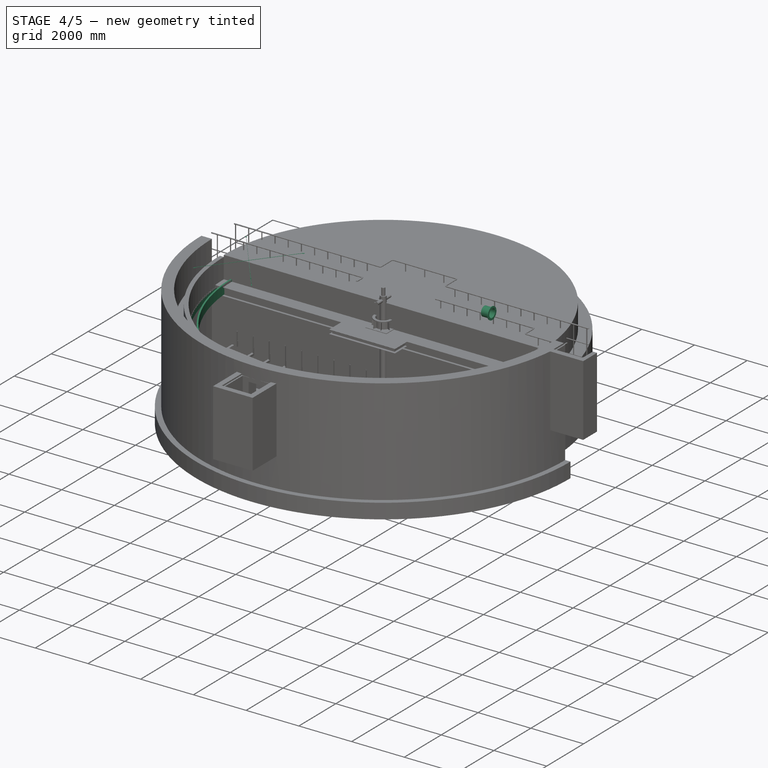
[diagram: stage 4 of 5 — iso view after this stage's code; geometry added in this stage tinted green]
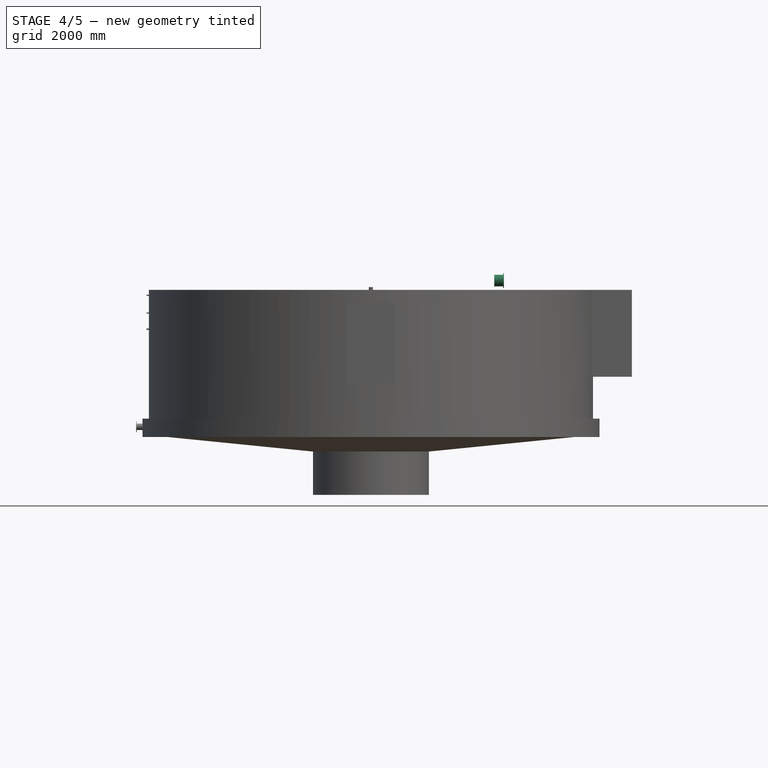
[diagram: stage 4 of 5 — front view after this stage's code; geometry added in this stage tinted green]
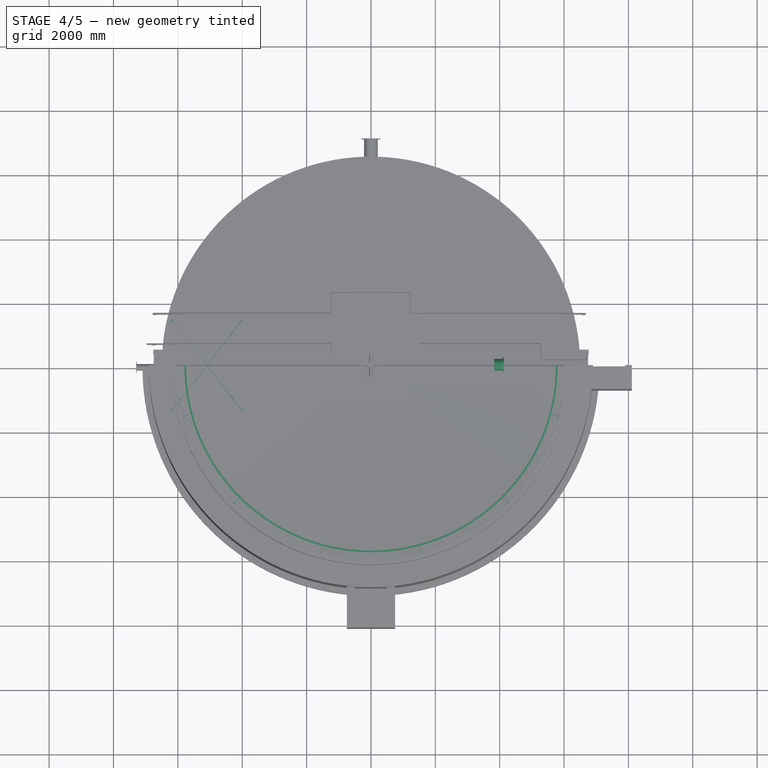
[diagram: stage 4 of 5 — top view after this stage's code; geometry added in this stage tinted green]
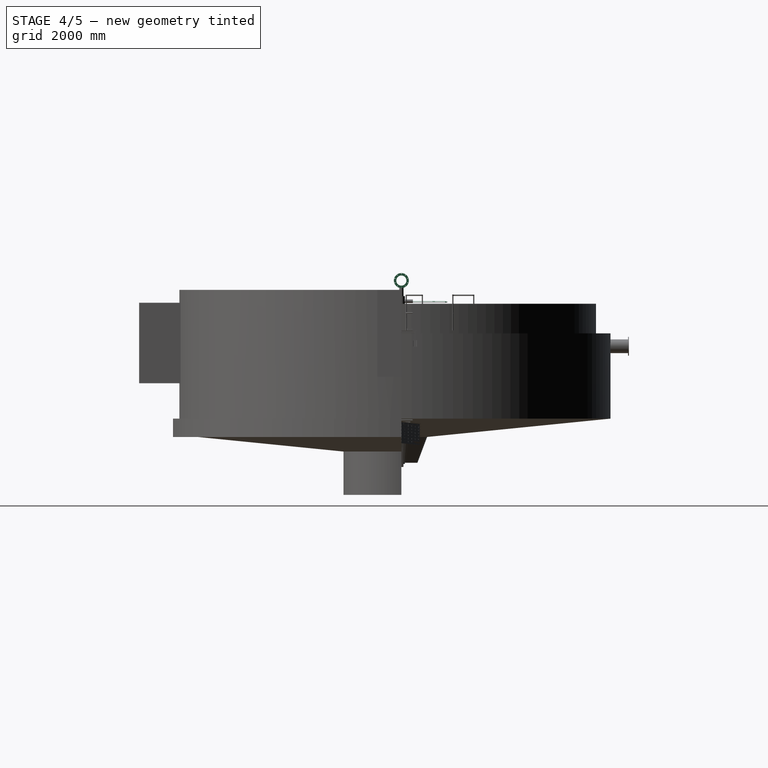
[diagram: stage 4 of 5 — right view after this stage's code; geometry added in this stage tinted green]
FEATURE [Part::FeaturePython] Flange  # WARN: FeaturePython — macro-defined, semantics opaque (R4)
  Placement = pos=(7806.41,7.94e-13,1860) rot=(0.57735,0.57735,0.57735;2.0944rad)
  dia = 6
  fittings = 00_Flange
  material = 0
  standard = 1
FEATURE [Part::FeaturePython] Ring  # WARN: FeaturePython — macro-defined, semantics opaque (R4)
  D = 360
  Placement = pos=(0,0,0) rot=(0,1,0;1.5708rad)
  d = 315
  sface = 0
FEATURE [Part::Extrusion] Extrude023  label="Extrude025"
  Base = -> Ring
  Dir = (1,0,2e-16)
  DirMode = 2
  FaceMakerClass = Part::FaceMakerBullseye
  LengthFwd = 300
  LengthRev = 0
  Placement = pos=(7830.41,7.94e-13,1860) rot=(0,0,1;0rad)
  Reversed = true
  Solid = true
  Symmetric = false
FEATURE [App::Part] Part011  label="brg01"
  Origin = -> Origin012
  Placement = pos=(5250,-1.1983e-12,0) rot=(0,0,1;0rad)
  expr: .Placement.Base.x = Spreadsheet004.L0 - Spreadsheet004.l1
FEATURE [Part::FeaturePython] Straight_tube  # WARN: FeaturePython — macro-defined, semantics opaque (R4)
  L = 6045
  Placement = pos=(-1000,0,0) rot=(0,0,1;0rad)
  dia = 16
  fittings = 05_Straight pipe
  material = 1
  standard = 1
  expr: .Placement.Base.x = -Spreadsheet004.l1
FEATURE [Sketcher::SketchObject] Sketch029
  FullyConstrained = true
  Placement = pos=(0,0,0) rot=(1,0,0;1.5708rad)
  expr: Constraints[35] = Spreadsheet004.L0 - (Spreadsheet004.l1 + 100)
  sketch-geometry (12):
    g0: LineSegment StartX=5130 StartY=159.25 StartZ=0 EndX=5150 EndY=159.25 EndZ=0
    g1: LineSegment StartX=5150 StartY=159.25 StartZ=0 EndX=5150 EndY=164.25 EndZ=0
    g2: LineSegment StartX=5150 StartY=164.25 StartZ=0 EndX=5130 EndY=164.25 EndZ=0
    g3: LineSegment StartX=5130 StartY=164.25 StartZ=0 EndX=5130 EndY=159.25 EndZ=0
    g4: LineSegment StartX=0 StartY=159.25 StartZ=0 EndX=0 EndY=169.25 EndZ=0
    g5: LineSegment StartX=0 StartY=169.25 StartZ=0 EndX=19 EndY=169.25 EndZ=0
    g6: LineSegment StartX=19 StartY=169.25 StartZ=0 EndX=19 EndY=164.25 EndZ=0
    g7: LineSegment StartX=19 StartY=164.25 StartZ=0 EndX=31 EndY=164.25 EndZ=0
    g8: LineSegment StartX=31 StartY=164.25 StartZ=0 EndX=31 EndY=169.25 EndZ=0
    g9: LineSegment StartX=31 StartY=169.25 StartZ=0 EndX=50 EndY=169.25 EndZ=0
    g10: LineSegment StartX=50 StartY=169.25 StartZ=0 EndX=50 EndY=159.25 EndZ=0
    g11: LineSegment StartX=50 StartY=159.25 StartZ=0 EndX=0 EndY=159.25 EndZ=0
  constraints (36):
    c: Coincident(g0,g1)
    c: Coincident(g1,g2)
    c: Coincident(g2,g3)
    c: Coincident(g3,g0)
    c: Horizontal(g0)
    c: Horizontal(g2)
    c: Vertical(g1)
    c: Vertical(g3)
    c: DistanceY(g-1,g0) = 159.25
    c: DistanceY(g1,g1) = 5
    c: DistanceX(g2,g2) = 20
    c: Vertical(g4)
    c: Coincident(g4,g5)
    c: Horizontal(g5)
    c: Coincident(g5,g6)
    c: Vertical(g6)
    c: Coincident(g6,g7)
    c: Coincident(g7,g8)
    c: Coincident(g8,g9)
    c: Coincident(g9,g10)
    c: Coincident(g10,g11)
    c: Coincident(g11,g4)
    c: Horizontal(g11)
    c: Vertical(g10)
    c: Horizontal(g7)
    c: Horizontal(g9)
    c: Vertical(g8)
    c: DistanceY(g10,g10) = 10
    c: DistanceY(g7,g8) = 5
    c: Horizontal(g8,g5)
    c: DistanceX(g11,g11) = 50
    c: DistanceX(g7,g7) = 12
    c: DistanceX(g5,g5) = 19
    c: DistanceY(g-1,g4) = 159.25
    c: Vertical(g-1,g4)
    c: DistanceX(g-1,g0) = 5150
FEATURE [Part::Revolution] Revolve006
  Angle = 360
  Axis = (1,0,0)
  Base = (0,0,0)
  FaceMakerClass = Part::FaceMakerBullseye
  Placement = pos=(-400,0,0) rot=(0,0,1;0rad)
  Solid = true
  Source = -> Sketch029
  Symmetric = false
FEATURE [Spreadsheet::Sheet] Spreadsheet004  label="Spreadsheet_pipeSkimmer"
  cells = A2='tankDia  D0; B2(D0)=13000; A3='fullLength L0; B3(L0)=6250; A4='length       l1; B4(l1)=1000; A5='n0; B5(n0)=4; A6='l3; B6(l3)=1134; A7='開閉台  h2; B7(h2)=1500
FEATURE [Sketcher::SketchObject] Sketch030
  FullyConstrained = false
  Placement = pos=(0,0,0) rot=(0.57735,0.57735,0.57735;2.0944rad)
  sketch-geometry (3):
    g0: LineSegment StartX=0 StartY=0 StartZ=0 EndX=114.659 EndY=220.257 EndZ=0
    g1: LineSegment StartX=0 StartY=0 StartZ=0 EndX=-114.659 EndY=220.257 EndZ=0
    g2: ArcOfCircle CenterX=0 CenterY=0 CenterZ=0 NormalX=0 NormalY=0 NormalZ=1 AngleXU=0 Radius=248.314 StartAngle=1.09083 EndAngle=2.05076
  constraints (7):
    c: Coincident(g-1,g0)
    c: Coincident(g1,g0)
    c: Coincident(g2,g0)
    c: Coincident(g2,g1)
    c: Coincident(g2,g0)
    c: Angle(g0,g-2) = 0.479966
    c: Angle(g0,g1) = 0.959931
FEATURE [Part::Extrusion] Extrude024  label="Extrude026"
  Base = -> Sketch030
  Dir = (1,0,0)
  DirMode = 2
  FaceMakerClass = Part::FaceMakerBullseye
  LengthFwd = 1050
  LengthRev = 0
  Placement = pos=(100,0,0) rot=(0,0,1;0rad)
  Solid = true
  Symmetric = false
FEATURE [Part::FeaturePython] Array004  # Draft array (typed FeaturePython)
  AlwaysSyncPlacement = false
  Angle = 360
  ArrayType = 0
  Axis = (0,0,1)
  Base = -> Extrude024
  Center = (0,0,0)
  Count = 4
  ExpandArray = false
  Fuse = false
  IntervalAxis = (0,0,0)
  IntervalX = (1100,0,0)
  IntervalY = (0,100,0)
  IntervalZ = (0,0,100)
  NumberCircles = 3
  NumberPolar = 5
  NumberX = 4
  NumberY = 1
  NumberZ = 1
  PlacementList = 4 placements: arithmetic series from (100,0,0) step (1100,0,0) to (3400,0,0)
  RadialDistance = 50
  ScaleList = (4) [(1,1,1),(1,1,1),(1,1,1),(1,1,1)]
  Symmetry = 1
  TangentialDistance = 25
  expr: NumberX = Spreadsheet004.n0
FEATURE [Part::Cut] Cut015
  Base = -> Straight_tube
  Tool = -> Array004
FEATURE [Sketcher::SketchObject] Sketch031
  FullyConstrained = false
  Placement = pos=(0,0,0) rot=(0.57735,0.57735,0.57735;2.0944rad)
  sketch-geometry (3):
    g0: LineSegment StartX=0 StartY=0 StartZ=0 EndX=-124.513 EndY=239.188 EndZ=0
    g1: LineSegment StartX=0 StartY=0 StartZ=0 EndX=124.513 EndY=239.188 EndZ=0
    g2: ArcOfCircle CenterX=0 CenterY=0 CenterZ=0 NormalX=0 NormalY=0 NormalZ=1 AngleXU=0 Radius=269.656 StartAngle=1.09083 EndAngle=2.05076
  constraints (7):
    c: Coincident(g0,g-1)
    c: Coincident(g1,g0)
    c: Coincident(g2,g1)
    c: Coincident(g2,g0)
    c: Coincident(g2,g0)
    c: Angle(g1,g0) = 0.959931
    c: Angle(g1,g-2) = 0.479966
FEATURE [Part::Extrusion] Extrude025  label="Extrude027"
  Base = -> Sketch031
  Dir = (1,0,0)
  DirMode = 2
  FaceMakerClass = Part::FaceMakerBullseye
  LengthFwd = 950
  LengthRev = 0
  Placement = pos=(-25,0,0) rot=(0,0,1;0rad)
  Reversed = true
  Solid = true
  Symmetric = false
  expr: LengthFwd = Spreadsheet004.l1 - 50
FEATURE [Part::Cut] Cut016
  Base = -> Cut015
  Tool = -> Extrude025
FEATURE [Sketcher::SketchObject] Sketch040
  FullyConstrained = true
  Placement = pos=(0,0,0) rot=(1,0,0;1.5708rad)
  expr: Constraints[10] = Spreadsheet005.C6
  expr: Constraints[11] = Spreadsheet005.B6
  expr: Constraints[12] = Spreadsheet005.D6 / 2
  expr: Constraints[13] = Spreadsheet005.F6 / 2
  expr: Constraints[14] = Spreadsheet005.B6 / 2
  expr: Constraints[17] = Spreadsheet005.C6
  sketch-geometry (6):
    g0: LineSegment StartX=-50 StartY=0 StartZ=0 EndX=-50 EndY=11 EndZ=0
    g1: LineSegment StartX=-50 StartY=11 StartZ=0 EndX=-30 EndY=15 EndZ=0
    g2: LineSegment StartX=-30 StartY=15 StartZ=0 EndX=30 EndY=15 EndZ=0
    g3: LineSegment StartX=30 StartY=15 StartZ=0 EndX=50 EndY=11 EndZ=0
    g4: LineSegment StartX=50 StartY=11 StartZ=0 EndX=50 EndY=0 EndZ=0
    g5: LineSegment StartX=50 StartY=0 StartZ=0 EndX=-50 EndY=0 EndZ=0
  constraints (18):
    c: PointOnObject(g0,g-1)
    c: Vertical(g0)
    c: Coincident(g0,g1)
    c: Coincident(g1,g2)
    c: Horizontal(g2)
    c: Coincident(g2,g3)
    c: Coincident(g3,g4)
    c: PointOnObject(g4,g-1)
    c: Vertical(g4)
    c: Coincident(g4,g5)
    c: DistanceX(g2,g3) = 20
    c: DistanceX(g0,g3) = 100
    c: Distance(g1,g5) = 15
    c: Distance(g4) = 11
    c: DistanceX(g-1,g4) = 50
    c: Horizontal(g0,g3)
    c: Coincident(g5,g0)
    c: DistanceX(g0,g1) = 20
FEATURE [Part::Revolution] Revolve007
  Angle = 360
  Axis = (-1,0,0)
  AxisLink = -> Sketch040 [Edge6]
  Base = (-50,0,0)
  FaceMakerClass = Part::FaceMakerBullseye
  Solid = true
  Source = -> Sketch040
  Symmetric = false
FEATURE [Sketcher::SketchObject] Sketch041
  FullyConstrained = false
  Placement = pos=(0,0,0) rot=(0.57735,0.57735,0.57735;2.0944rad)
  expr: Constraints[16] = Spreadsheet005.F6
  expr: Constraints[17] = Spreadsheet005.F6 / 2
  sketch-geometry (8):
    g0: LineSegment StartX=-11 StartY=39.685 StartZ=0 EndX=-26 EndY=39.685 EndZ=0
    g1: LineSegment StartX=-26 StartY=39.685 StartZ=0 EndX=-26 EndY=-39.3666 EndZ=0
    g2: LineSegment StartX=-26 StartY=-39.3666 StartZ=0 EndX=-11 EndY=-39.3666 EndZ=0
    g3: LineSegment StartX=-11 StartY=-39.3666 StartZ=0 EndX=-11 EndY=39.685 EndZ=0
    g4: LineSegment StartX=11 StartY=39.685 StartZ=0 EndX=26 EndY=39.685 EndZ=0
    g5: LineSegment StartX=26 StartY=39.685 StartZ=0 EndX=26 EndY=-40.315 EndZ=0
    g6: LineSegment StartX=26 StartY=-40.315 StartZ=0 EndX=11 EndY=-40.315 EndZ=0
    g7: LineSegment StartX=11 StartY=-40.315 StartZ=0 EndX=11 EndY=39.685 EndZ=0
  constraints (22):
    c: Coincident(g0,g1)
    c: Coincident(g1,g2)
    c: Coincident(g2,g3)
    c: Coincident(g3,g0)
    c: Horizontal(g0)
    c: Horizontal(g2)
    c: Vertical(g1)
    c: Vertical(g3)
    c: Coincident(g4,g5)
    c: Coincident(g5,g6)
    c: Coincident(g6,g7)
    c: Coincident(g7,g4)
    c: Horizontal(g4)
    c: Horizontal(g6)
    c: Vertical(g5)
    c: Vertical(g7)
    c: DistanceX(g0,g4) = 22
    c: Distance(g-1,g7) = 11
    c: Distance(g5) = 80
    c: Distance(g4) = 15
    c: Distance(g0) = 15
    c: Horizontal(g0,g4)
FEATURE [Part::Extrusion] Extrude032  label="Extrude034"
  Base = -> Sketch041
  Dir = (1,0,0)
  DirMode = 2
  FaceMakerClass = Part::FaceMakerBullseye
  LengthFwd = 300
  LengthRev = 0
  Solid = true
  Symmetric = true
FEATURE [Part::Cut] Cut018  label="Cut019"
  Base = -> Revolve007
  Tool = -> Extrude032
FEATURE [Sketcher::SketchObject] Sketch042
  FullyConstrained = true
  Placement = pos=(0,0,0) rot=(1,0,0;1.5708rad)
  expr: Constraints[17] = Spreadsheet005.E6
  expr: Constraints[18] = Spreadsheet005.B6 - 2 * Spreadsheet005.C6
  expr: Constraints[19] = (Spreadsheet005.B6 - 2 * Spreadsheet005.C6) / 2
  expr: Constraints[20] = Spreadsheet005.E6 / 2
  sketch-geometry (9):
    g0: LineSegment StartX=30 StartY=3 StartZ=0 EndX=30 EndY=-3 EndZ=0
    g1: LineSegment StartX=25 StartY=-8 StartZ=0 EndX=-25 EndY=-8 EndZ=0
    g2: LineSegment StartX=-30 StartY=-3 StartZ=0 EndX=-30 EndY=3 EndZ=0
    g3: LineSegment StartX=-25 StartY=8 StartZ=0 EndX=25 EndY=8 EndZ=0
    g4: GeomPoint X=0 Y=0 Z=0
    g5: ArcOfCircle CenterX=-25 CenterY=3 CenterZ=0 NormalX=0 NormalY=0 NormalZ=1 AngleXU=0 Radius=5 StartAngle=1.5708 EndAngle=3.14159
    g6: ArcOfCircle CenterX=-25 CenterY=-3 CenterZ=0 NormalX=0 NormalY=0 NormalZ=1 AngleXU=0 Radius=5 StartAngle=3.14159 EndAngle=4.71239
    g7: ArcOfCircle CenterX=25 CenterY=-3 CenterZ=0 NormalX=0 NormalY=0 NormalZ=1 AngleXU=0 Radius=5 StartAngle=4.71239 EndAngle=6.28319
    g8: ArcOfCircle CenterX=25 CenterY=3 CenterZ=0 NormalX=0 NormalY=0 NormalZ=1 AngleXU=0 Radius=5 StartAngle=-4.09e-14 EndAngle=1.5708
  constraints (21):
    c: Horizontal(g1)
    c: Horizontal(g3)
    c: Vertical(g0)
    c: Vertical(g2)
    c: Coincident(g4,g-1)
    c: Tangent(g3,g5) = 1.5708
    c: Tangent(g2,g5) = 1.5708
    c: Tangent(g1,g6) = 1.5708
    c: Tangent(g2,g6) = 1.5708
    c: Tangent(g1,g7) = 1.5708
    c: Tangent(g0,g7) = 1.5708
    c: Tangent(g0,g8) = 1.5708
    c: Tangent(g3,g8) = 1.5708
    c: Radius(g8) = 5
    c: Equal(g8,g7)
    c: Equal(g7,g6)
    c: Equal(g6,g5)
    c: DistanceY(g1,g3) = 16
    c: DistanceX(g2,g0) = 60
    c: Distance(g4,g2) = 30
    c: Distance(g4,g1) = 8
FEATURE [Part::Extrusion] Extrude033  label="Extrude035"
  Base = -> Sketch042
  Dir = (0,-1,2e-16)
  DirMode = 2
  FaceMakerClass = Part::FaceMakerBullseye
  LengthFwd = 60
  LengthRev = 0
  Solid = true
  Symmetric = true
FEATURE [Part::Cut] Cut019  label="Cut020"
  Base = -> Cut018
  Tool = -> Extrude033
FEATURE [Sketcher::SketchObject] Sketch043
  FullyConstrained = true
  Placement = pos=(0,0,0) rot=(0.57735,0.57735,0.57735;2.0944rad)
  expr: Constraints[1] = Spreadsheet005.dia / 2
  sketch-geometry (1):
    g0: Circle CenterX=0 CenterY=0 CenterZ=0 NormalX=0 NormalY=0 NormalZ=1 AngleXU=0 Radius=6
  constraints (2):
    c: Coincident(g0,g-1)
    c: Radius(g0) = 6
FEATURE [Part::Extrusion] Extrude034  label="Extrude036"
  Base = -> Sketch043
  Dir = (1,0,0)
  DirMode = 2
  FaceMakerClass = Part::FaceMakerBullseye
  LengthFwd = 300
  LengthRev = 0
  Solid = true
  Symmetric = true
FEATURE [Part::Cylinder] Cylinder007  label="rod005"
  Angle = 360
  AttacherType = Attacher::AttachEngine3D
  FirstAngle = 0
  Height = 3198.32
  Placement = pos=(-536,0,-1.37e-13) rot=(0,-1,0;1.5708rad)
  Radius = 6
  SecondAngle = 0
  expr: .Placement.Base.x = -(Spreadsheet005.dia * 3 + 500)
  expr: Height = Spreadsheet005.l1
  expr: Radius = Spreadsheet005.dia / 2
FEATURE [Part::Extrusion] Extrude035  label="Extrude037"
  Base = -> Sketch039
  Dir = (0,-1,2e-16)
  DirMode = 2
  FaceMakerClass = Part::FaceMakerBullseye
  LengthFwd = 6
  LengthRev = 0
  Placement = pos=(0,9,0) rot=(0,0,1;0rad)
  Solid = true
  Symmetric = true
  expr: .Placement.Base.y = Spreadsheet005.dia / 2 + Spreadsheet005.t0 / 2
  expr: LengthFwd = Spreadsheet005.t0
FEATURE [Part::FeaturePython] Clone004  label="Extrude038"  # Draft clone (typed FeaturePython)
  AttacherType = Attacher::AttachEngine3D
  Fuse = false
  Objects = -> [Extrude035]
  Placement = pos=(-3758.32,9,0) rot=(0,1,0;3.14159rad)
  Scale = (1,1,1)
  expr: .Placement.Base.x = -Spreadsheet005.L0
  expr: .Placement.Base.y = Spreadsheet005.t0 / 2 + Spreadsheet005.dia / 2
FEATURE [Sketcher::SketchObject] Sketch044
  FullyConstrained = true
  expr: Constraints[10] = Spreadsheet006.l0
  expr: Constraints[9] = Spreadsheet006.w0
  sketch-geometry (5):
    g0: LineSegment StartX=0 StartY=0 StartZ=0 EndX=2200 EndY=0 EndZ=0
    g1: LineSegment StartX=2200 StartY=0 StartZ=0 EndX=2200 EndY=2850 EndZ=0
    g2: LineSegment StartX=2200 StartY=2850 StartZ=0 EndX=0 EndY=2850 EndZ=0
    g3: LineSegment StartX=0 StartY=2850 StartZ=0 EndX=0 EndY=0 EndZ=0
    g4: LineSegment StartX=0 StartY=0 StartZ=0 EndX=2200 EndY=2850 EndZ=0
  constraints (14):
    c: Coincident(g0,g1)
    c: Coincident(g1,g2)
    c: Coincident(g2,g3)
    c: Coincident(g3,g0)
    c: Horizontal(g0)
    c: Horizontal(g2)
    c: Vertical(g1)
    c: Vertical(g3)
    c: Coincident(g0,g-1)
    c: Distance(g2) = 2200
    c: Distance(g1) = 2850
    c: Coincident(g4,g0)
    c: Coincident(g4,g1)
    c: Angle(g0,g4) = 0.913407
FEATURE [Spreadsheet::Sheet] Spreadsheet006  label="Spreadsheet001"
  cells = A2='rodDia dia; B2(dia)=12; C2='thickness; D2(t0)=6; E2='w0; F2(w0)=2200; G2='sita; H2(sita)==atan(l0 / w0); A3='length L0; B3(L0)==(w0 ^ 2 + l0 ^ 2) ^ 0.5; C3='l1; D3(l1)==L0 - (dia * 5 + 500); E3='l0; F3(l0)=2850; B4='l; C4='l1; D4='a; E4='b; F4='c; G4='e; H4='f; I4='g; J4='h; K4='i; L4='r; A5='forkEndR; B5=80; D5=25; E5=10; F5=14; G5=16; H5=13; I5=40; J5=5; K5=13; L5=15; A6='turnBackle; B6=100; C6=20; D6=30; E6=16; F6=22; A7='forkEndL; B7=60; D7=25; E7=10; F7=13; G7=16; H7=13; I7=20; L7=15; A8=1; B8=2; C8=3; D8=4; E8=5; F8=6; G8=7; H8=8; I8=9; J8=10; K8=11; L8=12; A9='turnBackle; A10='d; B10='l; C10='l1; D10='a; E10='b; F10='c; G10='t0; A11=10; B11=75; C11=15; D11=24; E11=13; F11=17; G11=6; A12=12; B12=100; C12=20; D12=30; E12=16; F12=22; G12=6; A13=16; B13=125; C13=24; D13=36; E13=20; F13=27; G13=9; A14=20; B14=150; C14=28; D14=42; E14=23; F14=33; G14=9; A15=22; B15=175; C15=33; D15=48; E15=27; F15=37; G15=9; A16=24; B16=200; C16=38; D16=54; E16=30; F16=42; G16=12; A17=30; B17=250; C17=47; D17=66; E17=37; F17=52; G17=12; A18='forkEnd_L; A19='d; B19='l; C19='a; D19='b; E19='c; F19='e; G19='f; H19='g; I19='r; A20=10; B20=50; C20=20; D20=7; E20=10; F20=12; G20=10; H20=15; I20=12; A21=12; B21=60; C21=25; D21=10; E21=13; F21=16; G21=13; H21=20; I21=15; A22=16; B22=75; C22=30; D22=13; E22=16; F22=20; G22=16; H22=25; I22=19; A23=20; B23=90; C23=40; D23=16; E23=20; F23=24; G23=20; H23=30; I23=23; A24=22; B24=100; C24=45; D24=20; E24=23; F24=28; G24=23; H24=35; I24=27; A25=24; B25=115; C25=50; D25=23; E25=26; F25=32; G25=26; H25=40; I25=30; A26=30; B26=140; C26=65; D26=30; E26=33; F26=40; G26=33; H26=50; I26=38; A27='forkEnd_R; A28='d; B28='l; C28='a; D28='b; E28='c; F28='r; +82 more cells
FEATURE [Sketcher::SketchObject] Sketch018
  FullyConstrained = true
  Placement = pos=(0,0,0) rot=(1,0,0;1.5708rad)
  expr: Constraints[11] = Spreadsheet006.I5 + Spreadsheet006.dia * 2
  expr: Constraints[1] = Spreadsheet006.F5 / 2
  expr: Constraints[3] = Spreadsheet006.L5
  sketch-geometry (5):
    g0: Circle CenterX=0 CenterY=0 CenterZ=0 NormalX=0 NormalY=0 NormalZ=1 AngleXU=0 Radius=7
    g1: ArcOfCircle CenterX=0 CenterY=0 CenterZ=0 NormalX=0 NormalY=0 NormalZ=1 AngleXU=0 Radius=15 StartAngle=4.71239 EndAngle=7.85398
    g2: LineSegment StartX=-4.87e-14 StartY=15 StartZ=0 EndX=-64 EndY=15 EndZ=0
    g3: LineSegment StartX=-64 StartY=15 StartZ=0 EndX=-64 EndY=-15 EndZ=0
    g4: LineSegment StartX=-64 StartY=-15 StartZ=0 EndX=0 EndY=-15 EndZ=0
  constraints (12):
    c: Coincident(g0,g-1)
    c: Radius(g0) = 7
    c: Coincident(g1,g0)
    c: Radius(g1) = 15
    c: Horizontal(g2)
    c: Coincident(g2,g3)
    c: Vertical(g3)
    c: Coincident(g3,g4)
    c: Horizontal(g4)
    c: Tangent(g1,g2) = -1.5708
    c: Tangent(g1,g4) = -1.5708
    c: Distance(g2) = 64
FEATURE [Part::Cylinder] Cylinder002  label="円柱001"
  Angle = 360
  AttacherType = Attacher::AttachEngine3D
  FirstAngle = 0
  Height = 500
  Placement = pos=(-24,0,0) rot=(0,-1,0;1.5708rad)
  Radius = 6
  SecondAngle = 0
  expr: .Placement.Base.x = -Spreadsheet006.dia * 2
  expr: Radius = Spreadsheet006.dia / 2
FEATURE [Sketcher::SketchObject] Sketch019
  FullyConstrained = true
  Placement = pos=(0,0,0) rot=(1,0,0;1.5708rad)
  expr: Constraints[10] = Spreadsheet006.C6
  expr: Constraints[11] = Spreadsheet006.B6
  expr: Constraints[12] = Spreadsheet006.D6 / 2
  expr: Constraints[13] = Spreadsheet006.F6 / 2
  expr: Constraints[14] = Spreadsheet006.B6 / 2
  expr: Constraints[17] = Spreadsheet006.C6
  sketch-geometry (6):
    g0: LineSegment StartX=-50 StartY=0 StartZ=0 EndX=-50 EndY=11 EndZ=0
    g1: LineSegment StartX=-50 StartY=11 StartZ=0 EndX=-30 EndY=15 EndZ=0
    g2: LineSegment StartX=-30 StartY=15 StartZ=0 EndX=30 EndY=15 EndZ=0
    g3: LineSegment StartX=30 StartY=15 StartZ=0 EndX=50 EndY=11 EndZ=0
    g4: LineSegment StartX=50 StartY=11 StartZ=0 EndX=50 EndY=0 EndZ=0
    g5: LineSegment StartX=50 StartY=0 StartZ=0 EndX=-50 EndY=0 EndZ=0
  constraints (18):
    c: PointOnObject(g0,g-1)
    c: Vertical(g0)
    c: Coincident(g0,g1)
    c: Coincident(g1,g2)
    c: Horizontal(g2)
    c: Coincident(g2,g3)
    c: Coincident(g3,g4)
    c: PointOnObject(g4,g-1)
    c: Vertical(g4)
    c: Coincident(g4,g5)
    c: DistanceX(g2,g3) = 20
    c: DistanceX(g0,g3) = 100
    c: Distance(g1,g5) = 15
    c: Distance(g4) = 11
    c: DistanceX(g-1,g4) = 50
    c: Horizontal(g0,g3)
    c: Coincident(g5,g0)
    c: DistanceX(g0,g1) = 20
FEATURE [Part::Revolution] Revolve008
  Angle = 360
  Axis = (-1,0,0)
  AxisLink = -> Sketch019 [Edge6]
  Base = (-50,0,0)
  FaceMakerClass = Part::FaceMakerBullseye
  Solid = true
  Source = -> Sketch019
  Symmetric = false
FEATURE [Sketcher::SketchObject] Sketch020
  FullyConstrained = false
  Placement = pos=(0,0,0) rot=(0.57735,0.57735,0.57735;2.0944rad)
  expr: Constraints[16] = Spreadsheet006.F6
  expr: Constraints[17] = Spreadsheet006.F6 / 2
  sketch-geometry (8):
    g0: LineSegment StartX=-11 StartY=39.685 StartZ=0 EndX=-26 EndY=39.685 EndZ=0
    g1: LineSegment StartX=-26 StartY=39.685 StartZ=0 EndX=-26 EndY=-39.3666 EndZ=0
    g2: LineSegment StartX=-26 StartY=-39.3666 StartZ=0 EndX=-11 EndY=-39.3666 EndZ=0
    g3: LineSegment StartX=-11 StartY=-39.3666 StartZ=0 EndX=-11 EndY=39.685 EndZ=0
    g4: LineSegment StartX=11 StartY=39.685 StartZ=0 EndX=26 EndY=39.685 EndZ=0
    g5: LineSegment StartX=26 StartY=39.685 StartZ=0 EndX=26 EndY=-40.315 EndZ=0
    g6: LineSegment StartX=26 StartY=-40.315 StartZ=0 EndX=11 EndY=-40.315 EndZ=0
    g7: LineSegment StartX=11 StartY=-40.315 StartZ=0 EndX=11 EndY=39.685 EndZ=0
  constraints (22):
    c: Coincident(g0,g1)
    c: Coincident(g1,g2)
    c: Coincident(g2,g3)
    c: Coincident(g3,g0)
    c: Horizontal(g0)
    c: Horizontal(g2)
    c: Vertical(g1)
    c: Vertical(g3)
    c: Coincident(g4,g5)
    c: Coincident(g5,g6)
    c: Coincident(g6,g7)
    c: Coincident(g7,g4)
    c: Horizontal(g4)
    c: Horizontal(g6)
    c: Vertical(g5)
    c: Vertical(g7)
    c: DistanceX(g0,g4) = 22
    c: Distance(g-1,g7) = 11
    c: Distance(g5) = 80
    c: Distance(g4) = 15
    c: Distance(g0) = 15
    c: Horizontal(g0,g4)
FEATURE [Part::Extrusion] Extrude036  label="Extrude039"
  Base = -> Sketch020
  Dir = (1,0,0)
  DirMode = 2
  FaceMakerClass = Part::FaceMakerBullseye
  LengthFwd = 300
  LengthRev = 0
  Solid = true
  Symmetric = true
FEATURE [Part::Cut] Cut009
  Base = -> Revolve008
  Tool = -> Extrude036
FEATURE [Sketcher::SketchObject] Sketch021
  FullyConstrained = true
  Placement = pos=(0,0,0) rot=(1,0,0;1.5708rad)
  expr: Constraints[17] = Spreadsheet006.E6
  expr: Constraints[18] = Spreadsheet006.B6 - 2 * Spreadsheet006.C6
  expr: Constraints[19] = (Spreadsheet006.B6 - 2 * Spreadsheet006.C6) / 2
  expr: Constraints[20] = Spreadsheet006.E6 / 2
  sketch-geometry (9):
    g0: LineSegment StartX=30 StartY=3 StartZ=0 EndX=30 EndY=-3 EndZ=0
    g1: LineSegment StartX=25 StartY=-8 StartZ=0 EndX=-25 EndY=-8 EndZ=0
    g2: LineSegment StartX=-30 StartY=-3 StartZ=0 EndX=-30 EndY=3 EndZ=0
    g3: LineSegment StartX=-25 StartY=8 StartZ=0 EndX=25 EndY=8 EndZ=0
    g4: GeomPoint X=0 Y=0 Z=0
    g5: ArcOfCircle CenterX=-25 CenterY=3 CenterZ=0 NormalX=0 NormalY=0 NormalZ=1 AngleXU=0 Radius=5 StartAngle=1.5708 EndAngle=3.14159
    g6: ArcOfCircle CenterX=-25 CenterY=-3 CenterZ=0 NormalX=0 NormalY=0 NormalZ=1 AngleXU=0 Radius=5 StartAngle=3.14159 EndAngle=4.71239
    g7: ArcOfCircle CenterX=25 CenterY=-3 CenterZ=0 NormalX=0 NormalY=0 NormalZ=1 AngleXU=0 Radius=5 StartAngle=4.71239 EndAngle=6.28319
    g8: ArcOfCircle CenterX=25 CenterY=3 CenterZ=0 NormalX=0 NormalY=0 NormalZ=1 AngleXU=0 Radius=5 StartAngle=-4.09e-14 EndAngle=1.5708
  constraints (21):
    c: Horizontal(g1)
    c: Horizontal(g3)
    c: Vertical(g0)
    c: Vertical(g2)
    c: Coincident(g4,g-1)
    c: Tangent(g3,g5) = 1.5708
    c: Tangent(g2,g5) = 1.5708
    c: Tangent(g1,g6) = 1.5708
    c: Tangent(g2,g6) = 1.5708
    c: Tangent(g1,g7) = 1.5708
    c: Tangent(g0,g7) = 1.5708
    c: Tangent(g0,g8) = 1.5708
    c: Tangent(g3,g8) = 1.5708
    c: Radius(g8) = 5
    c: Equal(g8,g7)
    c: Equal(g7,g6)
    c: Equal(g6,g5)
    c: DistanceY(g1,g3) = 16
    c: DistanceX(g2,g0) = 60
    c: Distance(g4,g2) = 30
    c: Distance(g4,g1) = 8
FEATURE [Part::Extrusion] Extrude037  label="Extrude040"
  Base = -> Sketch021
  Dir = (0,-1,2e-16)
  DirMode = 2
  FaceMakerClass = Part::FaceMakerBullseye
  LengthFwd = 60
  LengthRev = 0
  Solid = true
  Symmetric = true
FEATURE [Part::Cut] Cut010
  Base = -> Cut009
  Tool = -> Extrude037
FEATURE [Sketcher::SketchObject] Sketch022
  FullyConstrained = true
  Placement = pos=(0,0,0) rot=(0.57735,0.57735,0.57735;2.0944rad)
  expr: Constraints[1] = Spreadsheet006.dia / 2
  sketch-geometry (1):
    g0: Circle CenterX=0 CenterY=0 CenterZ=0 NormalX=0 NormalY=0 NormalZ=1 AngleXU=0 Radius=6
  constraints (2):
    c: Coincident(g0,g-1)
    c: Radius(g0) = 6
FEATURE [Part::Extrusion] Extrude038  label="Extrude041"
  Base = -> Sketch022
  Dir = (1,0,0)
  DirMode = 2
  FaceMakerClass = Part::FaceMakerBullseye
  LengthFwd = 300
  LengthRev = 0
  Solid = true
  Symmetric = true
FEATURE [Part::Cut] Cut011  label="turnBackle001"
  Base = -> Cut010
  Placement = pos=(-530,0,0) rot=(0,0,1;0rad)
  Tool = -> Extrude038
  expr: .Placement.Base.x = -(Spreadsheet006.dia * 2.5 + 500)
FEATURE [Part::Cylinder] Cylinder003  label="rod001"
  Angle = 360
  AttacherType = Attacher::AttachEngine3D
  FirstAngle = 0
  Height = 3040.35
  Placement = pos=(-536,0,-1.37e-13) rot=(0,-1,0;1.5708rad)
  Radius = 6
  SecondAngle = 0
  expr: .Placement.Base.x = -(Spreadsheet006.dia * 3 + 500)
  expr: Height = Spreadsheet006.l1
  expr: Radius = Spreadsheet006.dia / 2
FEATURE [Part::Extrusion] Extrude039  label="Extrude042"
  Base = -> Sketch018
  Dir = (0,-1,2e-16)
  DirMode = 2
  FaceMakerClass = Part::FaceMakerBullseye
  LengthFwd = 6
  LengthRev = 0
  Placement = pos=(0,9,0) rot=(0,0,1;0rad)
  Solid = true
  Symmetric = true
  expr: .Placement.Base.y = Spreadsheet006.dia / 2 + Spreadsheet006.t0 / 2
  expr: LengthFwd = Spreadsheet006.t0
FEATURE [Part::FeaturePython] Clone005  label="Extrude043"  # Draft clone (typed FeaturePython)
  AttacherType = Attacher::AttachEngine3D
  Fuse = false
  Objects = -> [Extrude039]
  Placement = pos=(-3600.35,9,0) rot=(0,1,0;3.14159rad)
  Scale = (1,1,1)
  expr: .Placement.Base.x = -Spreadsheet006.L0
  expr: .Placement.Base.y = Spreadsheet006.t0 / 2 + Spreadsheet006.dia / 2
FEATURE [Part::Compound] Compound017
  Links = -> [Cylinder002,Extrude039,Cut011,Cylinder003,Clone005]
  Placement = pos=(0,0,0) rot=(1,0,0;1.5708rad)
FEATURE [App::Part] Part021  label="Part"
  Group = -> [Extrude036,Extrude037,Clone005,Cylinder002,Revolve008,Sketch018,Sketch019,Sketch020,Cut010,Cut011,Cut009,Sketch021,Sketch022,Extrude038,Extrude039,Cylinder003,Compound017]
  Origin = -> Origin022
  Placement = pos=(0,0,0) rot=(0,0,1;4.055rad)
  expr: .Placement.Rotation.Angle = 180 ° + Spreadsheet006.sita
FEATURE [Part::Mirroring] Mirror018  label="Part (mirrored)"
  Base = (-100,0,0)
  Normal = (0,0,1)
  Placement = pos=(0,2850,30) rot=(0,0,-1;1.82681rad)
  Source = -> Part021
  expr: .Placement.Base.y = Spreadsheet006.l0
  expr: .Placement.Base.z = Spreadsheet006.t0 * 2 + Spreadsheet006.dia + 6
  expr: .Placement.Rotation.Angle = Spreadsheet006.sita * 2
FEATURE [Part::Compound] Compound019
  Links = -> [Mirror018,Part021]
FEATURE [App::Part] Part020  label="TurnBackleC"
  Group = -> [Spreadsheet006,Sketch044,Part021,Mirror018,Compound019]
  Origin = -> Origin021
  Placement = pos=(3994.51,-1432.33,1181.63) rot=(0,0,1;0rad)
FEATURE [Part::Mirroring] Mirror020  label="TurnBackleC (mirrored)"
  Base = (0,-1000,0)
  Normal = (-1,0,0)
  Source = -> Part020
FEATURE [App::Part] Part004  label="support"
  Group = -> [Part005,Mirror008,Part018,Mirror019,Part020,Mirror020,Array003,ChannelSteel,Mirror012,AngleSteel003,Compound004,Sketch016,Mirror010,Extrude014,Mirror009,Mirror004,Mirror011]
  Origin = -> Origin005
  Placement = pos=(0,0,-200) rot=(0,0,1;4.71239rad)
FEATURE [Sketcher::SketchObject] Sketch045
  FullyConstrained = true
  Placement = pos=(0,0,0) rot=(1,0,0;1.5708rad)
  expr: Constraints[11] = Spreadsheet007.dia / 2 - 460
  sketch-geometry (4):
    g0: LineSegment StartX=6045 StartY=0 StartZ=0 EndX=6040 EndY=0 EndZ=0
    g1: LineSegment StartX=6040 StartY=0 StartZ=0 EndX=6040 EndY=250 EndZ=0
    g2: LineSegment StartX=6040 StartY=250 StartZ=0 EndX=6045 EndY=250 EndZ=0
    g3: LineSegment StartX=6045 StartY=250 StartZ=0 EndX=6045 EndY=0 EndZ=0
  constraints (12):
    c: Coincident(g0,g1)
    c: Coincident(g1,g2)
    c: Coincident(g2,g3)
    c: Coincident(g3,g0)
    c: Horizontal(g0)
    c: Horizontal(g2)
    c: Vertical(g1)
    c: Vertical(g3)
    c: PointOnObject(g0,g-1)
    c: Distance(g2) = 5
    c: DistanceY(g1,g1) = 250
    c: DistanceX(g-1,g0) = 6040
FEATURE [Part::Revolution] Revolve009
  Angle = 360
  Axis = (0,0,1)
  Base = (0,0,0)
  FaceMakerClass = Part::FaceMakerBullseye
  Solid = true
  Source = -> Sketch045
  Symmetric = false
FEATURE [Sketcher::SketchObject] Sketch046
  ExternalGeometry = -> [Revolve009]
  FullyConstrained = true
  Placement = pos=(0,0,0) rot=(1,0,0;1.5708rad)
  sketch-geometry (3):
    g0: LineSegment StartX=-70 StartY=250 StartZ=0 EndX=70 EndY=250 EndZ=0
    g1: LineSegment StartX=70 StartY=250 StartZ=0 EndX=0 EndY=180 EndZ=0
    g2: LineSegment StartX=0 StartY=180 StartZ=0 EndX=-70 EndY=250 EndZ=0
  constraints (9):
    c: Horizontal(g0)
    c: Coincident(g0,g1)
    c: PointOnObject(g1,g-2)
    c: Coincident(g1,g2)
    c: Coincident(g2,g0)
    c: Angle(g1,g2) = 1.5708
    c: PointOnObject(g0,g-3)
    c: DistanceY(g1,g0) = 70
    c: Angle(g2,g-2) = 2.35619
FEATURE [Part::Extrusion] Extrude040  label="Extrude044"
  Base = -> Sketch046
  Dir = (0,-1,2e-16)
  DirMode = 2
  FaceMakerClass = Part::FaceMakerBullseye
  LengthFwd = 7000
  LengthRev = 0
  Solid = true
  Symmetric = false
FEATURE [Sketcher::SketchObject] Sketch047
  FullyConstrained = false
  Placement = pos=(0,0,0) rot=(1,0,0;1.5708rad)
  sketch-geometry (4):
    g0: LineSegment StartX=5745 StartY=40 StartZ=0 EndX=5750 EndY=40 EndZ=0
    g1: LineSegment StartX=5750 StartY=40 StartZ=0 EndX=5750 EndY=380 EndZ=0
    g2: LineSegment StartX=5750 StartY=380 StartZ=0 EndX=5745 EndY=380 EndZ=0
    g3: LineSegment StartX=5745 StartY=380 StartZ=0 EndX=5745 EndY=40 EndZ=0
  constraints (11):
    c: Coincident(g0,g1)
    c: Coincident(g1,g2)
    c: Coincident(g2,g3)
    c: Coincident(g3,g0)
    c: Horizontal(g0)
    c: Horizontal(g2)
    c: Vertical(g1)
    c: Vertical(g3)
    c: DistanceX(g2,g2) = 5
    c: DistanceY(g1,g1) = 340
    c: DistanceX(g-1,g0) = 5750
FEATURE [Part::Revolution] Revolve010
  Angle = 360
  Axis = (0,0,1)
  Base = (0,0,0)
  FaceMakerClass = Part::FaceMakerBullseye
  Solid = true
  Source = -> Sketch047
  Symmetric = false
FEATURE [Part::FeaturePython] AngleSteel004  # WARN: FeaturePython — macro-defined, semantics opaque (R4)
  A = 50
  B = 50
  L = 1000
  Placement = pos=(5750,0,474) rot=(0,1,0;1.5708rad)
  Solid = false
  g0 = 7.85
  mass = 0
  size = 7
  standard = SS_Equal
  t = 6
  expr: .Placement.Base.x = Spreadsheet007.dia / 2 - 750
FEATURE [Part::Revolution] Revolve011
  Angle = 360
  Axis = (0,0,1)
  Base = (0,0,0)
  FaceMakerClass = Part::FaceMakerBullseye
  Placement = pos=(0,0,-94) rot=(0,0,1;0rad)
  Solid = false
  Source = -> AngleSteel004
  Symmetric = false
FEATURE [Sketcher::SketchObject] Sketch048
  ExternalGeometry = -> [Revolve010]
  FullyConstrained = false
  Placement = pos=(0,0,0) rot=(1,0,0;1.5708rad)
  sketch-geometry (4):
    g0: LineSegment StartX=5750 StartY=40 StartZ=0 EndX=6027.31 EndY=-163.621 EndZ=0
    g1: LineSegment StartX=6027.31 StartY=-163.621 StartZ=0 EndX=6027.31 EndY=-14.7455 EndZ=0
    g2: LineSegment StartX=6027.31 StartY=-14.7455 StartZ=0 EndX=5750 EndY=188.875 EndZ=0
    g3: LineSegment StartX=5750 StartY=188.875 StartZ=0 EndX=5750 EndY=40 EndZ=0
  constraints (9):
    c: Coincident(g0,g1)
    c: Vertical(g1)
    c: Coincident(g1,g2)
    c: Coincident(g2,g3)
    c: Coincident(g3,g0)
    c: Vertical(g3)
    c: Distance(g1,g0) = 120
    c: Coincident(g0,g-3)
    c: Parallel(g2,g0)
FEATURE [Part::Extrusion] Extrude041  label="Extrude045"
  Base = -> Sketch048
  Dir = (0,-1,2e-16)
  DirMode = 2
  FaceMakerClass = Part::FaceMakerBullseye
  LengthFwd = 6
  LengthRev = 0
  Solid = true
  Symmetric = true
FEATURE [Spreadsheet::Sheet] Spreadsheet007  label="Spreadsheet"
  cells = A3='tankDia dia; B3(dia)=13000; A4='n; B4(n)=12; A5='buffleHight  h0; B5(h0)=230
FEATURE [Part::FeaturePython] AngleSteel005  # WARN: FeaturePython — macro-defined, semantics opaque (R4)
  A = 50
  B = 50
  L = 140
  Placement = pos=(7265.03,28,-150) rot=(0,0,1;3.14159rad)
  Solid = true
  g0 = 7.85
  mass = 0.620249
  size = 7
  standard = SS_Equal
  t = 6
FEATURE [Part::Mirroring] Mirror021  label="AngleSteel001 (mirrored)"
  Base = (4800,0,0)
  Normal = (0,-1,0)
  Source = -> AngleSteel005
FEATURE [Part::Compound] Compound020
  Links = -> [Mirror021,AngleSteel005]
  Placement = pos=(-1258.01,0,-10) rot=(0,0,1;0rad)
FEATURE [Part::Compound] Compound021
  Links = -> [Extrude041,Compound020]
FEATURE [Part::FeaturePython] Array006  # Draft array (typed FeaturePython)
  AlwaysSyncPlacement = false
  Angle = 360
  ArrayType = 1
  Axis = (0,0,1)
  Base = -> Compound021
  Center = (0,0,-3452.74)
  Count = 12
  ExpandArray = false
  Fuse = false
  IntervalAxis = (0,0,0)
  IntervalX = (50,0,0)
  IntervalY = (0,50,0)
  IntervalZ = (0,0,50)
  NumberCircles = 3
  NumberPolar = 12
  NumberX = 2
  NumberY = 2
  NumberZ = 1
  Placement = pos=(0,0,0) rot=(0,0,1;0.261799rad)
  PlacementList = 12 placements: [(0,0,0),(0,0,0),(0,0,0),(0,0,9.09495e-13),(0,0,0),(0,0,0),(0,0,0),(0,0,9.09495e-13),(0,0,-4.54747e-13),(0,0,0),(0,0,0),(0,0,0)]
  RadialDistance = 50
  ScaleList = (12) [(1,1,1),(1,1,1),(1,1,1),(1,1,1),(1,1,1),(1,1,1),(1,1,1),(1,1,1),(1,1,1),(1,1,1),(1,1,1),(1,1,1)]
  Symmetry = 1
  TangentialDistance = 25
FEATURE [Part::FeaturePython] Array007  # Draft array (typed FeaturePython)
  AlwaysSyncPlacement = false
  Angle = 360
  ArrayType = 1
  Axis = (0,0,1)
  Base = -> Extrude040
  Center = (0,0,1169.54)
  Count = 250
  ExpandArray = false
  Fuse = false
  IntervalAxis = (0,0,0)
  IntervalX = (50,0,0)
  IntervalY = (0,50,0)
  IntervalZ = (0,0,50)
  NumberCircles = 3
  NumberPolar = 250
  NumberX = 2
  NumberY = 2
  NumberZ = 1
  PlacementList = 250 placements: [(0,0,0),(0,0,0),(0,0,2.27374e-13),(0,0,0),(0,0,0),(0,0,0),(0,0,0),(0,0,0),(0,0,0),(0,0,2.27374e-13),(0,0,0),(0,0,0),(0,0,0),(0,0,2.27374e-13),(0,0,2.27374e-13),(0,0,0),(0,0,0),(0,0,0),(0,0,2.27374e-13),(0,0,0),(0,0,0),(0,0,0),(0,0,0),(0,0,2.27374e-13),(0,0,2.27374e-13),(0,0,2.27374e-13),(0,0,-2.27374e-13),(0,0,0),(0,0,0),(0,0,2.27374e-13),(0,0,0),(0,0,2.27374e-13),(0,0,0),(0,0,0),(0,0,0),(0,0,0),+214 more]
  RadialDistance = 50
  ScaleList = (250) [(1,1,1),(1,1,1),(1,1,1),(1,1,1),(1,1,1),(1,1,1),(1,1,1),(1,1,1),(1,1,1),(1,1,1),(1,1,1),(1,1,1),(1,1,1),(1,1,1),(1,1,1),(1,1,1),(1,1,1),(1,1,1),+232 more]
  Symmetry = 1
  TangentialDistance = 25
FEATURE [Part::Cut] Cut021
  Base = -> Revolve009
  Tool = -> Array007
FEATURE [Sketcher::SketchObject] Sketch049
  ExternalGeometry = -> [Revolve006,Cut016]
  FullyConstrained = false
  MapMode = 5
  Placement = pos=(0,0,0) rot=(0,0.518773,0.854912;3.14159rad)
  Support = -> [Cut016]
  sketch-geometry (1):
    g0: Circle CenterX=0 CenterY=0 CenterZ=0 NormalX=0 NormalY=0 NormalZ=1 AngleXU=0 Radius=159.25
  constraints (1):
    c: Coincident(g-1,g0)
FEATURE [App::Part] Part012  label="pipe"
  Group = -> [Sketch029,Revolve006,Cut015,Cut016,Sketch031,Sketch030,Straight_tube,Array004,Extrude025,Extrude024,Sketch033,Part014,Sketch049]
  Origin = -> Origin013
  Placement = pos=(1255.97,0,1860.01) rot=(0,0,1;0rad)
FEATURE [Part::Compound] Compound022
  Links = -> [Flange,Extrude023]
  Placement = pos=(-3699.68,0,0) rot=(0,0,1;0rad)
FEATURE [App::Part] Part013  label="pipeSkimmer"
  Group = -> [Part011,Spreadsheet004,Ring,Flange,circularEdge_003,circularEdge_003_mirror,Extrude023,Compound022]
  Origin = -> Origin014
  Placement = pos=(2172.35,0,0) rot=(0,0,1;0rad)
FEATURE [Sketcher::SketchObject] Sketch050
  FullyConstrained = true
  MapMode = 5
  Placement = pos=(0,0,0) rot=(1,0,0;1.5708rad)
  Support = -> [XZ_Plane024]
  sketch-geometry (6):
    g0: LineSegment StartX=0 StartY=0 StartZ=0 EndX=150 EndY=0 EndZ=0
    g1: LineSegment StartX=150 StartY=0 StartZ=0 EndX=150 EndY=19 EndZ=0
    g2: LineSegment StartX=150 StartY=19 StartZ=0 EndX=40 EndY=19 EndZ=0
    g3: LineSegment StartX=40 StartY=19 StartZ=0 EndX=40 EndY=119 EndZ=0
    g4: LineSegment StartX=40 StartY=119 StartZ=0 EndX=0 EndY=119 EndZ=0
    g5: LineSegment StartX=0 StartY=119 StartZ=0 EndX=0 EndY=0 EndZ=0
  constraints (17):
    c: Coincident(g-1,g0)
    c: PointOnObject(g0,g-1)
    c: Coincident(g0,g1)
    c: Coincident(g1,g2)
    c: Horizontal(g2)
    c: Coincident(g2,g3)
    c: Vertical(g3)
    c: Coincident(g3,g4)
    c: PointOnObject(g4,g-2)
    c: Coincident(g4,g5)
    c: Coincident(g5,g0)
    c: Horizontal(g4)
    c: DistanceX(g4,g4) = 40
    c: DistanceX(g0,g0) = 150
    c: Vertical(g1)
    c: DistanceY(g1,g1) = 19
    c: DistanceY(g3,g3) = 100
FEATURE [PartDesign::Revolution] Revolution
  Angle = 360
  Axis = (0,2e-16,1)
  Base = (0,0,0)
  Placement = pos=(0,0,0) rot=(1,0,0;1.5708rad)
  Profile = -> Sketch050
  ReferenceAxis = -> Sketch050 [V_Axis]
  Reversed = true
FEATURE [Sketcher::SketchObject] Sketch051
  FullyConstrained = true
  MapMode = 5
  Placement = pos=(0,1.26e-14,19) rot=(0,0,1;3.14159rad)
  Support = -> [Revolution]
  sketch-geometry (2):
    g0: Circle CenterX=79.5495 CenterY=79.5495 CenterZ=0 NormalX=0 NormalY=0 NormalZ=1 AngleXU=0 Radius=9.5
    g1: LineSegment StartX=0 StartY=0 StartZ=0 EndX=79.5495 EndY=79.5495 EndZ=0
  constraints (5):
    c: Diameter(g0) = 19
    c: Coincident(g1,g-1)
    c: Coincident(g1,g0)
    c: Distance(g1) = 112.5
    c: Angle(g-1,g1) = 0.785398
FEATURE [PartDesign::Pocket] Pocket
  BaseFeature = -> Revolution
  Direction = (0,-2e-16,-1)
  Length = 5
  Length2 = 5
  Placement = pos=(0,0,0) rot=(1,0,0;1.5708rad)
  Profile = -> Sketch051
  ReferenceAxis = -> Sketch051 [N_Axis]
  Type = 1
FEATURE [PartDesign::PolarPattern] PolarPattern
  Angle = 360
  Axis = -> Sketch051 [N_Axis]
  BaseFeature = -> Pocket
  Occurrences = 4
  Originals = -> [Pocket]
  Placement = pos=(0,0,0) rot=(1,0,0;1.5708rad)
FEATURE [PartDesign::Chamfer] Chamfer001
  Angle = 45
  Base = -> PolarPattern [Edge17]
  BaseFeature = -> PolarPattern
  ChamferType = 0
  FlipDirection = false
  Placement = pos=(0,0,0) rot=(1,0,0;1.5708rad)
  Size = 3
  Size2 = 1
  SupportTransform = false
  UseAllEdges = false
FEATURE [PartDesign::Body] Body  label="brg"
  Group = -> [Sketch050,Revolution,Sketch051,Pocket,PolarPattern,Chamfer001]
  Origin = -> Origin024
  Placement = pos=(0,0,-3780) rot=(0,0,1;0rad)
  Tip = -> Chamfer001
FEATURE [Sketcher::SketchObject] Sketch052
  FullyConstrained = true
  MapMode = 5
  Placement = pos=(0,0,0) rot=(1,0,0;1.5708rad)
  Support = -> [XZ_Plane025]
  sketch-geometry (6):
    g0: LineSegment StartX=0 StartY=0 StartZ=0 EndX=150 EndY=0 EndZ=0
    g1: LineSegment StartX=150 StartY=0 StartZ=0 EndX=150 EndY=19 EndZ=0
    g2: LineSegment StartX=150 StartY=19 StartZ=0 EndX=40 EndY=19 EndZ=0
    g3: LineSegment StartX=40 StartY=19 StartZ=0 EndX=40 EndY=119 EndZ=0
    g4: LineSegment StartX=40 StartY=119 StartZ=0 EndX=0 EndY=119 EndZ=0
    g5: LineSegment StartX=0 StartY=119 StartZ=0 EndX=0 EndY=0 EndZ=0
  constraints (17):
    c: Coincident(g-1,g0)
    c: PointOnObject(g0,g-1)
    c: Coincident(g0,g1)
    c: Coincident(g1,g2)
    c: Horizontal(g2)
    c: Coincident(g2,g3)
    c: Vertical(g3)
    c: Coincident(g3,g4)
    c: PointOnObject(g4,g-2)
    c: Coincident(g4,g5)
    c: Coincident(g5,g0)
    c: Horizontal(g4)
    c: DistanceX(g4,g4) = 40
    c: DistanceX(g0,g0) = 150
    c: Vertical(g1)
    c: DistanceY(g1,g1) = 19
    c: DistanceY(g3,g3) = 100
FEATURE [PartDesign::Revolution] Revolution001
  Angle = 360
  Axis = (0,2e-16,1)
  Base = (0,0,0)
  Placement = pos=(0,0,0) rot=(1,0,0;1.5708rad)
  Profile = -> Sketch052
  ReferenceAxis = -> Sketch052 [V_Axis]
  Reversed = true
FEATURE [Sketcher::SketchObject] Sketch053
  FullyConstrained = true
  MapMode = 5
  Placement = pos=(0,1.26e-14,19) rot=(0,0,1;3.14159rad)
  Support = -> [Revolution001]
  sketch-geometry (2):
    g0: Circle CenterX=79.5495 CenterY=79.5495 CenterZ=0 NormalX=0 NormalY=0 NormalZ=1 AngleXU=0 Radius=9.5
    g1: LineSegment StartX=0 StartY=0 StartZ=0 EndX=79.5495 EndY=79.5495 EndZ=0
  constraints (5):
    c: Diameter(g0) = 19
    c: Coincident(g1,g-1)
    c: Coincident(g1,g0)
    c: Distance(g1) = 112.5
    c: Angle(g-1,g1) = 0.785398
FEATURE [PartDesign::Pocket] Pocket001
  BaseFeature = -> Revolution001
  Direction = (0,-2e-16,-1)
  Length = 5
  Length2 = 5
  Placement = pos=(0,0,0) rot=(1,0,0;1.5708rad)
  Profile = -> Sketch053
  ReferenceAxis = -> Sketch053 [N_Axis]
  Type = 1
FEATURE [PartDesign::PolarPattern] PolarPattern001
  Angle = 360
  Axis = -> Sketch053 [N_Axis]
  BaseFeature = -> Pocket001
  Occurrences = 4
  Originals = -> [Pocket001]
  Placement = pos=(0,0,0) rot=(1,0,0;1.5708rad)
FEATURE [PartDesign::Chamfer] Chamfer002
  Angle = 45
  Base = -> PolarPattern001 [Edge17]
  BaseFeature = -> PolarPattern001
  ChamferType = 0
  FlipDirection = false
  Placement = pos=(0,0,0) rot=(1,0,0;1.5708rad)
  Size = 3
  Size2 = 1
  SupportTransform = false
  UseAllEdges = false
FEATURE [PartDesign::Body] Body001  label="brg002"
  Group = -> [Sketch052,Revolution001,Sketch053,Pocket001,PolarPattern001,Chamfer002]
  Origin = -> Origin025
  Placement = pos=(0,0,-3980.71) rot=(0,0,1;0rad)
  Tip = -> Chamfer002
FEATURE [Sketcher::SketchObject] Sketch054
  FullyConstrained = true
  MapMode = 5
  Placement = pos=(0,0,0) rot=(1,0,0;1.5708rad)
  Support = -> [XZ_Plane026]
  sketch-geometry (8):
    g0: LineSegment StartX=40 StartY=0 StartZ=0 EndX=62.5 EndY=0 EndZ=0
    g1: LineSegment StartX=62.5 StartY=0 StartZ=0 EndX=62.5 EndY=90 EndZ=0
    g2: LineSegment StartX=62.5 StartY=90 StartZ=0 EndX=108 EndY=90 EndZ=0
    g3: LineSegment StartX=108 StartY=90 StartZ=0 EndX=108 EndY=110 EndZ=0
    g4: LineSegment StartX=108 StartY=110 StartZ=0 EndX=0 EndY=110 EndZ=0
    g5: LineSegment StartX=0 StartY=110 StartZ=0 EndX=0 EndY=65 EndZ=0
    g6: LineSegment StartX=40 StartY=0 StartZ=0 EndX=40 EndY=65 EndZ=0
    g7: LineSegment StartX=40 StartY=65 StartZ=0 EndX=0 EndY=65 EndZ=0
  constraints (24):
    c: PointOnObject(g0,g-1)
    c: Coincident(g0,g1)
    c: Vertical(g1)
    c: Coincident(g1,g2)
    c: Horizontal(g2)
    c: Coincident(g2,g3)
    c: Vertical(g3)
    c: Coincident(g3,g4)
    c: Horizontal(g4)
    c: Coincident(g4,g5)
    c: Vertical(g5)
    c: Vertical(g6)
    c: Coincident(g6,g7)
    c: Horizontal(g7)
    c: Coincident(g0,g6)
    c: Coincident(g5,g7)
    c: DistanceX(g-1,g0) = 40
    c: DistanceX(g-1,g0) = 62.5
    c: DistanceY(g6,g6) = 65
    c: Horizontal(g0)
    c: DistanceY(g1,g1) = 90
    c: DistanceY(g3,g3) = 20
    c: DistanceX(g4,g4) = 108
    c: PointOnObject(g4,g-2)
FEATURE [PartDesign::Revolution] Revolution002
  Angle = 360
  Axis = (0,2e-16,1)
  Base = (0,0,0)
  Placement = pos=(0,0,0) rot=(1,0,0;1.5708rad)
  Profile = -> Sketch054
  ReferenceAxis = -> Sketch054 [V_Axis]
  Reversed = true
FEATURE [PartDesign::Chamfer] Chamfer003
  Angle = 45
  Base = -> Revolution002 [Edge6]
  BaseFeature = -> Revolution002
  ChamferType = 0
  FlipDirection = false
  Placement = pos=(0,0,0) rot=(1,0,0;1.5708rad)
  Size = 5
  Size2 = 1
  SupportTransform = false
  UseAllEdges = false
FEATURE [PartDesign::Body] Body002  label="bottom"
  Group = -> [Sketch054,Revolution002,Chamfer003]
  Origin = -> Origin026
  Placement = pos=(0,0,0.247) rot=(0,0,1;0rad)
  Tip = -> Chamfer003
FEATURE [Part::FeaturePython] Straight_tube001  # WARN: FeaturePython — macro-defined, semantics opaque (R4)
  L = 5160
  Placement = pos=(-2.5e-14,0,110) rot=(0,-1,0;1.5708rad)
  dia = 14
  fittings = 05_Straight pipe
  material = 0
  standard = 1
  expr: L = Spreadsheet008.l1
FEATURE [Spreadsheet::Sheet] Spreadsheet008
  cells = A2='全長   L0; B2(L0)=5480; A3='pipe   l1; B3(l1)==L0 - (110 + 210); A4='レーキ位置 lk; B4(lk)=920; A5='スキマー位置  ls; B5(ls)=5146
FEATURE [PartDesign::Body] Body003  label="top"
  Origin = -> Origin027
FEATURE [Sketcher::SketchObject] Sketch055
  FullyConstrained = true
  MapMode = 5
  Placement = pos=(0,0,0) rot=(1,0,0;1.5708rad)
  Support = -> [XZ_Plane027]
  expr: Constraints[17] = Spreadsheet008.l1 + 110
  sketch-geometry (6):
    g0: LineSegment StartX=0 StartY=5270 StartZ=0 EndX=108 EndY=5270 EndZ=0
    g1: LineSegment StartX=108 StartY=5270 StartZ=0 EndX=108 EndY=5300 EndZ=0
    g2: LineSegment StartX=108 StartY=5300 StartZ=0 EndX=65 EndY=5300 EndZ=0
    g3: LineSegment StartX=65 StartY=5300 StartZ=0 EndX=65 EndY=5580 EndZ=0
    g4: LineSegment StartX=65 StartY=5580 StartZ=0 EndX=0 EndY=5580 EndZ=0
    g5: LineSegment StartX=0 StartY=5580 StartZ=0 EndX=0 EndY=5270 EndZ=0
  constraints (18):
    c: Horizontal(g0)
    c: Coincident(g0,g1)
    c: Coincident(g1,g2)
    c: Coincident(g2,g3)
    c: Vertical(g3)
    c: Coincident(g3,g4)
    c: Horizontal(g4)
    c: Coincident(g4,g5)
    c: Coincident(g5,g0)
    c: Vertical(g5)
    c: PointOnObject(g4,g-2)
    c: DistanceX(g4,g4) = 65
    c: Horizontal(g2)
    c: Vertical(g1)
    c: DistanceY(g1,g1) = 30
    c: DistanceX(g0,g0) = 108
    c: DistanceY(g3,g3) = 280
    c: DistanceY(g-1,g0) = 5270
FEATURE [PartDesign::Revolution] Revolution003
  Angle = 360
  Axis = (0,-2e-16,1)
  Base = (0,0,0)
  Placement = pos=(0,0,0) rot=(1,0,0;1.5708rad)
  Profile = -> Sketch055
  ReferenceAxis = -> Sketch055 [V_Axis]
  Reversed = true
FEATURE [Part::Compound] Compound025  label="arm_skimmer"
  Links = -> [Mirror023,Extrude047,Extrude046,Mirror022,Extrude045,Extrude044]
  Placement = pos=(0,0,5146) rot=(0,0,1;0rad)
  expr: .Placement.Base.z = Spreadsheet008.ls
FEATURE [Part::Compound] Compound037
  Links = -> [Revolve011,Revolve010,Array006,Cut021]
FEATURE [Part::Compound] Compound039  label="mainShaft"
  Links = -> [Revolution003,Straight_tube001,Compound025,Body003,Body002,Compound028,Compound038]
  Placement = pos=(0,0,-3926.1) rot=(0,0,-1;1.5708rad)
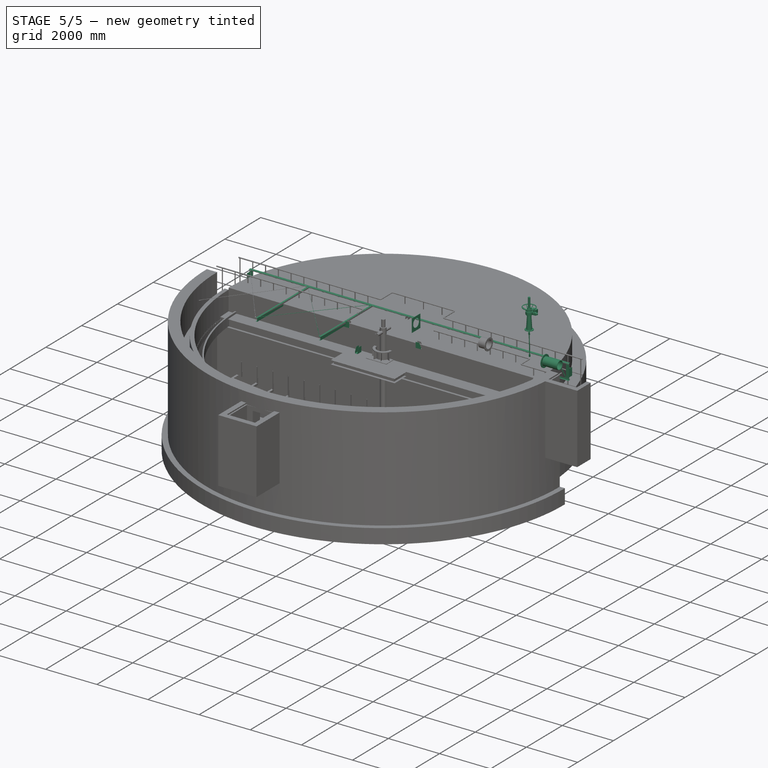
[diagram: stage 5 of 5 — iso view after this stage's code; geometry added in this stage tinted green]
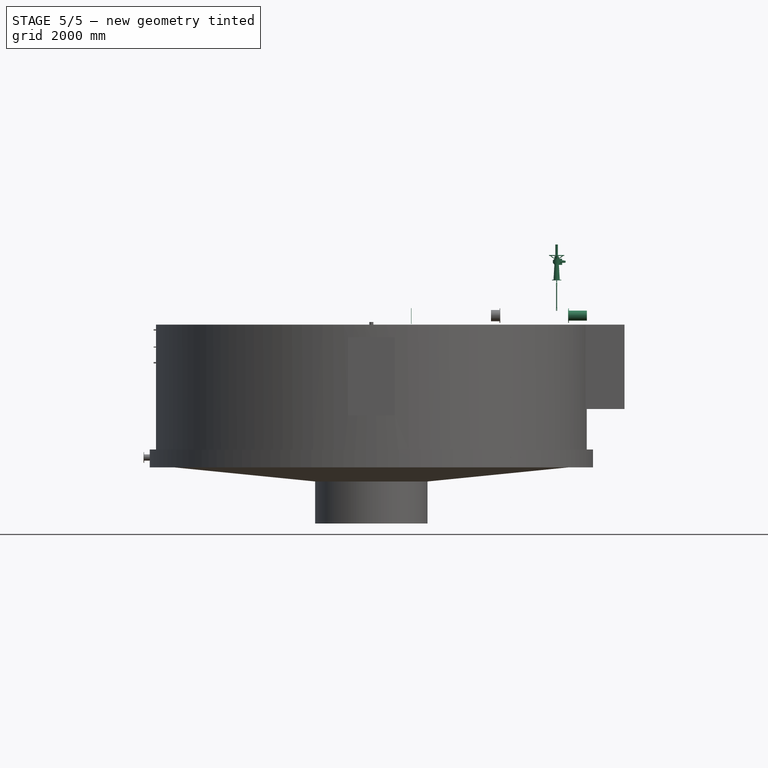
[diagram: stage 5 of 5 — front view after this stage's code; geometry added in this stage tinted green]
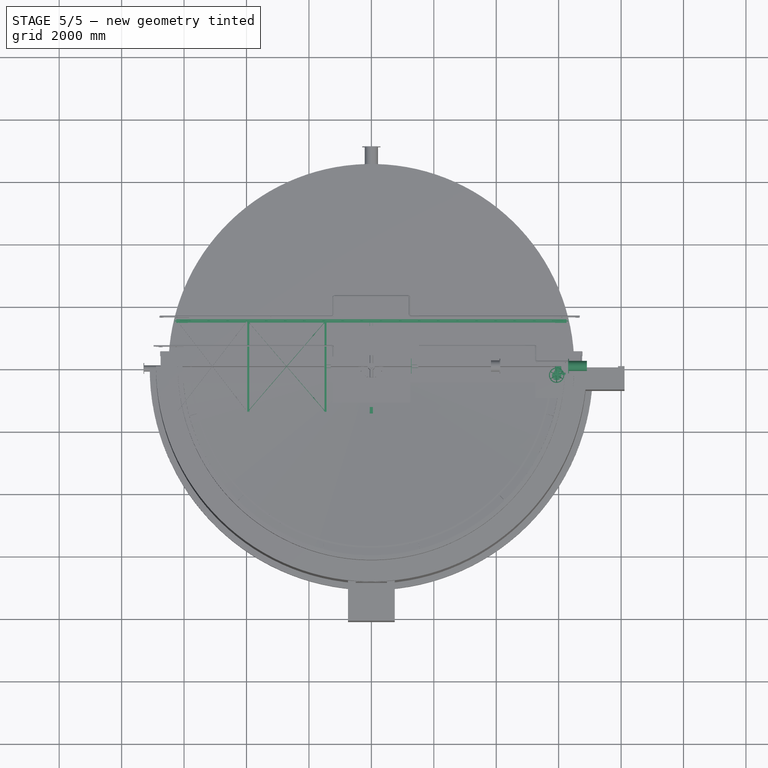
[diagram: stage 5 of 5 — top view after this stage's code; geometry added in this stage tinted green]
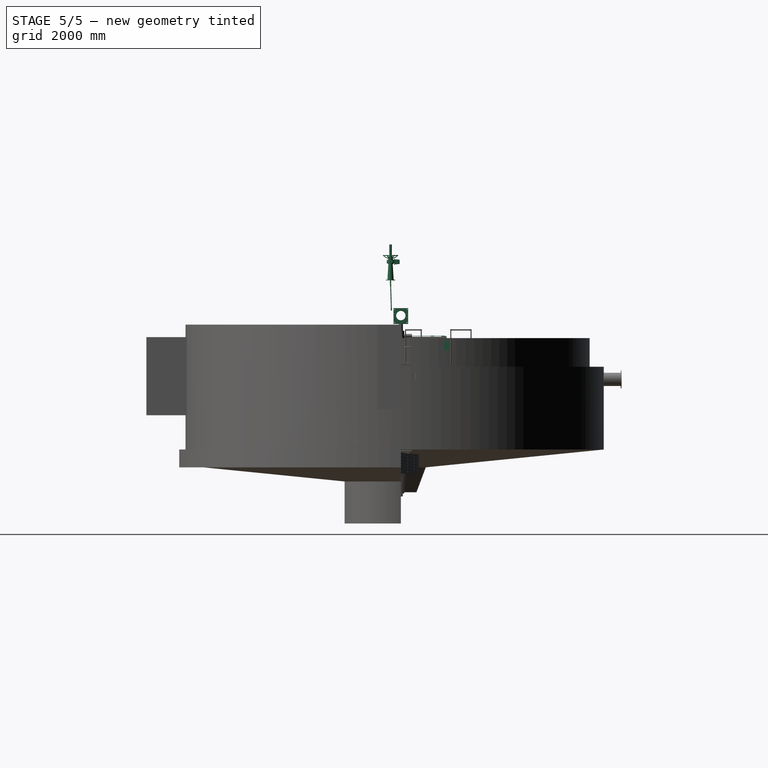
[diagram: stage 5 of 5 — right view after this stage's code; geometry added in this stage tinted green]
FEATURE [Sketcher::SketchObject] Sketch001
  FullyConstrained = false
  Placement = pos=(0,0,0) rot=(1,0,0;1.5708rad)
  sketch-geometry (4):
    g0: LineSegment StartX=0 StartY=-3800.05 StartZ=0 EndX=499.809 EndY=-3800.05 EndZ=0
    g1: LineSegment StartX=499.809 StartY=-3800.05 StartZ=0 EndX=518.369 EndY=-3750.05 EndZ=0
    g2: LineSegment StartX=518.369 StartY=-3750.05 StartZ=0 EndX=0 EndY=-3750.05 EndZ=0
    g3: LineSegment StartX=0 StartY=-3750.05 StartZ=0 EndX=0 EndY=-3800.05 EndZ=0
  constraints (9):
    c: Horizontal(g0)
    c: Coincident(g0,g1)
    c: Coincident(g1,g2)
    c: PointOnObject(g2,g-2)
    c: Horizontal(g2)
    c: Coincident(g2,g3)
    c: Coincident(g3,g0)
    c: Vertical(g3)
    c: DistanceY(g3,g3) = 50
FEATURE [Sketcher::SketchObject] Sketch002
  FullyConstrained = true
  Placement = pos=(0,0,0) rot=(1,0,0;1.5708rad)
  expr: Constraints[11] = Spreadsheet.dia / 2
  expr: Constraints[9] = Spreadsheet.h0
  sketch-geometry (4):
    g0: LineSegment StartX=1295 StartY=0 StartZ=0 EndX=1300 EndY=0 EndZ=0
    g1: LineSegment StartX=1300 StartY=0 StartZ=0 EndX=1300 EndY=2100 EndZ=0
    g2: LineSegment StartX=1300 StartY=2100 StartZ=0 EndX=1295 EndY=2100 EndZ=0
    g3: LineSegment StartX=1295 StartY=2100 StartZ=0 EndX=1295 EndY=0 EndZ=0
  constraints (12):
    c: Coincident(g0,g1)
    c: Coincident(g1,g2)
    c: Coincident(g2,g3)
    c: Coincident(g3,g0)
    c: Horizontal(g0)
    c: Horizontal(g2)
    c: Vertical(g1)
    c: Vertical(g3)
    c: DistanceX(g2,g2) = 5
    c: DistanceY(g1,g1) = 2100
    c: PointOnObject(g0,g-1)
    c: DistanceX(g-1,g0) = 1300
FEATURE [Part::Revolution] Revolve001
  Angle = 360
  Axis = (0,0,1)
  Base = (0,0,0)
  FaceMakerClass = Part::FaceMakerBullseye
  Solid = true
  Source = -> Sketch002
  Symmetric = false
FEATURE [Part::FeaturePython] AngleSteel  # WARN: FeaturePython — macro-defined, semantics opaque (R4)
  A = 75
  B = 75
  L = 1000
  Placement = pos=(1300,0,0) rot=(0,0,1;0rad)
  Solid = false
  g0 = 7.85
  mass = 0
  size = 10
  standard = SS_Equal
  t = 6
  expr: .Placement.Base.x = Spreadsheet.dia / 2
FEATURE [Part::Revolution] Revolve002
  Angle = 360
  Axis = (0,0,1)
  Base = (0,0,0)
  FaceMakerClass = Part::FaceMakerBullseye
  Solid = false
  Source = -> AngleSteel
  Symmetric = false
FEATURE [Part::FeaturePython] AngleSteel001  # WARN: FeaturePython — macro-defined, semantics opaque (R4)
  A = 75
  B = 75
  L = 1000
  Placement = pos=(1300,0,2100) rot=(0,1,0;1.5708rad)
  Solid = false
  g0 = 7.85
  mass = 0
  size = 10
  standard = SS_Equal
  t = 6
  expr: .Placement.Base.x = Spreadsheet.dia / 2
  expr: .Placement.Base.z = Spreadsheet.h0
FEATURE [Part::Revolution] Revolve003
  Angle = 360
  Axis = (0,0,1)
  Base = (0,0,0)
  FaceMakerClass = Part::FaceMakerBullseye
  Solid = false
  Source = -> AngleSteel001
  Symmetric = false
FEATURE [Sketcher::SketchObject] Sketch003
  ExternalGeometry = -> [Revolve003]
  FullyConstrained = true
  Placement = pos=(0,0,0) rot=(1,0,0;1.5708rad)
  sketch-geometry (4):
    g0: LineSegment StartX=-275 StartY=1580 StartZ=0 EndX=275 EndY=1580 EndZ=0
    g1: LineSegment StartX=275 StartY=1580 StartZ=0 EndX=275 EndY=2100 EndZ=0
    g2: LineSegment StartX=275 StartY=2100 StartZ=0 EndX=-275 EndY=2100 EndZ=0
    g3: LineSegment StartX=-275 StartY=2100 StartZ=0 EndX=-275 EndY=1580 EndZ=0
  constraints (12):
    c: Coincident(g0,g1)
    c: Coincident(g1,g2)
    c: Coincident(g2,g3)
    c: Coincident(g3,g0)
    c: Horizontal(g0)
    c: Horizontal(g2)
    c: Vertical(g1)
    c: Vertical(g3)
    c: DistanceX(g0,g0) = 550
    c: DistanceY(g1,g1) = 520
    c: PointOnObject(g1,g-3)
    c: DistanceX(g-1,g0) = 275
FEATURE [Part::Extrusion] Extrude
  Base = -> Sketch003
  Dir = (0,-1,2e-16)
  DirMode = 2
  FaceMakerClass = Part::FaceMakerBullseye
  LengthFwd = 1700
  LengthRev = 0
  Solid = true
  Symmetric = false
FEATURE [Part::MultiFuse] Fusion
  Shapes = -> [Revolve001,Revolve002,Revolve003]
FEATURE [Part::Cut] Cut
  Base = -> Fusion
  Tool = -> Extrude
FEATURE [Sketcher::SketchObject] Sketch004
  ExternalGeometry = -> [Cut]
  FullyConstrained = false
  MapMode = 5
  Placement = pos=(0,3.476e-13,1580) rot=(0,0,1;0rad)
  Support = -> [Cut]
  sketch-geometry (4):
    g0: LineSegment StartX=-275 StartY=-1260.58 StartZ=0 EndX=-275 EndY=-1290.58 EndZ=0
    g1: LineSegment StartX=-275 StartY=-1260.58 StartZ=0 EndX=275 EndY=-1260.58 EndZ=0
    g2: LineSegment StartX=275 StartY=-1260.58 StartZ=0 EndX=275 EndY=-1290.58 EndZ=0
    g3: ArcOfCircle CenterX=3.89e-13 CenterY=-44.7314 CenterZ=0 NormalX=0 NormalY=0 NormalZ=1 AngleXU=0 Radius=1275.84 StartAngle=4.49514 EndAngle=4.92964
  constraints (12):
    c: Vertical(g0)
    c: Coincident(g0,g1)
    c: Horizontal(g1)
    c: Coincident(g1,g2)
    c: Vertical(g2)
    c: Coincident(g3,g0)
    c: Coincident(g3,g2)
    c: PointOnObject(g-3,g0)
    c: PointOnObject(g-4,g2)
    c: DistanceY(g-3,g0) = 10
    c: DistanceY(g0,g0) = 30
    c: Equal(g0,g2)
FEATURE [Part::Extrusion] Extrude001
  Base = -> Sketch004
  Dir = (0,2e-16,1)
  DirMode = 2
  FaceMakerClass = Part::FaceMakerBullseye
  LengthFwd = 5
  LengthRev = 0
  Solid = true
  Symmetric = false
FEATURE [Sketcher::SketchObject] Sketch005
  ExternalGeometry = -> [Extrude001]
  FullyConstrained = true
  MapMode = 5
  Placement = pos=(0,0,1585) rot=(0,0,1;0rad)
  Support = -> [Extrude001]
  sketch-geometry (4):
    g0: LineSegment StartX=-275 StartY=-1275.58 StartZ=0 EndX=275 EndY=-1275.58 EndZ=0
    g1: LineSegment StartX=275 StartY=-1275.58 StartZ=0 EndX=275 EndY=-1265.58 EndZ=0
    g2: LineSegment StartX=275 StartY=-1265.58 StartZ=0 EndX=-275 EndY=-1265.58 EndZ=0
    g3: LineSegment StartX=-275 StartY=-1265.58 StartZ=0 EndX=-275 EndY=-1275.58 EndZ=0
  constraints (12):
    c: Coincident(g0,g1)
    c: Coincident(g1,g2)
    c: Coincident(g2,g3)
    c: Coincident(g3,g0)
    c: Horizontal(g0)
    c: Horizontal(g2)
    c: Vertical(g1)
    c: Vertical(g3)
    c: DistanceY(g1,g-3) = 5
    c: DistanceY(g1,g1) = 10
    c: PointOnObject(g1,g-4)
    c: PointOnObject(g2,g-5)
FEATURE [Part::Extrusion] Extrude002
  Base = -> Sketch005
  Dir = (0,0,1)
  DirMode = 2
  FaceMakerClass = Part::FaceMakerBullseye
  LengthFwd = 515
  LengthRev = 0
  Solid = true
  Symmetric = false
FEATURE [Sketcher::SketchObject] Sketch006
  ExternalGeometry = -> [Extrude002]
  FullyConstrained = true
  MapMode = 5
  Placement = pos=(0,-1275.58,0) rot=(1,0,0;1.5708rad)
  Support = -> [Extrude002]
  sketch-geometry (4):
    g0: LineSegment StartX=-170 StartY=2100 StartZ=0 EndX=-170 EndY=1860 EndZ=0
    g1: ArcOfCircle CenterX=0 CenterY=1860 CenterZ=0 NormalX=0 NormalY=0 NormalZ=1 AngleXU=0 Radius=170 StartAngle=3.14159 EndAngle=6.28319
    g2: LineSegment StartX=170 StartY=1860 StartZ=0 EndX=170 EndY=2100 EndZ=0
    g3: LineSegment StartX=170 StartY=2100 StartZ=0 EndX=-170 EndY=2100 EndZ=0
  constraints (12):
    c: Vertical(g0)
    c: Tangent(g0,g1) = -1.5708
    c: Coincident(g1,g2)
    c: Vertical(g2)
    c: Coincident(g2,g3)
    c: Coincident(g3,g0)
    c: Horizontal(g3)
    c: Radius(g1) = 170
    c: DistanceX(g-2,g1) = 170
    c: PointOnObject(g2,g-3)
    c: Distance(g1,g3) = 240
    c: PointOnObject(g1,g-2)
FEATURE [Part::Extrusion] Extrude003
  Base = -> Sketch006
  Dir = (0,-1,2e-16)
  DirMode = 2
  FaceMakerClass = Part::FaceMakerBullseye
  LengthFwd = 10
  LengthRev = 0
  Reversed = true
  Solid = true
  Symmetric = false
FEATURE [Part::Cut] Cut001
  Base = -> Extrude002
  Tool = -> Extrude003
FEATURE [Sketcher::SketchObject] Sketch007
  ExternalGeometry = -> [Cut001,Cut]
  FullyConstrained = false
  MapMode = 5
  Placement = pos=(0,-1275.58,0) rot=(1,0,0;1.5708rad)
  Support = -> [Cut001]
  sketch-geometry (11):
    g0: Circle CenterX=-200 CenterY=1910 CenterZ=0 NormalX=0 NormalY=0 NormalZ=1 AngleXU=0 Radius=6
    g1: Circle CenterX=-200 CenterY=2050 CenterZ=0 NormalX=0 NormalY=0 NormalZ=1 AngleXU=0 Radius=6
    g2: Circle CenterX=200 CenterY=2050.06 CenterZ=0 NormalX=0 NormalY=0 NormalZ=1 AngleXU=0 Radius=6
    g3: Circle CenterX=200 CenterY=1910.17 CenterZ=0 NormalX=0 NormalY=0 NormalZ=1 AngleXU=0 Radius=6
    g4: LineSegment StartX=-200 StartY=2050 StartZ=0 EndX=200 EndY=2050.06 EndZ=0
    g5: Circle CenterX=-200 CenterY=1810 CenterZ=0 NormalX=0 NormalY=0 NormalZ=1 AngleXU=0 Radius=6
    g6: Circle CenterX=-200 CenterY=1640 CenterZ=0 NormalX=0 NormalY=0 NormalZ=1 AngleXU=0 Radius=6
    g7: Circle CenterX=200 CenterY=1809.81 CenterZ=0 NormalX=0 NormalY=0 NormalZ=1 AngleXU=0 Radius=6
    g8: Circle CenterX=200 CenterY=1639.81 CenterZ=0 NormalX=0 NormalY=0 NormalZ=1 AngleXU=0 Radius=6
    g9: LineSegment StartX=-200 StartY=1810 StartZ=0 EndX=200 EndY=1809.81 EndZ=0
    g10: Circle CenterX=0 CenterY=1640 CenterZ=0 NormalX=0 NormalY=0 NormalZ=1 AngleXU=0 Radius=6
  constraints (30):
    c: Radius(g0) = 6
    c: DistanceY(g-3,g0) = 50
    c: DistanceX(g0,g-3) = 200
    c: Radius(g1) = 6
    c: Vertical(g0,g1)
    c: Distance(g1,g-4) = 50
    c: Equal(g0,g3) = 6
    c: Equal(g1,g2) = 6
    c: Vertical(g3,g2)
    c: Coincident(g1,g4)
    c: Coincident(g2,g4)
    c: Distance(g4) = 400
    c: Angle(g4) = 0.000157168
    c: Radius(g5) = 6
    c: Equal(g5,g6) = 6
    c: DistanceY(g6,g5) = 170
    c: Vertical(g6,g5)
    c: Equal(g5,g7) = 6
    c: Equal(g7,g8) = 6
    c: DistanceY(g8,g7) = 170
    c: Vertical(g8,g7)
    c: Coincident(g5,g9)
    c: Coincident(g7,g9)
    c: Distance(g9) = 400
    c: Angle(g9) = -0.000466913
    c: DistanceX(g5,g-3) = 200
    c: PointOnObject(g10,g-2)
    c: Radius(g10) = 6
    c: Horizontal(g10,g6)
    c: DistanceY(g5,g-3) = 50
FEATURE [Part::Extrusion] Extrude004
  Base = -> Sketch007
  Dir = (0,-1,2e-16)
  DirMode = 2
  FaceMakerClass = Part::FaceMakerBullseye
  LengthFwd = 10
  LengthRev = 0
  Reversed = true
  Solid = true
  Symmetric = false
FEATURE [Part::Cut] Cut002
  Base = -> Cut001
  Tool = -> Extrude004
FEATURE [Spreadsheet::Sheet] Spreadsheet  label="Spreadsheet_feedWell"
  cells = A2='tankDia   D0; B2(D0)=13000; A3='depth of water  hw; B3(hw)=3500; A4='feedWell dia  dia; B4(dia)==D0 * 0.2; A5='feedWell hight  h0; B5(h0)==hw * 0.6; A6='bracket hight h1; B6(h1)=1000
FEATURE [Sketcher::SketchObject] Sketch008
  FullyConstrained = false
  Placement = pos=(0,0,0) rot=(1,0,0;1.5708rad)
  sketch-geometry (23):
    g0: LineSegment StartX=-235 StartY=2.04e-14 StartZ=0 EndX=-166.5 EndY=2.04e-14 EndZ=0
    g1: LineSegment StartX=235 StartY=0 StartZ=0 EndX=235 EndY=240 EndZ=0
    g2: LineSegment StartX=235 StartY=240 StartZ=0 EndX=-235 EndY=240 EndZ=0
    g3: LineSegment StartX=-235 StartY=240 StartZ=0 EndX=-235 EndY=2.84e-14 EndZ=0
    g4: ArcOfCircle CenterX=0 CenterY=0 CenterZ=0 NormalX=0 NormalY=0 NormalZ=1 AngleXU=0 Radius=166.5 StartAngle=0 EndAngle=3.14159
    g5: ArcOfCircle CenterX=200 CenterY=200 CenterZ=0 NormalX=0 NormalY=0 NormalZ=1 AngleXU=0 Radius=7 StartAngle=-9e-16 EndAngle=3.14159
    g6: ArcOfCircle CenterX=200 CenterY=180 CenterZ=0 NormalX=0 NormalY=0 NormalZ=1 AngleXU=0 Radius=7 StartAngle=3.14159 EndAngle=6.28319
    g7: LineSegment StartX=193 StartY=200 StartZ=0 EndX=193 EndY=180 EndZ=0
    g8: LineSegment StartX=207 StartY=180 StartZ=0 EndX=207 EndY=200 EndZ=0
    g9: ArcOfCircle CenterX=200 CenterY=60 CenterZ=0 NormalX=0 NormalY=0 NormalZ=1 AngleXU=0 Radius=7 StartAngle=0 EndAngle=3.14159
    g10: ArcOfCircle CenterX=200 CenterY=40 CenterZ=0 NormalX=0 NormalY=0 NormalZ=1 AngleXU=0 Radius=7 StartAngle=3.14159 EndAngle=6.28319
    g11: LineSegment StartX=193 StartY=60 StartZ=0 EndX=193 EndY=40 EndZ=0
    g12: LineSegment StartX=207 StartY=40 StartZ=0 EndX=207 EndY=60 EndZ=0
    g13: ArcOfCircle CenterX=-200 CenterY=200.393 CenterZ=0 NormalX=0 NormalY=0 NormalZ=1 AngleXU=0 Radius=7 StartAngle=3e-16 EndAngle=3.14159
    g14: ArcOfCircle CenterX=-200 CenterY=180.393 CenterZ=0 NormalX=0 NormalY=0 NormalZ=1 AngleXU=0 Radius=7 StartAngle=3.14159 EndAngle=6.28319
    g15: LineSegment StartX=-207 StartY=200.393 StartZ=0 EndX=-207 EndY=180.393 EndZ=0
    g16: LineSegment StartX=-193 StartY=180.393 StartZ=0 EndX=-193 EndY=200.393 EndZ=0
    g17: ArcOfCircle CenterX=-200 CenterY=60.3929 CenterZ=0 NormalX=0 NormalY=0 NormalZ=1 AngleXU=0 Radius=7 StartAngle=0 EndAngle=3.14159
    g18: ArcOfCircle CenterX=-200 CenterY=40.3929 CenterZ=0 NormalX=0 NormalY=0 NormalZ=1 AngleXU=0 Radius=7 StartAngle=3.14159 EndAngle=6.28319
    g19: LineSegment StartX=-207 StartY=60.3929 StartZ=0 EndX=-207 EndY=40.3929 EndZ=0
    g20: LineSegment StartX=-193 StartY=40.3929 StartZ=0 EndX=-193 EndY=60.3929 EndZ=0
    g21: LineSegment StartX=207.004 StartY=200.734 StartZ=0 EndX=-193 EndY=200.393 EndZ=0
    g22: LineSegment StartX=166.5 StartY=0 StartZ=0 EndX=235 EndY=0 EndZ=0
  constraints (58):
    c: Coincident(g22,g1)
    c: Coincident(g1,g2)
    c: Coincident(g2,g3)
    c: Coincident(g3,g0)
    c: Horizontal(g0)
    c: Vertical(g1)
    c: Vertical(g3)
    c: PointOnObject(g0,g-1)
    c: Coincident(g4,g-1)
    c: Radius(g4) = 166.5
    c: DistanceX(g2,g2) = 470
    c: Symmetric(g1,g2,g-2)
    c: DistanceY(g1,g1) = 240
    c: DistanceX(g5,g5) = 14
    c: DistanceY(g7,g7) = 20
    c: DistanceY(g5,g1) = 40
    c: DistanceX(g4,g5) = 200
    c: Tangent(g9,g11) = -1.5708
    c: Tangent(g11,g10) = -1.5708
    c: Tangent(g10,g12) = -1.5708
    c: Tangent(g12,g9) = -1.5708
    c: Equal(g9,g10)
    c: Vertical(g11)
    c: Equal(g5,g9) = 14
    c: Equal(g7,g11) = 20
    c: Vertical(g9,g6)
    c: DistanceY(g9,g5) = 140
    c: Equal(g5,g13) = 14
    c: Equal(g7,g15) = 20
    c: Tangent(g17,g19) = -1.5708
    c: Tangent(g19,g18) = -1.5708
    c: Tangent(g18,g20) = -1.5708
    c: Tangent(g20,g17) = -1.5708
    c: Equal(g17,g18)
    c: Vertical(g19)
    c: Equal(g13,g17) = 14
    c: Equal(g15,g19) = 20
    c: Vertical(g17,g14)
    c: DistanceY(g17,g13) = 140
    c: Angle(g21) = -3.14074
    c: Coincident(g0,g4)
    c: Coincident(g22,g4)
    c: Horizontal(g22)
    c: PointOnObject(g1,g-1)
    c: Vertical(g16)
    c: Vertical(g15)
    c: Coincident(g13,g21)
    c: Tangent(g5,g8) = -1.5708
    c: Tangent(g16,g13) = -1.5708
    c: Tangent(g15,g14) = -1.5708
    c: Tangent(g16,g14) = -1.5708
    c: Tangent(g15,g13) = -1.5708
    c: DistanceX(g13,g4) = 200
    c: Vertical(g8)
    c: Vertical(g7)
    c: Tangent(g5,g7) = -1.5708
    c: Tangent(g7,g6) = -1.5708
    c: Tangent(g8,g6) = -1.5708
FEATURE [Part::Extrusion] Extrude005
  Base = -> Sketch008
  Dir = (0,-1,2e-16)
  DirMode = 2
  FaceMakerClass = Part::FaceMakerBullseye
  LengthFwd = 10
  LengthRev = 0
  Solid = true
  Symmetric = false
FEATURE [Sketcher::SketchObject] Sketch009
  ExternalGeometry = -> [Extrude005]
  FullyConstrained = false
  Placement = pos=(0,0,0) rot=(1,0,0;1.5708rad)
  sketch-geometry (26):
    g0: LineSegment StartX=-235 StartY=0 StartZ=0 EndX=-166.5 EndY=-4.08e-14 EndZ=0
    g1: LineSegment StartX=235 StartY=0 StartZ=0 EndX=235 EndY=-267.623 EndZ=0
    g2: LineSegment StartX=235 StartY=-267.623 StartZ=0 EndX=-235 EndY=-267.623 EndZ=0
    g3: LineSegment StartX=-235 StartY=-267.623 StartZ=0 EndX=-235 EndY=0 EndZ=0
    g4: ArcOfCircle CenterX=0 CenterY=-4.08e-14 CenterZ=0 NormalX=0 NormalY=0 NormalZ=1 AngleXU=0 Radius=166.5 StartAngle=3.14159 EndAngle=6.28319
    g5: ArcOfCircle CenterX=200 CenterY=-40 CenterZ=0 NormalX=0 NormalY=0 NormalZ=1 AngleXU=0 Radius=7 StartAngle=3e-16 EndAngle=3.14159
    g6: ArcOfCircle CenterX=200 CenterY=-60 CenterZ=0 NormalX=0 NormalY=0 NormalZ=1 AngleXU=0 Radius=7 StartAngle=3.14159 EndAngle=6.28319
    g7: LineSegment StartX=193 StartY=-40 StartZ=0 EndX=193 EndY=-60 EndZ=0
    g8: LineSegment StartX=207 StartY=-60 StartZ=0 EndX=207 EndY=-40 EndZ=0
    g9: ArcOfCircle CenterX=200 CenterY=-210 CenterZ=0 NormalX=0 NormalY=0 NormalZ=1 AngleXU=0 Radius=7 StartAngle=0 EndAngle=3.14159
    g10: ArcOfCircle CenterX=200 CenterY=-230 CenterZ=0 NormalX=0 NormalY=0 NormalZ=1 AngleXU=0 Radius=7 StartAngle=3.14159 EndAngle=6.28319
    g11: LineSegment StartX=193 StartY=-210 StartZ=0 EndX=193 EndY=-230 EndZ=0
    g12: LineSegment StartX=207 StartY=-230 StartZ=0 EndX=207 EndY=-210 EndZ=0
    g13: ArcOfCircle CenterX=-200 CenterY=-40 CenterZ=0 NormalX=0 NormalY=0 NormalZ=1 AngleXU=0 Radius=7 StartAngle=0 EndAngle=3.14159
    g14: ArcOfCircle CenterX=-200 CenterY=-60 CenterZ=0 NormalX=0 NormalY=0 NormalZ=1 AngleXU=0 Radius=7 StartAngle=3.14159 EndAngle=6.28319
    g15: LineSegment StartX=-207 StartY=-40 StartZ=0 EndX=-207 EndY=-60 EndZ=0
    g16: LineSegment StartX=-193 StartY=-60 StartZ=0 EndX=-193 EndY=-40 EndZ=0
    g17: ArcOfCircle CenterX=-200 CenterY=-210 CenterZ=0 NormalX=0 NormalY=0 NormalZ=1 AngleXU=0 Radius=7 StartAngle=1.4e-15 EndAngle=3.14159
    g18: ArcOfCircle CenterX=-200 CenterY=-230 CenterZ=0 NormalX=0 NormalY=0 NormalZ=1 AngleXU=0 Radius=7 StartAngle=3.14159 EndAngle=6.28319
    g19: LineSegment StartX=-207 StartY=-210 StartZ=0 EndX=-207 EndY=-230 EndZ=0
    g20: LineSegment StartX=-193 StartY=-230 StartZ=0 EndX=-193 EndY=-210 EndZ=0
    g21: LineSegment StartX=166.5 StartY=-4.08e-14 StartZ=0 EndX=235 EndY=0 EndZ=0
    g22: ArcOfCircle CenterX=0 CenterY=-210 CenterZ=0 NormalX=0 NormalY=0 NormalZ=1 AngleXU=0 Radius=7 StartAngle=-9e-16 EndAngle=3.14159
    g23: ArcOfCircle CenterX=0 CenterY=-230 CenterZ=0 NormalX=0 NormalY=0 NormalZ=1 AngleXU=0 Radius=7 StartAngle=3.14159 EndAngle=6.28319
    g24: LineSegment StartX=-7 StartY=-210 StartZ=0 EndX=-7 EndY=-230 EndZ=0
    g25: LineSegment StartX=7 StartY=-230 StartZ=0 EndX=7 EndY=-210 EndZ=0
  constraints (65):
    c: Coincident(g21,g1)
    c: Coincident(g1,g2)
    c: Coincident(g2,g3)
    c: Coincident(g3,g0)
    c: Horizontal(g2)
    c: Vertical(g1)
    c: Vertical(g3)
    c: Coincident(g21,g-3)
    c: Coincident(g0,g-4)
    c: Coincident(g4,g-1)
    c: Horizontal(g4,g4)
    c: Horizontal(g4,g4)
    c: Tangent(g5,g7) = -1.5708
    c: Tangent(g7,g6) = -1.5708
    c: Tangent(g6,g8) = -1.5708
    c: Tangent(g8,g5) = -1.5708
    c: Equal(g5,g6)
    c: Vertical(g7)
    c: DistanceY(g8,g8) = 20
    c: DistanceX(g5,g5) = 14
    c: Vertical(g5,g-5)
    c: DistanceY(g5,g4) = 40
    c: Tangent(g9,g11) = -1.5708
    c: Tangent(g11,g10) = -1.5708
    c: Tangent(g10,g12) = -1.5708
    c: Tangent(g12,g9) = -1.5708
    c: Equal(g9,g10)
    c: Vertical(g11)
    c: Equal(g8,g12) = 20
    c: Equal(g5,g9) = 14
    c: Vertical(g6,g9)
    c: Tangent(g13,g15) = -1.5708
    c: Tangent(g15,g14) = -1.5708
    c: Tangent(g14,g16) = -1.5708
    c: Tangent(g16,g13) = -1.5708
    c: Equal(g13,g14)
    c: Vertical(g15)
    c: Equal(g8,g16) = 20
    c: Equal(g5,g13) = 14
    c: Tangent(g17,g19) = -1.5708
    c: Tangent(g19,g18) = -1.5708
    c: Tangent(g18,g20) = -1.5708
    c: Tangent(g20,g17) = -1.5708
    c: Equal(g17,g18)
    c: Vertical(g19)
    c: Equal(g16,g20) = 20
    c: Equal(g13,g17) = 14
    c: Vertical(g14,g17)
    c: Tangent(g22,g24) = -1.5708
    c: Tangent(g24,g23) = -1.5708
    c: Tangent(g23,g25) = -1.5708
    c: Tangent(g25,g22) = -1.5708
    c: Equal(g22,g23)
    c: Vertical(g24)
    c: DistanceX(g22,g22) = 14
    c: DistanceY(g24,g24) = 20
    c: PointOnObject(g22,g-2)
    c: Horizontal(g9,g22)
    c: DistanceY(g9,g5) = 170
    c: DistanceY(g17,g13) = 170
    c: DistanceX(g14,g6) = 400
    c: DistanceY(g13,g0) = 40
    c: Coincident(g0,g4)
    c: Coincident(g4,g21)
    c: Radius(g4) = 166.5
FEATURE [Part::Extrusion] Extrude006
  Base = -> Sketch009
  Dir = (0,-1,2e-16)
  DirMode = 2
  FaceMakerClass = Part::FaceMakerBullseye
  LengthFwd = 10
  LengthRev = 0
  Solid = true
  Symmetric = false
FEATURE [App::Part] Part002  label="pipeBrg"
  Group = -> [Sketch008,Sketch009,Extrude005,Extrude006]
  Origin = -> Origin004
  Placement = pos=(0,-1538.75,1787.43) rot=(0,0,1;0rad)
FEATURE [Part::Compound] Compound001  label="Brg"
  Links = -> [Part002]
  Placement = pos=(-263,5.69e-13,72.567) rot=(0,0,1;1.5708rad)
FEATURE [Part::Compound] Compound002  label="centerWell"
  Links = -> [Cut,Extrude001,Cut002]
FEATURE [Sketcher::SketchObject] Sketch010
  ExternalGeometry = -> [Compound002]
  FullyConstrained = false
  sketch-geometry (4):
    g0: LineSegment StartX=1299.04 StartY=50 StartZ=0 EndX=1507.04 EndY=50 EndZ=0
    g1: LineSegment StartX=1507.04 StartY=50 StartZ=0 EndX=1507.04 EndY=-50 EndZ=0
    g2: LineSegment StartX=1507.04 StartY=-50 StartZ=0 EndX=1299.04 EndY=-50 EndZ=0
    g3: ArcOfCircle CenterX=-0.00282801 CenterY=-7.671e-13 CenterZ=0 NormalX=0 NormalY=0 NormalZ=1 AngleXU=0 Radius=1300 StartAngle=6.24471 EndAngle=6.32166
  constraints (12):
    c: Horizontal(g0)
    c: Coincident(g0,g1)
    c: Vertical(g1)
    c: Coincident(g1,g2)
    c: Horizontal(g2)
    c: DistanceY(g-1,g0) = 50
    c: DistanceY(g1,g1) = 100
    c: Coincident(g3,g2)
    c: Coincident(g3,g0)
    c: PointOnObject(g0,g-5)
    c: PointOnObject(g2,g-6)
    c: DistanceX(g0,g0) = 208
FEATURE [Part::Extrusion] Extrude007
  Base = -> Sketch010
  Dir = (0,0,1)
  DirMode = 2
  FaceMakerClass = Part::FaceMakerBullseye
  LengthFwd = 10
  LengthRev = 0
  Solid = true
  Symmetric = false
FEATURE [Sketcher::SketchObject] Sketch011
  ExternalGeometry = -> [Extrude007,Compound002]
  FullyConstrained = true
  MapMode = 5
  Placement = pos=(0,0,10) rot=(0,0,1;0rad)
  Support = -> [Extrude007]
  sketch-geometry (8):
    g0: LineSegment StartX=1299.04 StartY=50 StartZ=0 EndX=1507.04 EndY=50 EndZ=0
    g1: LineSegment StartX=1507.04 StartY=50 StartZ=0 EndX=1507.04 EndY=45 EndZ=0
    g2: LineSegment StartX=1507.04 StartY=45 StartZ=0 EndX=1299.04 EndY=45 EndZ=0
    g3: LineSegment StartX=1299.04 StartY=45 StartZ=0 EndX=1299.04 EndY=50 EndZ=0
    g4: LineSegment StartX=1299.04 StartY=-50 StartZ=0 EndX=1507.04 EndY=-50 EndZ=0
    g5: LineSegment StartX=1507.04 StartY=-50 StartZ=0 EndX=1507.04 EndY=-45 EndZ=0
    g6: LineSegment StartX=1507.04 StartY=-45 StartZ=0 EndX=1299.04 EndY=-45 EndZ=0
    g7: LineSegment StartX=1299.04 StartY=-45 StartZ=0 EndX=1299.04 EndY=-50 EndZ=0
  constraints (22):
    c: Coincident(g0,g1)
    c: Coincident(g1,g2)
    c: Coincident(g2,g3)
    c: Coincident(g3,g0)
    c: Horizontal(g0)
    c: Horizontal(g2)
    c: Vertical(g1)
    c: Vertical(g3)
    c: Coincident(g4,g5)
    c: Coincident(g5,g6)
    c: Coincident(g6,g7)
    c: Coincident(g7,g4)
    c: Horizontal(g4)
    c: Horizontal(g6)
    c: Vertical(g5)
    c: Vertical(g7)
    c: Coincident(g0,g-3)
    c: DistanceY(g1,g1) = 5
    c: DistanceY(g5,g5) = 5
    c: Coincident(g4,g-3)
    c: Vertical(g2,g6)
    c: PointOnObject(g4,g-4)
FEATURE [Part::Extrusion] Extrude008
  Base = -> Sketch011
  Dir = (0,0,1)
  DirMode = 2
  FaceMakerClass = Part::FaceMakerBullseye
  LengthFwd = 200
  LengthRev = 0
  Solid = true
  Symmetric = false
FEATURE [Part::Chamfer] Chamfer
  Base = -> Extrude008
  Edges = 2 edges: [Edge7 r1=130 r2=70,Edge19 r1=130 r2=70]
FEATURE [Part::Compound] Compound003  label="gusset"
  Links = -> [Extrude007,Chamfer]
FEATURE [Sketcher::SketchObject] Sketch012
  ExternalGeometry = -> [Compound003]
  FullyConstrained = true
  MapMode = 5
  Placement = pos=(0,0,10) rot=(0,0,1;0rad)
  Support = -> [Compound003]
  sketch-geometry (1):
    g0: Circle CenterX=1532.04 CenterY=0 CenterZ=0 NormalX=0 NormalY=0 NormalZ=1 AngleXU=0 Radius=7
  constraints (3):
    c: Diameter(g0) = 14
    c: PointOnObject(g0,g-1)
    c: Distance(g0,g-3) = 25
FEATURE [Part::Extrusion] Extrude009
  Base = -> Sketch012
  Dir = (0,0,1)
  DirMode = 2
  FaceMakerClass = Part::FaceMakerBullseye
  LengthFwd = 10
  LengthRev = 0
  Reversed = true
  Solid = true
  Symmetric = false
FEATURE [Part::Cut] Cut003
  Base = -> Compound003
  Placement = pos=(0,0,1000) rot=(0,0,1;0rad)
  Tool = -> Extrude009
  expr: .Placement.Base.z = Spreadsheet.h1
FEATURE [Spreadsheet::Sheet] Spreadsheet001  label="Spreadsheet_support"
  cells = A1='tankDia   D; B1(D0)=13000; A2='梁成H0; B2(H0)=600; A3='梁長L0; B3(L0)==D0 - 500; A4='玄材shp; B4(shp)='50x50x6; A5='玄材ゲージラインGL0; B5(GL0)=30; A6='ラチス材Lshp; B6(Lshp)='6x38; A7='ラチス材幅Lb0; B7(Lb0)=38; A8='ラチス材厚Lt0; B8(Gt0)=6; A9='ガセットプレート幅Gb0; B9(Gb0)=120; A10='ラチスピッチrp0; B10(rp0)==(L0 - 2 * Gb0) / rn0; A11='ラチス配列数rn0; B11(rn0)=20; B16='t; C16='A; D16='GLine; A17='40x40x3; B17=3; C17=40; D17=22; A18='40x40x5; B18=5; C18=40; D18=22; A19='50x50x4; B19=4; C19=50; D19=30; A20='50x50x6; B20=6; C20=50; D20=30; A21='65x65x6; B21=6; C21=65; D21=35; A22='65x65x8; B22=8; C22=65; D22=35; A23='75x75x6; B23=6; C23=75; D23=40; A24='75x75x9; B24=9; C24=75; D24=40; A25='75x75x12; B25=12; C25=75; D25=40; A26='90x90x7; B26=7; C26=90; D26=50; A27='90x90x10; B27=10; C27=90; D27=50; A28='90x90x13; B28=13; C28=90; D28=50; A29='100x100x7; B29=7; C29=100; D29=55; A30='100x100x10; B30=10; C30=100; D30=55; A31='100x100x13; B31=13; C31=100; D31=55; A34='6x38; B34=6; C34=38; A35='9x38; B35=9; C35=38; A36='6x44; B36=6; C36=44; A37='9x44; B37=9; C37=44; A38='4.5x50; B38=4.5; C38=50; A39='6x50; B39=6; C39=50; A40='9x50; B40=9; C40=50; A41='6x65; B41=6; C41=65; A42='9x65; B42=9; C42=65; A43='6x75; B43=6; C43=75; A44='9x75; B44=9; C44=75; A45='6x90; B45=6; C45=90; A46='9x90; B46=9; C46=90
FEATURE [Part::FeaturePython] AngleSteel002  # WARN: FeaturePython — macro-defined, semantics opaque (R4)
  A = 50
  B = 50
  L = 1000
  Placement = pos=(0,28.8,14.4) rot=(0,0,1;1.5708rad)
  Solid = false
  g0 = 7.85
  mass = 0
  size = 7
  standard = SS_Equal
  t = 8
FEATURE [Part::Mirroring] Mirror  label="AngleSteel (mirrored)"
  Base = (-2.54e-14,114.396,14.3963)
  Normal = (0,0,-1)
  Placement = pos=(0,0,600) rot=(0,0,1;0rad)
  Source = -> AngleSteel002
  expr: .Placement.Base.z = Spreadsheet001.H0
FEATURE [Part::Extrusion] Extrude012
  Base = -> AngleSteel002
  Dir = (-1,2e-16,0)
  DirMode = 2
  FaceMakerClass = Part::FaceMakerBullseye
  LengthFwd = 12500
  LengthRev = 0
  Reversed = true
  Solid = false
  Symmetric = false
  expr: LengthFwd = Spreadsheet001.L0
FEATURE [Part::Extrusion] Extrude013
  Base = -> Mirror
  Dir = (-1,2e-16,0)
  DirMode = 2
  FaceMakerClass = Part::FaceMakerBullseye
  LengthFwd = 12500
  LengthRev = 0
  Reversed = true
  Solid = false
  Symmetric = false
  expr: LengthFwd = Spreadsheet001.L0
FEATURE [Sketcher::SketchObject] Sketch013
  ExternalGeometry = -> [Extrude013,Extrude012]
  FullyConstrained = false
  Placement = pos=(0,0,0) rot=(1,0,0;1.5708rad)
  expr: Constraints[2] = Spreadsheet001.Gb0
  expr: Constraints[5] = Spreadsheet001.rp0
  expr: Constraints[8] = Spreadsheet001.H0 - 60
  sketch-geometry (3):
    g0: LineSegment StartX=120 StartY=44.4 StartZ=0 EndX=426.5 EndY=584.4 EndZ=0
    g1: LineSegment StartX=426.5 StartY=584.4 StartZ=0 EndX=733 EndY=44.4 EndZ=0
    g2: LineSegment StartX=426.5 StartY=584.4 StartZ=0 EndX=426.5 EndY=511.834 EndZ=0
  constraints (9):
    c: Coincident(g0,g1)
    c: Horizontal(g0,g1)
    c: DistanceX(g-1,g0) = 120
    c: Coincident(g2,g0)
    c: Symmetric(g1,g0,g2)
    c: DistanceX(g0,g1) = 613
    c: DistanceY(g-1,g-4) = 14.4
    c: DistanceY(g-4,g0) = 30
    c: DistanceY(g0,g0) = 540
FEATURE [Sketcher::SketchObject] Sketch014
  ExternalGeometry = -> [Sketch013,Extrude012]
  FullyConstrained = true
  Placement = pos=(0,0,14.4) rot=(1,0,0;1.5708rad)
  expr: Constraints[23] = Spreadsheet001.Lb0
  expr: Constraints[24] = Spreadsheet001.H0 - 20
  expr: Constraints[25] = Spreadsheet001.Lb0 / 2
  sketch-geometry (9):
    g0: LineSegment StartX=120 StartY=68.491 StartZ=0 EndX=416.005 EndY=590 EndZ=0
    g1: LineSegment StartX=426.5 StartY=531.509 StartZ=0 EndX=130.495 EndY=10 EndZ=0
    g2: LineSegment StartX=426.5 StartY=531.509 StartZ=0 EndX=722.505 EndY=10 EndZ=0
    g3: LineSegment StartX=733 StartY=68.491 StartZ=0 EndX=436.995 EndY=590 EndZ=0
    g4: LineSegment StartX=416.005 StartY=590 StartZ=0 EndX=436.995 EndY=590 EndZ=0
    g5: LineSegment StartX=722.505 StartY=10 StartZ=0 EndX=733 EndY=10 EndZ=0
    g6: LineSegment StartX=733 StartY=10 StartZ=0 EndX=733 EndY=68.491 EndZ=0
    g7: LineSegment StartX=130.495 StartY=10 StartZ=0 EndX=120 EndY=10 EndZ=0
    g8: LineSegment StartX=120 StartY=10 StartZ=0 EndX=120 EndY=68.491 EndZ=0
  constraints (27):
    c: Coincident(g7,g8)
    c: Coincident(g0,g8)
    c: Coincident(g1,g7)
    c: Coincident(g0,g4)
    c: Coincident(g1,g2)
    c: Coincident(g3,g4)
    c: Coincident(g2,g5)
    c: Coincident(g5,g6)
    c: Coincident(g3,g6)
    c: Horizontal(g7)
    c: Horizontal(g4)
    c: Vertical(g8)
    c: Vertical(g7,g-4)
    c: Horizontal(g0,g3)
    c: Horizontal(g5)
    c: Horizontal(g1,g2)
    c: Vertical(g6)
    c: PointOnObject(g-3,g6)
    c: Parallel(g1,g-4)
    c: Parallel(g1,g0)
    c: Parallel(g2,g-3)
    c: Parallel(g-3,g3)
    c: Vertical(g1,g-4)
    c: Distance(g1,g0) = 38
    c: DistanceY(g2,g3) = 580
    c: Distance(g1,g-4) = 19
    c: DistanceY(g-5,g7) = 10
FEATURE [Part::Extrusion] Extrude010
  Base = -> Sketch014
  Dir = (0,-1,2e-16)
  DirMode = 2
  FaceMakerClass = Part::FaceMakerBullseye
  LengthFwd = 6
  LengthRev = 0
  Placement = pos=(0,28.8,0) rot=(0,0,1;0rad)
  Solid = true
  Symmetric = false
FEATURE [Part::FeaturePython] Array001  # Draft array (typed FeaturePython)
  AlwaysSyncPlacement = false
  Angle = 360
  ArrayType = 0
  Axis = (0,0,1)
  Base = -> Extrude010
  Center = (0,0,0)
  Count = 20
  ExpandArray = false
  Fuse = false
  IntervalAxis = (0,0,0)
  IntervalX = (613,0,0)
  IntervalY = (0,100,0)
  IntervalZ = (0,0,100)
  NumberCircles = 3
  NumberPolar = 5
  NumberX = 20
  NumberY = 1
  NumberZ = 1
  PlacementList = 20 placements: arithmetic series from (0,28.8,0) step (613,0,0) to (11647,28.8,0)
  RadialDistance = 50
  ScaleList = (20) [(1,1,1),(1,1,1),(1,1,1),(1,1,1),(1,1,1),(1,1,1),(1,1,1),(1,1,1),(1,1,1),(1,1,1),(1,1,1),(1,1,1),(1,1,1),(1,1,1),(1,1,1),(1,1,1),(1,1,1),(1,1,1),+2 more]
  Symmetry = 1
  TangentialDistance = 25
  expr: .IntervalX.x = Spreadsheet001.rp0
  expr: NumberX = Spreadsheet001.rn0
FEATURE [Sketcher::SketchObject] Sketch015
  ExternalGeometry = -> [Extrude010]
  FullyConstrained = true
  Placement = pos=(0,0,14.4) rot=(1,0,0;1.5708rad)
  expr: Constraints[22] = Spreadsheet001.L0
  sketch-geometry (8):
    g0: LineSegment StartX=0 StartY=10 StartZ=0 EndX=120 EndY=10 EndZ=0
    g1: LineSegment StartX=120 StartY=10 StartZ=0 EndX=120 EndY=590 EndZ=0
    g2: LineSegment StartX=120 StartY=590 StartZ=0 EndX=0 EndY=590 EndZ=0
    g3: LineSegment StartX=0 StartY=590 StartZ=0 EndX=0 EndY=10 EndZ=0
    g4: LineSegment StartX=12500 StartY=590 StartZ=0 EndX=12380 EndY=590 EndZ=0
    g5: LineSegment StartX=12380 StartY=590 StartZ=0 EndX=12380 EndY=10 EndZ=0
    g6: LineSegment StartX=12380 StartY=10 StartZ=0 EndX=12500 EndY=10 EndZ=0
    g7: LineSegment StartX=12500 StartY=10 StartZ=0 EndX=12500 EndY=590 EndZ=0
  constraints (23):
    c: Coincident(g0,g1)
    c: Coincident(g1,g2)
    c: Coincident(g2,g3)
    c: Coincident(g3,g0)
    c: Horizontal(g0)
    c: Horizontal(g2)
    c: Vertical(g1)
    c: Vertical(g3)
    c: Vertical(g-1,g0)
    c: Coincident(g0,g-3)
    c: Horizontal(g1,g-4)
    c: Coincident(g4,g5)
    c: Coincident(g5,g6)
    c: Coincident(g6,g7)
    c: Coincident(g7,g4)
    c: Horizontal(g4)
    c: Horizontal(g6)
    c: Vertical(g5)
    c: Vertical(g7)
    c: Equal(g0,g6)
    c: Horizontal(g6,g0)
    c: Horizontal(g1,g4)
    c: DistanceX(g0,g6) = 12500
FEATURE [Part::Extrusion] Extrude011
  Base = -> Sketch015
  Dir = (0,-1,2e-16)
  DirMode = 2
  FaceMakerClass = Part::FaceMakerBullseye
  LengthFwd = 6
  LengthRev = 0
  Placement = pos=(0,28.8,0) rot=(0,0,1;0rad)
  Solid = true
  Symmetric = false
  expr: LengthFwd = Spreadsheet001.Gt0
FEATURE [Part::MultiFuse] Fusion001
  Shapes = -> [Extrude013,Extrude012]
FEATURE [Part::Mirroring] Mirror001  label="Fusion (mirrored)"
  Base = (-3.2e-15,28.7963,514.396)
  Normal = (0,-1,0)
  Placement = pos=(0,-6,0) rot=(0,0,1;0rad)
  Source = -> Fusion001
  expr: .Placement.Base.y = -Spreadsheet001.Gt0
FEATURE [Sketcher::SketchObject] Sketch016
  FullyConstrained = true
  Placement = pos=(0,0,0) rot=(1,0,0;1.5708rad)
  sketch-geometry (4):
    g0: LineSegment StartX=0 StartY=0 StartZ=0 EndX=150 EndY=0 EndZ=0
    g1: LineSegment StartX=150 StartY=0 StartZ=0 EndX=150 EndY=300 EndZ=0
    g2: LineSegment StartX=150 StartY=300 StartZ=0 EndX=0 EndY=300 EndZ=0
    g3: LineSegment StartX=0 StartY=300 StartZ=0 EndX=0 EndY=0 EndZ=0
  constraints (11):
    c: Coincident(g0,g1)
    c: Coincident(g1,g2)
    c: Coincident(g2,g3)
    c: Coincident(g3,g0)
    c: Horizontal(g0)
    c: Horizontal(g2)
    c: Vertical(g1)
    c: Vertical(g3)
    c: Coincident(g0,g-1)
    c: DistanceX(g2,g2) = 150
    c: DistanceY(g1,g1) = 300
FEATURE [Part::Extrusion] Extrude014
  Base = -> Sketch016
  Dir = (0,-1,-3e-16)
  DirMode = 2
  FaceMakerClass = Part::FaceMakerBullseye
  LengthFwd = 6
  LengthRev = 0
  Solid = true
  Symmetric = true
FEATURE [Part::FeaturePython] AngleSteel003  # WARN: FeaturePython — macro-defined, semantics opaque (R4)
  A = 75
  B = 75
  L = 300
  Placement = pos=(117.5,40.5,0) rot=(0,0,1;3.14159rad)
  Solid = true
  g0 = 7.85
  mass = 2.05506
  size = 10
  standard = SS_Equal
  t = 6
FEATURE [Part::Mirroring] Mirror004  label="AngleSteel003 (mirrored)"
  Base = (200,0,0)
  Normal = (0,1,0)
  Source = -> AngleSteel003
FEATURE [Part::Compound] Compound004  label="gusset001"
  Links = -> [Extrude014,Mirror004,AngleSteel003]
  Placement = pos=(6150,-1460,750) rot=(0,0,1;0rad)
  expr: .Placement.Base.x = Spreadsheet.D0 / 2 - 350
  expr: .Placement.Base.y = -<<Spreadsheet_feedWell>>.dia / 2 - 160
FEATURE [Part::Compound] Compound005
  Links = -> [Mirror001,Fusion001]
FEATURE [App::Part] Part005  label="latticeBeam"
  Group = -> [Sketch013,Sketch015,Sketch014,Fusion001,Mirror,Mirror001,Extrude010,Extrude011,Extrude013,Extrude012,Array001,AngleSteel002,Compound005]
  Origin = -> Origin006
  Placement = pos=(-6250,-1480,585) rot=(0,0,1;0rad)
  expr: .Placement.Base.x = -Spreadsheet001.L0 / 2
  expr: .Placement.Base.y = -Spreadsheet.dia / 2 - 180
  expr: .Placement.Base.z = Spreadsheet.h1 - 415
FEATURE [Part::Mirroring] Mirror008  label="latticeBeam (mirrored)"
  Base = (-1000,0,0)
  Normal = (0,1,0)
  Source = -> Part005
FEATURE [Part::FeaturePython] Array002  # Draft array (typed FeaturePython)
  AlwaysSyncPlacement = false
  Angle = 360
  ArrayType = 1
  Axis = (0,0,1)
  Base = -> Cut003
  Center = (0,0,0)
  Count = 4
  ExpandArray = false
  Fuse = false
  IntervalAxis = (0,0,0)
  IntervalX = (50,0,0)
  IntervalY = (0,50,0)
  IntervalZ = (0,0,50)
  NumberCircles = 3
  NumberPolar = 4
  NumberX = 2
  NumberY = 2
  NumberZ = 1
  PlacementList = 4 placements: [(0,0,1000),(0,0,1000),(0,0,1000),(0,0,1000)]
  RadialDistance = 50
  ScaleList = (4) [(1,1,1),(1,1,1),(1,1,1),(1,1,1)]
  Symmetry = 1
  TangentialDistance = 25
FEATURE [App::Part] Part003  label="centerWell001"
  Group = -> [Chamfer,Sketch007,Sketch012,Sketch011,Sketch010,Compound002,Compound003,Revolve001,Revolve002,Revolve003,Extrude001,Extrude008,Extrude004,Extrude003,Extrude,Extrude002,Extrude007,Extrude009,Sketch003,Sketch005,Sketch002,Sketch004,Sketch006,AngleSteel,AngleSteel001,Cut003,Fusion,Cut001,Cut,Cut002,Array002]
  Origin = -> Origin001
  Placement = pos=(0,0,0) rot=(0,0,1;1.5708rad)
FEATURE [Part::Mirroring] Mirror009  label="gusset001 (mirrored)"
  Base = (0,0,0)
  Normal = (1,0,0)
  Source = -> Compound004
FEATURE [Part::Mirroring] Mirror010  label="gusset001 (mirrored) (mirrored)"
  Base = (0,0,0)
  Normal = (0,1,0)
  Source = -> Mirror009
FEATURE [Part::Mirroring] Mirror011  label="gusset001 (mirrored)001"
  Base = (0,0,0)
  Normal = (0,1,0)
  Source = -> Compound004
FEATURE [Part::FeaturePython] ChannelSteel  # WARN: FeaturePython — macro-defined, semantics opaque (R4)
  B = 65
  H = 125
  L = 2900
  Placement = pos=(1470,-1451.5,3.61e-13) rot=(-1,0,0;1.5708rad)
  Solid = true
  g0 = 7.85
  mass = 35.0305
  size = 2
  standard = SS
  t1 = 6
  t2 = 8
  expr: .Placement.Base.x = Spreadsheet.dia / 2 + 170
  expr: .Placement.Base.y = -Spreadsheet.dia / 2 - 101.5 - 50
  expr: L = Spreadsheet.dia + 300
FEATURE [Part::FeaturePython] Array003  # Draft array (typed FeaturePython)
  AlwaysSyncPlacement = false
  Angle = 360
  ArrayType = 0
  Axis = (0,0,1)
  Base = -> ChannelSteel
  Center = (0,0,0)
  Count = 2
  ExpandArray = false
  Fuse = false
  IntervalAxis = (0,0,0)
  IntervalX = (2475,0,0)
  IntervalY = (0,100,0)
  IntervalZ = (0,0,100)
  NumberCircles = 3
  NumberPolar = 5
  NumberX = 2
  NumberY = 1
  NumberZ = 1
  Placement = pos=(0,-0.000129987,1125.41) rot=(0,0,1;0rad)
  PlacementList = 2 placements: [(1470,-1451.5,3.61e-13),(3945,-1451.5,3.61e-13)]
  RadialDistance = 50
  ScaleList = (2) [(1,1,1),(1,1,1)]
  Symmetry = 1
  TangentialDistance = 25
  expr: .IntervalX.x = (<<Spreadsheet_support>>.L0 / 2 - <<Spreadsheet_feedWell>>.dia / 2) / 2
FEATURE [Part::Mirroring] Mirror012  label="Array002 (mirrored)"
  Base = (0,0,0)
  Normal = (1,0,0)
  Source = -> Array003
FEATURE [Sketcher::SketchObject] Sketch032
  FullyConstrained = true
  Placement = pos=(0,0,0) rot=(0.57735,0.57735,0.57735;2.0944rad)
  sketch-geometry (6):
    g0: LineSegment StartX=0 StartY=0 StartZ=0 EndX=247.487 EndY=247.487 EndZ=0
    g1: Circle CenterX=247.487 CenterY=247.487 CenterZ=0 NormalX=0 NormalY=0 NormalZ=1 AngleXU=0 Radius=7.5
    g2: ArcOfCircle CenterX=247.487 CenterY=247.487 CenterZ=0 NormalX=0 NormalY=0 NormalZ=1 AngleXU=0 Radius=20 StartAngle=5.62869 EndAngle=8.50848
    g3: LineSegment StartX=235.312 StartY=263.354 StartZ=0 EndX=74.8903 EndY=140.258 EndZ=0
    g4: LineSegment StartX=263.354 StartY=235.312 StartZ=0 EndX=140.258 EndY=74.8903 EndZ=0
    g5: ArcOfCircle CenterX=0 CenterY=0 CenterZ=0 NormalX=0 NormalY=0 NormalZ=1 AngleXU=0 Radius=159 StartAngle=0.490434 EndAngle=1.08036
  constraints (15):
    c: Coincident(g0,g-1)
    c: Angle(g-1,g0) = 0.785398
    c: Coincident(g1,g0)
    c: Radius(g1) = 7.5
    c: Coincident(g2,g1)
    c: Coincident(g5,g3)
    c: Coincident(g5,g4)
    c: Coincident(g5,g0)
    c: Tangent(g2,g3) = -1.5708
    c: Tangent(g2,g4) = 1.5708
    c: Equal(g4,g3)
    c: Radius(g5) = 159
    c: Angle(g3,g4) = 0.261799
    c: Distance(g5,g1) = 350
    c: Radius(g2) = 20
FEATURE [Part::Extrusion] Extrude026  label="Extrude028"
  Base = -> Sketch032
  Dir = (1,0,0)
  DirMode = 2
  FaceMakerClass = Part::FaceMakerBullseye
  LengthFwd = 6
  LengthRev = 0
  Placement = pos=(-1071.12,0,0) rot=(0,0,1;0rad)
  Solid = true
  Symmetric = true
FEATURE [App::Part] Part014  label="arm"
  Group = -> [Sketch032,Extrude026]
  Origin = -> Origin015
  Placement = pos=(5750,0,0) rot=(1,0,0;1.8326rad)
FEATURE [Sketcher::SketchObject] Sketch033
  ExternalGeometry = -> [Cut016]
  FullyConstrained = false
  MapMode = 5
  Placement = pos=(0,0,0) rot=(0,0.518773,0.854912;3.14159rad)
  Support = -> [Cut016]
  sketch-geometry (1):
    g0: Circle CenterX=0 CenterY=0 CenterZ=0 NormalX=0 NormalY=0 NormalZ=1 AngleXU=0 Radius=159.25
  constraints (1):
    c: Coincident(g0,g-1)
FEATURE [Part::Feature] Part__Feature001  label="電動トップハンドル_LTKD-01 v5"
  Placement = pos=(0,-389.711,-5.7e-14) rot=(1,0,0;1.5708rad)
  shape: bbox 555.2 x 557.2 x 1150 mm, 73 faces (baked)
FEATURE [App::Part] Part015  label="開閉台"
  Group = -> [Part__Feature001]
  Origin = -> Origin016
  Placement = pos=(0,-400,1500) rot=(0,0,1;3.14159rad)
FEATURE [Sketcher::SketchObject] Sketch034
  FullyConstrained = false
  Placement = pos=(0,0,0) rot=(0.57735,0.57735,0.57735;2.0944rad)
  sketch-geometry (5):
    g0: Circle CenterX=0 CenterY=0 CenterZ=0 NormalX=0 NormalY=0 NormalZ=1 AngleXU=0 Radius=7.5
    g1: ArcOfCircle CenterX=0 CenterY=0 CenterZ=0 NormalX=0 NormalY=0 NormalZ=1 AngleXU=0 Radius=20 StartAngle=3.14159 EndAngle=6.28319
    g2: LineSegment StartX=-20 StartY=9.32106e-06 StartZ=0 EndX=-20 EndY=80 EndZ=0
    g3: LineSegment StartX=-20 StartY=80 StartZ=0 EndX=20 EndY=80 EndZ=0
    g4: LineSegment StartX=20 StartY=80 StartZ=0 EndX=20 EndY=3.56439e-05 EndZ=0
  constraints (13):
    c: Coincident(g0,g-1)
    c: Coincident(g1,g0)
    c: Radius(g1) = 20
    c: Radius(g0) = 7.5
    c: Vertical(g2)
    c: Coincident(g2,g3)
    c: Horizontal(g3)
    c: Coincident(g3,g4)
    c: Vertical(g4)
    c: Coincident(g1,g4)
    c: Coincident(g1,g2)
    c: DistanceY(g-1,g3) = 80
    c: DistanceX(g3,g3) = 40
FEATURE [Part::Extrusion] Extrude028  label="Extrude030"
  Base = -> Sketch034
  Dir = (1,0,0)
  DirMode = 2
  FaceMakerClass = Part::FaceMakerBullseye
  LengthFwd = 40
  LengthRev = 0
  Solid = true
  Symmetric = true
FEATURE [Sketcher::SketchObject] Sketch035
  ExternalGeometry = -> [Extrude028]
  FullyConstrained = false
  MapMode = 5
  Placement = pos=(0,-20,0) rot=(1,0,0;1.5708rad)
  Support = -> [Extrude028]
  sketch-geometry (4):
    g0: LineSegment StartX=-5 StartY=-25.0355 StartZ=0 EndX=5 EndY=-25.0355 EndZ=0
    g1: LineSegment StartX=5 StartY=-25.0355 StartZ=0 EndX=5 EndY=60 EndZ=0
    g2: LineSegment StartX=5 StartY=60 StartZ=0 EndX=-5 EndY=60 EndZ=0
    g3: LineSegment StartX=-5 StartY=60 StartZ=0 EndX=-5 EndY=-25.0355 EndZ=0
  constraints (11):
    c: Coincident(g0,g1)
    c: Coincident(g1,g2)
    c: Coincident(g2,g3)
    c: Coincident(g3,g0)
    c: Horizontal(g0)
    c: Horizontal(g2)
    c: Vertical(g1)
    c: Vertical(g3)
    c: Distance(g1,g-3) = 20
    c: DistanceX(g0,g0) = 10
    c: DistanceX(g0,g-1) = 5
FEATURE [Part::Extrusion] Extrude029  label="Extrude031"
  Base = -> Sketch035
  Dir = (0,-1,2e-16)
  DirMode = 2
  FaceMakerClass = Part::FaceMakerBullseye
  LengthFwd = 50
  LengthRev = 0
  Reversed = true
  Solid = true
  Symmetric = false
FEATURE [Part::Cut] Cut017
  Base = -> Extrude028
  Tool = -> Extrude029
FEATURE [Sketcher::SketchObject] Sketch036
  FullyConstrained = true
  MapMode = 5
  Placement = pos=(0,0,80) rot=(0,0,1;0rad)
  Support = -> [Cut017]
  sketch-geometry (1):
    g0: Circle CenterX=0 CenterY=0 CenterZ=0 NormalX=0 NormalY=0 NormalZ=1 AngleXU=0 Radius=15
  constraints (2):
    c: Coincident(g0,g-1)
    c: Radius(g0) = 15
FEATURE [Part::Extrusion] Extrude030  label="Extrude032"
  Base = -> Sketch036
  Dir = (0,0,1)
  DirMode = 2
  FaceMakerClass = Part::FaceMakerBullseye
  LengthFwd = 700
  LengthRev = 0
  Solid = true
  Symmetric = false
FEATURE [Part::FeaturePython] Clone003  label="Cut018"  # Draft clone (typed FeaturePython)
  AttacherType = Attacher::AttachEngine3D
  Fuse = false
  Objects = -> [Cut017]
  Placement = pos=(-1.83e-13,0,850) rot=(0,1,0;3.14159rad)
  Scale = (1,1,1)
FEATURE [App::Part] Part016  label="rod"
  Group = -> [Cut017,Clone003,Sketch035,Sketch034,Sketch036,Extrude028,Extrude029,Extrude030]
  Origin = -> Origin017
FEATURE [Sketcher::SketchObject] Sketch037
  FullyConstrained = false
  Placement = pos=(0,0,0) rot=(0.57735,0.57735,0.57735;2.0944rad)
  sketch-geometry (5):
    g0: Circle CenterX=0 CenterY=0 CenterZ=0 NormalX=0 NormalY=0 NormalZ=1 AngleXU=0 Radius=7.5
    g1: ArcOfCircle CenterX=0 CenterY=0 CenterZ=0 NormalX=0 NormalY=0 NormalZ=1 AngleXU=0 Radius=20 StartAngle=3.14864 EndAngle=6.2925
    g2: LineSegment StartX=-19.9995 StartY=-0.141043 StartZ=0 EndX=-19.9995 EndY=80 EndZ=0
    g3: LineSegment StartX=-19.9995 StartY=80 StartZ=0 EndX=19.9991 EndY=80 EndZ=0
    g4: LineSegment StartX=19.9991 StartY=80 StartZ=0 EndX=19.9991 EndY=0.186233 EndZ=0
  constraints (12):
    c: Coincident(g0,g-1)
    c: Coincident(g1,g0)
    c: Vertical(g2)
    c: Coincident(g2,g3)
    c: Horizontal(g3)
    c: Coincident(g3,g4)
    c: Vertical(g4)
    c: Coincident(g1,g4)
    c: Coincident(g1,g2)
    c: Radius(g0) = 7.5
    c: Radius(g1) = 20
    c: DistanceY(g-1,g3) = 80
FEATURE [Part::Extrusion] Extrude031  label="Extrude033"
  Base = -> Sketch037
  Dir = (1,0,0)
  DirMode = 2
  FaceMakerClass = Part::FaceMakerBullseye
  LengthFwd = 9
  LengthRev = 0
  Solid = true
  Symmetric = true
FEATURE [Part::Cylinder] Cylinder  label="円柱"
  Angle = 360
  AttacherType = Attacher::AttachEngine3D
  FirstAngle = 0
  Height = 1000
  Placement = pos=(0,0,30) rot=(0,0,1;0rad)
  Radius = 15
  SecondAngle = 0
FEATURE [App::Part] Part017  label="rod003"
  Group = -> [Sketch037,Cylinder,Extrude031]
  Origin = -> Origin018
FEATURE [Part::Compound] Compound013  label="rod004"
  Links = -> [Part017]
  Placement = pos=(5935.83,-330.291,2884.57) rot=(0.999848,0.015695,0.007617;2e-06rad)
FEATURE [Part::Compound] Compound014  label="開閉台001"
  Links = -> [Part015]
  Placement = pos=(5935.04,-319.999,1488.16) rot=(0.999877,0.015695,0;2e-06rad)
FEATURE [Part::Compound] Compound015  label="Compound014"
  Links = -> [Part016]
  Placement = pos=(5935.17,-303.109,2035) rot=(1,0,0;0.031984rad)
  expr: .Placement.Base.x = <<Spreadsheet_pipeSkimmer>>.D0 / 2 - 240
FEATURE [App::FeaturePython] circularEdge_003  label="circularEdge_003__Extrude025"  # a2plus constraint (typed FeaturePython)
  Object1 = Flange
  Object2 = Extrude023
  ParentTreeObject = -> Flange
  SubElement1 = Edge29
  SubElement2 = Edge2
  Suppressed = false
  Type = circularEdge
  directionConstraint = 0
  lockRotation = false
  offset = 0
FEATURE [App::FeaturePython] circularEdge_003_mirror  label="circularEdge_003__Flange"  # a2plus constraint (typed FeaturePython)
  Object1 = Flange
  Object2 = Extrude023
  ParentTreeObject = -> Extrude023
  SubElement1 = Edge29
  SubElement2 = Edge2
  Suppressed = false
  Type = circularEdge
  directionConstraint = 0
  lockRotation = false
  offset = 0
FEATURE [Sketcher::SketchObject] Sketch038
  FullyConstrained = true
  expr: Constraints[10] = Spreadsheet005.l0
  expr: Constraints[9] = Spreadsheet005.w0
  sketch-geometry (5):
    g0: LineSegment StartX=0 StartY=0 StartZ=0 EndX=2450 EndY=0 EndZ=0
    g1: LineSegment StartX=2450 StartY=0 StartZ=0 EndX=2450 EndY=2850 EndZ=0
    g2: LineSegment StartX=2450 StartY=2850 StartZ=0 EndX=0 EndY=2850 EndZ=0
    g3: LineSegment StartX=0 StartY=2850 StartZ=0 EndX=0 EndY=0 EndZ=0
    g4: LineSegment StartX=0 StartY=0 StartZ=0 EndX=2450 EndY=2850 EndZ=0
  constraints (14):
    c: Coincident(g0,g1)
    c: Coincident(g1,g2)
    c: Coincident(g2,g3)
    c: Coincident(g3,g0)
    c: Horizontal(g0)
    c: Horizontal(g2)
    c: Vertical(g1)
    c: Vertical(g3)
    c: Coincident(g0,g-1)
    c: Distance(g2) = 2450
    c: Distance(g1) = 2850
    c: Coincident(g4,g0)
    c: Coincident(g4,g1)
    c: Angle(g0,g4) = 0.860727
FEATURE [Spreadsheet::Sheet] Spreadsheet005
  cells = A2='rodDia dia; B2(dia)=12; C2='thickness; D2(t0)=6; E2='w0; F2(w0)=2450; G2='sita; H2(sita)==atan(l0 / w0); A3='length L0; B3(L0)==(w0 ^ 2 + l0 ^ 2) ^ 0.5; C3='l1; D3(l1)==L0 - (dia * 5 + 500); E3='l0; F3(l0)=2850; B4='l; C4='l1; D4='a; E4='b; F4='c; G4='e; H4='f; I4='g; J4='h; K4='i; L4='r; A5='forkEndR; B5=80; D5=25; E5=10; F5=14; G5=16; H5=13; I5=40; J5=5; K5=13; L5=15; A6='turnBackle; B6=100; C6=20; D6=30; E6=16; F6=22; A7='forkEndL; B7=60; D7=25; E7=10; F7=13; G7=16; H7=13; I7=20; L7=15; A8=1; B8=2; C8=3; D8=4; E8=5; F8=6; G8=7; H8=8; I8=9; J8=10; K8=11; L8=12; A9='turnBackle; A10='d; B10='l; C10='l1; D10='a; E10='b; F10='c; G10='t0; A11=10; B11=75; C11=15; D11=24; E11=13; F11=17; G11=6; A12=12; B12=100; C12=20; D12=30; E12=16; F12=22; G12=6; A13=16; B13=125; C13=24; D13=36; E13=20; F13=27; G13=9; A14=20; B14=150; C14=28; D14=42; E14=23; F14=33; G14=9; A15=22; B15=175; C15=33; D15=48; E15=27; F15=37; G15=9; A16=24; B16=200; C16=38; D16=54; E16=30; F16=42; G16=12; A17=30; B17=250; C17=47; D17=66; E17=37; F17=52; G17=12; A18='forkEnd_L; A19='d; B19='l; C19='a; D19='b; E19='c; F19='e; G19='f; H19='g; I19='r; A20=10; B20=50; C20=20; D20=7; E20=10; F20=12; G20=10; H20=15; I20=12; A21=12; B21=60; C21=25; D21=10; E21=13; F21=16; G21=13; H21=20; I21=15; A22=16; B22=75; C22=30; D22=13; E22=16; F22=20; G22=16; H22=25; I22=19; A23=20; B23=90; C23=40; D23=16; E23=20; F23=24; G23=20; H23=30; I23=23; A24=22; B24=100; C24=45; D24=20; E24=23; F24=28; G24=23; H24=35; I24=27; A25=24; B25=115; C25=50; D25=23; E25=26; F25=32; G25=26; H25=40; I25=30; A26=30; B26=140; C26=65; D26=30; E26=33; F26=40; G26=33; H26=50; I26=38; A27='forkEnd_R; A28='d; B28='l; C28='a; D28='b; E28='c; F28='r; +82 more cells
FEATURE [Sketcher::SketchObject] Sketch039
  FullyConstrained = true
  Placement = pos=(0,0,0) rot=(1,0,0;1.5708rad)
  expr: Constraints[11] = Spreadsheet005.I5 + Spreadsheet005.dia * 2
  expr: Constraints[1] = Spreadsheet005.F5 / 2
  expr: Constraints[3] = Spreadsheet005.L5
  sketch-geometry (5):
    g0: Circle CenterX=0 CenterY=0 CenterZ=0 NormalX=0 NormalY=0 NormalZ=1 AngleXU=0 Radius=7
    g1: ArcOfCircle CenterX=0 CenterY=0 CenterZ=0 NormalX=0 NormalY=0 NormalZ=1 AngleXU=0 Radius=15 StartAngle=4.71239 EndAngle=7.85398
    g2: LineSegment StartX=-4.87e-14 StartY=15 StartZ=0 EndX=-64 EndY=15 EndZ=0
    g3: LineSegment StartX=-64 StartY=15 StartZ=0 EndX=-64 EndY=-15 EndZ=0
    g4: LineSegment StartX=-64 StartY=-15 StartZ=0 EndX=0 EndY=-15 EndZ=0
  constraints (12):
    c: Coincident(g0,g-1)
    c: Radius(g0) = 7
    c: Coincident(g1,g0)
    c: Radius(g1) = 15
    c: Horizontal(g2)
    c: Coincident(g2,g3)
    c: Vertical(g3)
    c: Coincident(g3,g4)
    c: Horizontal(g4)
    c: Tangent(g1,g2) = -1.5708
    c: Tangent(g1,g4) = -1.5708
    c: Distance(g2) = 64
FEATURE [Part::Cylinder] Cylinder006  label="円柱003"
  Angle = 360
  AttacherType = Attacher::AttachEngine3D
  FirstAngle = 0
  Height = 500
  Placement = pos=(-24,0,0) rot=(0,-1,0;1.5708rad)
  Radius = 6
  SecondAngle = 0
  expr: .Placement.Base.x = -Spreadsheet005.dia * 2
  expr: Radius = Spreadsheet005.dia / 2
FEATURE [Part::Cut] Cut020  label="turnBackle003"
  Base = -> Cut019
  Placement = pos=(-530,0,0) rot=(0,0,1;0rad)
  Tool = -> Extrude034
  expr: .Placement.Base.x = -(Spreadsheet005.dia * 2.5 + 500)
FEATURE [Part::Compound] Compound016
  Links = -> [Cylinder006,Extrude035,Cut020,Cylinder007,Clone004]
  Placement = pos=(0,0,0) rot=(1,0,0;1.5708rad)
FEATURE [App::Part] Part019
  Group = -> [Extrude032,Extrude033,Clone004,Cylinder006,Revolve007,Sketch039,Sketch040,Sketch041,Cut019,Cut020,Cut018,Sketch042,Sketch043,Extrude034,Extrude035,Cylinder007,Compound016]
  Origin = -> Origin020
  Placement = pos=(0,0,0) rot=(0,0,1;4.00232rad)
  expr: .Placement.Rotation.Angle = 180 ° + Spreadsheet005.sita
FEATURE [Part::Mirroring] Mirror017  label="Part (mirrored)002"
  Base = (-100,0,0)
  Normal = (0,0,1)
  Placement = pos=(0,2850,30) rot=(0,0,-1;1.72145rad)
  Source = -> Part019
  expr: .Placement.Base.y = Spreadsheet005.l0
  expr: .Placement.Base.z = Spreadsheet005.t0 * 2 + Spreadsheet005.dia + 6
  expr: .Placement.Rotation.Angle = Spreadsheet005.sita * 2
FEATURE [Part::Compound] Compound018
  Links = -> [Mirror017,Part019]
  Placement = pos=(0,0,-200) rot=(0,0,1;0rad)
FEATURE [App::Part] Part018  label="TurnBackleC002"
  Group = -> [Spreadsheet005,Sketch038,Part019,Mirror017,Compound018]
  Origin = -> Origin019
  Placement = pos=(1489.79,-1431.85,1380.7) rot=(0,0,1;0rad)
FEATURE [Part::Mirroring] Mirror019  label="TurnBackleC002 (mirrored)"
  Base = (0,-2000,0)
  Normal = (-1,0,0)
  Source = -> Part018
FEATURE [Part::FeaturePython] Single_Flange_Length_Tube  # WARN: FeaturePython — macro-defined, semantics opaque (R4)
  Fittings = 01_Single Flange Length Tube
  L0 = 600
  Placement = pos=(6302.73,0,1859.98) rot=(0,0,1;0rad)
  dia = 5
  mass = 66.49
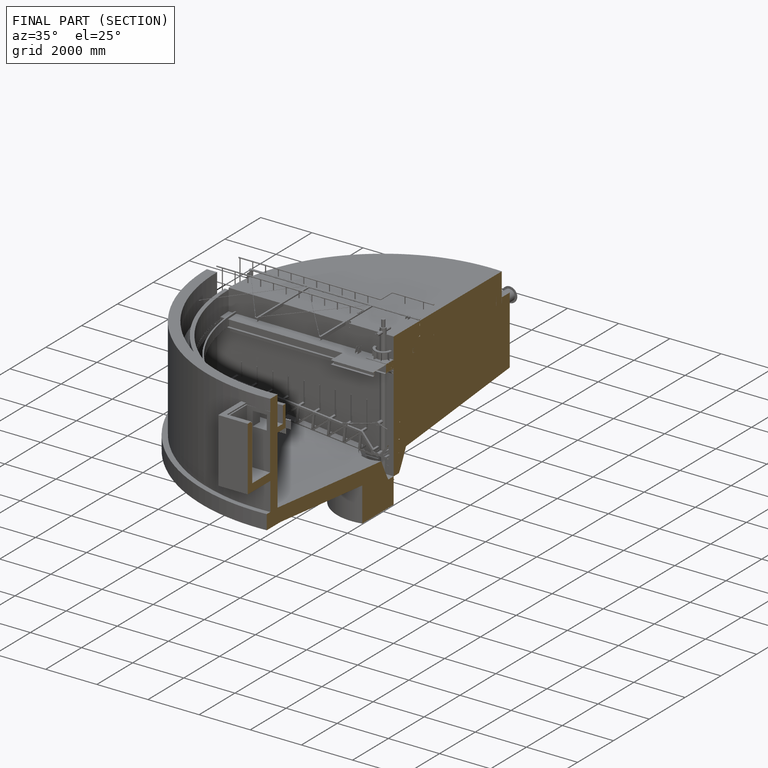
[diagram: finished part — half-section view (interior)]
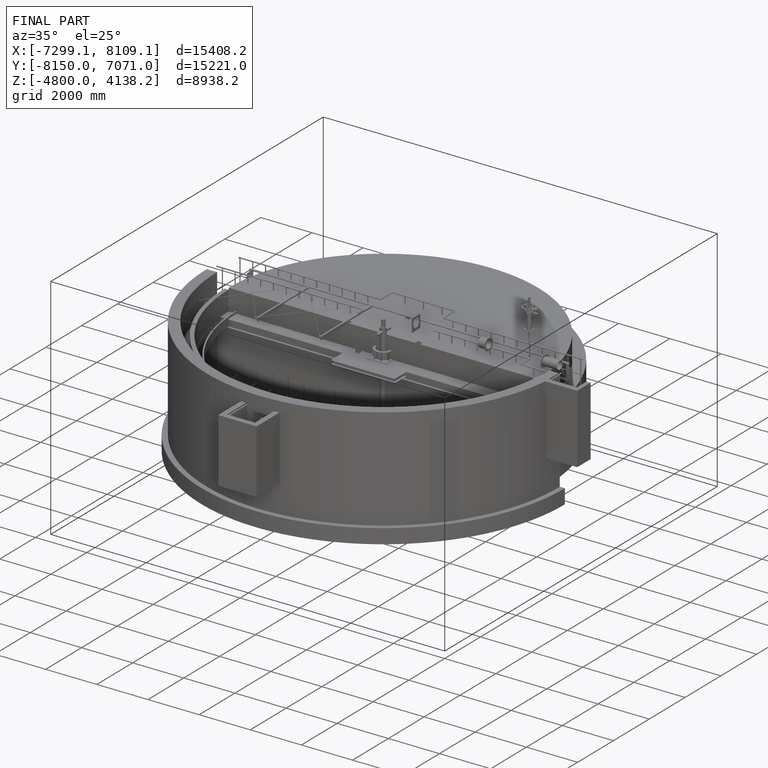
[diagram: finished part — iso view with bounding-box wireframe]
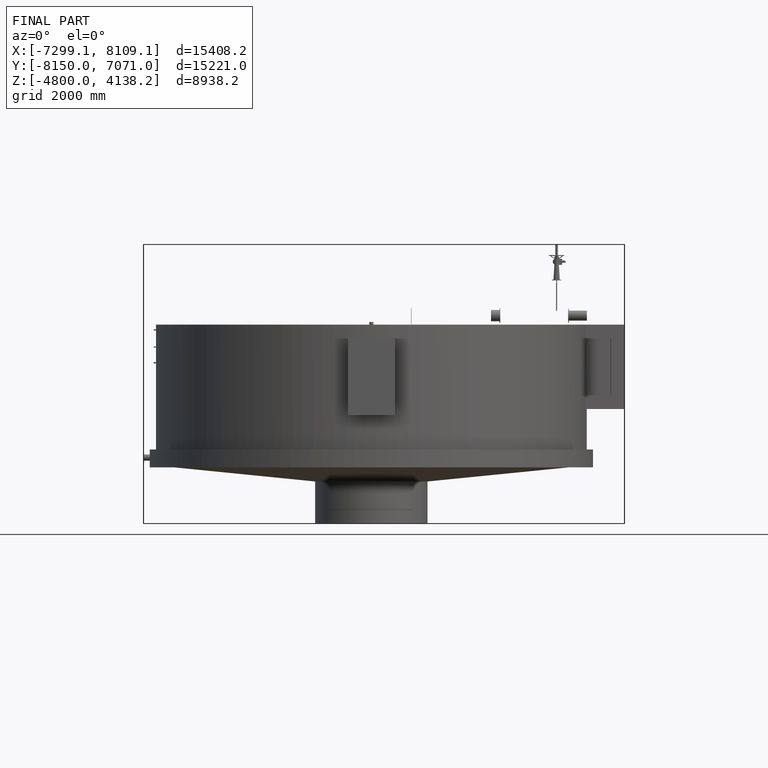
[diagram: finished part — front view with bounding-box wireframe]
